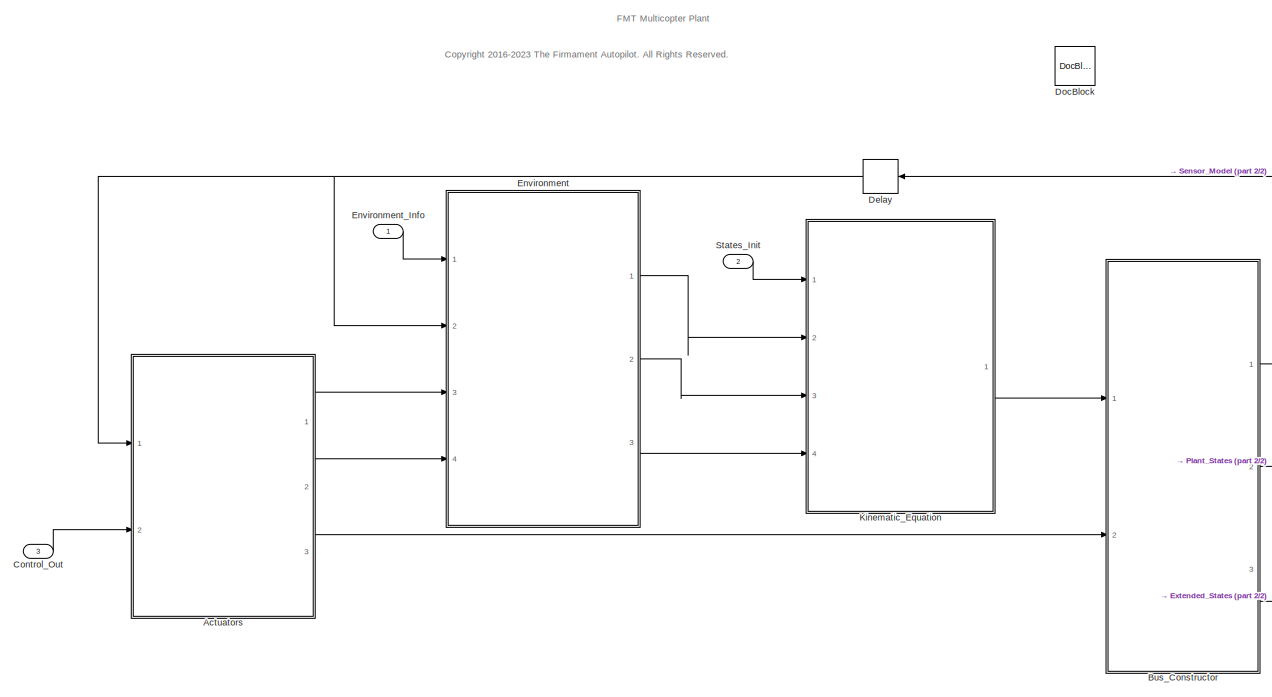
[diagram: root canvas - part 1/2, center side, full height]
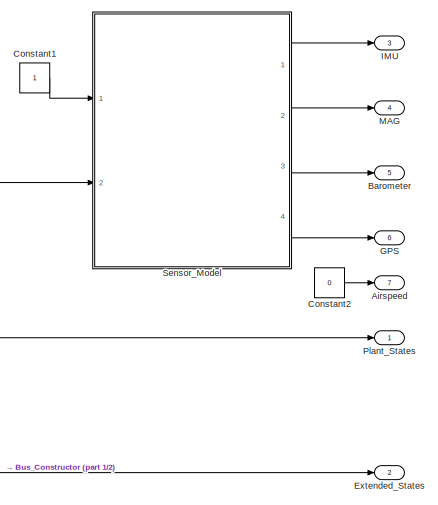
[diagram: root canvas - part 2/2, middle right region]
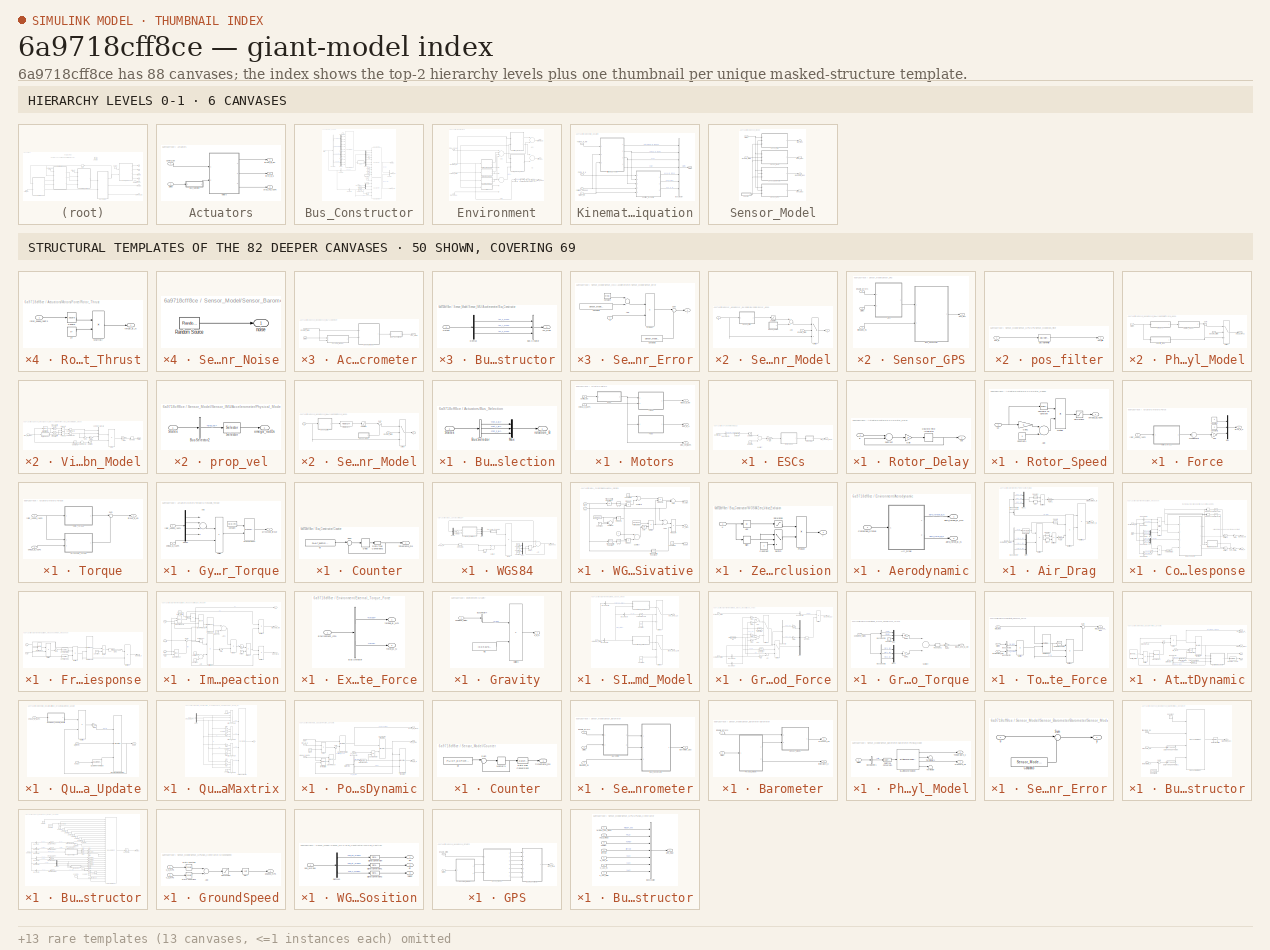
[diagram: thumbnail index - top-2 hierarchy levels (6 canvases) + 50 structural-template representatives of the remaining 82 canvases]
MODEL slx_6a9718cff8ce
KIND model
CONFIG AbsTol = auto
CONFIG EnableMultiTasking = off
CONFIG FixedStep = 0.002
CONFIG MaxStep = auto
CONFIG MinStep = auto
CONFIG RelTol = 1e-3
CONFIG SampleTimeConstraint = Unconstrained
CONFIG Solver = FixedStepDiscrete
CONFIG SolverName = FixedStepDiscrete
CONFIG StartTime = 0.0
CONFIG StopTime = 10.0
BLOCK [SubSystem] Actuators
  Ports = [2, 3]
  RequestExecContextInheritance = off
  TreatAsAtomicUnit = on
BLOCK [SubSystem] Actuators/Bus_Selection
  Ports = [1, 1]
  RequestExecContextInheritance = off
BLOCK [BusSelector] Actuators/Bus_Selection/Bus Selector
  OutputAsBus = off
  OutputSignals = Plant_States.rot_x_B,Plant_States.rot_y_B,Plant_States.rot_z_B
  Ports = [1, 3]
BLOCK [Mux] Actuators/Bus_Selection/Mux
  DisplayOption = bar
  Inputs = 3
  Ports = [3, 1]
BLOCK [Inport] Actuators/Bus_Selection/States
  IconDisplay = Port number
BLOCK [Outport] Actuators/Bus_Selection/rotation_B
  IconDisplay = Port number
BLOCK [Inport] Actuators/Control_Out
  IconDisplay = Port number
  Port = 2
BLOCK [SubSystem] Actuators/Motors
  Ports = [2, 3]
  RequestExecContextInheritance = off
BLOCK [Inport] Actuators/Motors/Control_Out
  IconDisplay = Port number
BLOCK [SubSystem] Actuators/Motors/ESCs
  Ports = [1, 1]
  RequestExecContextInheritance = off
BLOCK [BusSelector] Actuators/Motors/ESCs/Bus Selector
  OutputAsBus = off
  OutputSignals = actuator_cmd
  Ports = [1, 1]
BLOCK [Constant] Actuators/Motors/ESCs/Constant
  OutDataTypeStr = uint16
  Value = 1000
BLOCK [Inport] Actuators/Motors/ESCs/Control_Out
  IconDisplay = Port number
BLOCK [Gain] Actuators/Motors/ESCs/Gain
  Gain = 0.001
  OutDataTypeStr = single
  ParamDataTypeStr = Inherit: Inherit via internal rule
  SaturateOnIntegerOverflow = off
BLOCK [SubSystem] Actuators/Motors/ESCs/Rotor_Delay
  Ports = [1, 1]
  RequestExecContextInheritance = off
BLOCK [DiscreteIntegrator] Actuators/Motors/ESCs/Rotor_Delay/Discrete-Time Integrator
  ICPrevOutput = DiscIntNeverNeededParam
  ICPrevScaledInput = DiscIntNeverNeededParam
  InitialConditionSetting = Auto
  Ports = [1, 1]
  SampleTime = -1
  gainval = K
BLOCK [Gain] Actuators/Motors/ESCs/Rotor_Delay/Gain
  Gain = 1/T
  OutDataTypeStr = Inherit: Inherit via internal rule
  ParamDataTypeStr = Inherit: Inherit via internal rule
  SaturateOnIntegerOverflow = off
BLOCK [Sum] Actuators/Motors/ESCs/Rotor_Delay/Subtract
  InputSameDT = off
  Inputs = +-
  OutDataTypeStr = Inherit: Inherit via internal rule
  Ports = [2, 1]
  SaturateOnIntegerOverflow = off
BLOCK [Inport] Actuators/Motors/ESCs/Rotor_Delay/in
  IconDisplay = Port number
BLOCK [Outport] Actuators/Motors/ESCs/Rotor_Delay/out
  IconDisplay = Port number
BLOCK [SubSystem] Actuators/Motors/ESCs/Rotor_Speed
  Ports = [1, 1]
  RequestExecContextInheritance = off
BLOCK [Sum] Actuators/Motors/ESCs/Rotor_Speed/Add
  AccumDataTypeStr = Inherit: Same as first input
  InputSameDT = off
  OutDataTypeStr = Inherit: Inherit via internal rule
  Ports = [2, 1]
  SaturateOnIntegerOverflow = off
BLOCK [Reference] Actuators/Motors/ESCs/Rotor_Speed/Compare To Constant  REF=simulink/Logic and Bit
Operations/Compare
To Constant
  Ports = [1, 1]
  SourceBlock = simulink/Logic and Bit\nOperations/Compare\nTo Constant
  SourceProductBaseCode = SL
  SourceProductName = Simulink
  SourceType = Compare To Constant
BLOCK [Constant] Actuators/Motors/ESCs/Rotor_Speed/Constant1
  OutDataTypeStr = single
  Value = p
BLOCK [Gain] Actuators/Motors/ESCs/Rotor_Speed/Gain1
  Gain = k
  ParamDataTypeStr = Inherit: Inherit via internal rule
  SaturateOnIntegerOverflow = off
BLOCK [Product] Actuators/Motors/ESCs/Rotor_Speed/Multiply
  InputSameDT = off
  OutDataTypeStr = Inherit: Inherit via internal rule
  Ports = [2, 1]
  RndMeth = Floor
  SaturateOnIntegerOverflow = off
BLOCK [Saturate] Actuators/Motors/ESCs/Rotor_Speed/Saturation1
  InputPortMap = u0
  LowerLimit = 0
  Ports = [1, 1]
  UpperLimit = 9999999
BLOCK [Outport] Actuators/Motors/ESCs/Rotor_Speed/omega_B_radPs
  IconDisplay = Port number
BLOCK [Inport] Actuators/Motors/ESCs/Rotor_Speed/u0
  IconDisplay = Port number
BLOCK [Saturate] Actuators/Motors/ESCs/Saturation
  InputPortMap = u0
  LowerLimit = 1000
  Ports = [1, 1]
  UpperLimit = 2000
BLOCK [Selector] Actuators/Motors/ESCs/Selector
  IndexOptions = Index vector (dialog)
  Indices = [1:4]
  InputPortWidth = 16
  OutputSizes = 1
  Ports = [1, 1]
BLOCK [Sum] Actuators/Motors/ESCs/Subtract
  AccumDataTypeStr = Inherit: Same as first input
  InputSameDT = off
  Inputs = +-
  OutDataTypeStr = Inherit: Same as accumulator
  Ports = [2, 1]
  SaturateOnIntegerOverflow = off
BLOCK [Outport] Actuators/Motors/ESCs/rotor_speed_radPs
  IconDisplay = Port number
BLOCK [SubSystem] Actuators/Motors/Force
  Ports = [1, 1]
  RequestExecContextInheritance = off
BLOCK [Constant] Actuators/Motors/Force/Constant
  OutDataTypeStr = single
  Value = 0
BLOCK [Constant] Actuators/Motors/Force/Constant1
  OutDataTypeStr = single
  Value = 0
BLOCK [Gain] Actuators/Motors/Force/Gain
  Gain = -1
  ParamDataTypeStr = Inherit: Inherit via internal rule
  SaturateOnIntegerOverflow = off
BLOCK [Mux] Actuators/Motors/Force/Mux
  DisplayOption = bar
  Inputs = 3
  Ports = [3, 1]
BLOCK [SubSystem] Actuators/Motors/Force/Rotor_Thrust
  Ports = [1, 1]
  RequestExecContextInheritance = off
BLOCK [Product] Actuators/Motors/Force/Rotor_Thrust/Multiply
  InputSameDT = off
  Ports = [2, 1]
  RndMeth = Floor
  SaturateOnIntegerOverflow = off
BLOCK [Math] Actuators/Motors/Force/Rotor_Thrust/Square
  Operator = square
  Ports = [1, 1]
BLOCK [Constant] Actuators/Motors/Force/Rotor_Thrust/cT
  Value = cT
BLOCK [Inport] Actuators/Motors/Force/Rotor_Thrust/rotor_speed_radPs
  IconDisplay = Port number
BLOCK [Outport] Actuators/Motors/Force/Rotor_Thrust/thrust_B_N
  IconDisplay = Port number
BLOCK [Sum] Actuators/Motors/Force/Sum of Elements
  AccumDataTypeStr = Inherit: Same as first input
  InputSameDT = off
  Inputs = +
  OutDataTypeStr = Inherit: Inherit via internal rule
  Ports = [1, 1]
  SaturateOnIntegerOverflow = off
BLOCK [Outport] Actuators/Motors/Force/force_B_N
  IconDisplay = Port number
BLOCK [Inport] Actuators/Motors/Force/rotor_speed_radPs
  IconDisplay = Port number
BLOCK [SubSystem] Actuators/Motors/Torque
  Ports = [2, 1]
  RequestExecContextInheritance = off
BLOCK [SubSystem] Actuators/Motors/Torque/Gyroscopic_Torque
  Ports = [2, 1]
  RequestExecContextInheritance = off
BLOCK [Sum] Actuators/Motors/Torque/Gyroscopic_Torque/Add
  InputSameDT = off
  Inputs = --++
  OutDataTypeStr = Inherit: Inherit via internal rule
  Ports = [4, 1]
  SaturateOnIntegerOverflow = off
BLOCK [Constant] Actuators/Motors/Torque/Gyroscopic_Torque/Constant
  OutDataTypeStr = single
  Value = [0;0;Im]
BLOCK [Reference] Actuators/Motors/Torque/Gyroscopic_Torque/Cross Product  REF=FMT_Model_Lib/Math/Cross Product
  Ports = [2, 1]
  SourceBlock = FMT_Model_Lib/Math/Cross Product
  SourceProductName = FMT Toolbox
  SourceType = Cross Product
BLOCK [Demux] Actuators/Motors/Torque/Gyroscopic_Torque/Demux
  DisplayOption = bar
  Ports = [1, 4]
BLOCK [Product] Actuators/Motors/Torque/Gyroscopic_Torque/Multiply
  InputSameDT = off
  OutDataTypeStr = Inherit: Inherit via internal rule
  Ports = [2, 1]
  RndMeth = Floor
  SaturateOnIntegerOverflow = off
BLOCK [Outport] Actuators/Motors/Torque/Gyroscopic_Torque/gyroscopic_torque
  IconDisplay = Port number
BLOCK [Inport] Actuators/Motors/Torque/Gyroscopic_Torque/omega_B_radPs
  IconDisplay = Port number
  Port = 2
BLOCK [Inport] Actuators/Motors/Torque/Gyroscopic_Torque/rotor_speed_radPs
  IconDisplay = Port number
BLOCK [SubSystem] Actuators/Motors/Torque/Rotor_Torque
  Ports = [1, 1]
  RequestExecContextInheritance = off
BLOCK [Product] Actuators/Motors/Torque/Rotor_Torque/Multiply
  InputSameDT = off
  Multiplication = Matrix(*)
  OutDataTypeStr = Inherit: Inherit via internal rule
  Ports = [2, 1]
  RndMeth = Floor
  SaturateOnIntegerOverflow = off
BLOCK [Math] Actuators/Motors/Torque/Rotor_Torque/Square
  Operator = square
  Ports = [1, 1]
BLOCK [Constant] Actuators/Motors/Torque/Rotor_Torque/X_Frame_CM
  OutDataTypeStr = single
  Value = [-L*cT,L*cT,L*cT,-L*cT;L*cT,-L*cT,L*cT,-L*cT;cQ,cQ,-cQ,-cQ]
BLOCK [Inport] Actuators/Motors/Torque/Rotor_Torque/rotor_speed_radPs
  IconDisplay = Port number
BLOCK [Outport] Actuators/Motors/Torque/Rotor_Torque/rotor_torque
  IconDisplay = Port number
BLOCK [Sum] Actuators/Motors/Torque/Sum
  IconShape = round
  InputSameDT = off
  Inputs = |++
  OutDataTypeStr = Inherit: Inherit via internal rule
  Ports = [2, 1]
  SaturateOnIntegerOverflow = off
BLOCK [Inport] Actuators/Motors/Torque/omega_B_radPs
  IconDisplay = Port number
  Port = 2
BLOCK [Inport] Actuators/Motors/Torque/rotor_speed_radPs
  IconDisplay = Port number
BLOCK [Outport] Actuators/Motors/Torque/torque_B_Nm
  IconDisplay = Port number
BLOCK [Outport] Actuators/Motors/force_B_N
  IconDisplay = Port number
  Port = 2
BLOCK [Inport] Actuators/Motors/omega_B_radPs
  IconDisplay = Port number
  Port = 2
BLOCK [Outport] Actuators/Motors/prop_vel_radPs
  IconDisplay = Port number
  Port = 3
BLOCK [Outport] Actuators/Motors/torque_B_Nm
  IconDisplay = Port number
BLOCK [Inport] Actuators/States
  IconDisplay = Port number
BLOCK [Outport] Actuators/force_B_N
  IconDisplay = Port number
  Port = 2
BLOCK [Outport] Actuators/prop_vel_radPs
  IconDisplay = Port number
  Port = 3
BLOCK [Outport] Actuators/torque_B_Nm
  IconDisplay = Port number
BLOCK [Outport] Airspeed
  IconDisplay = Port number
  OutDataTypeStr = Bus: AirSpeed_Bus
  Port = 7
BLOCK [Outport] Barometer
  IconDisplay = Port number
  OutDataTypeStr = Bus: Barometer_Bus
  Port = 5
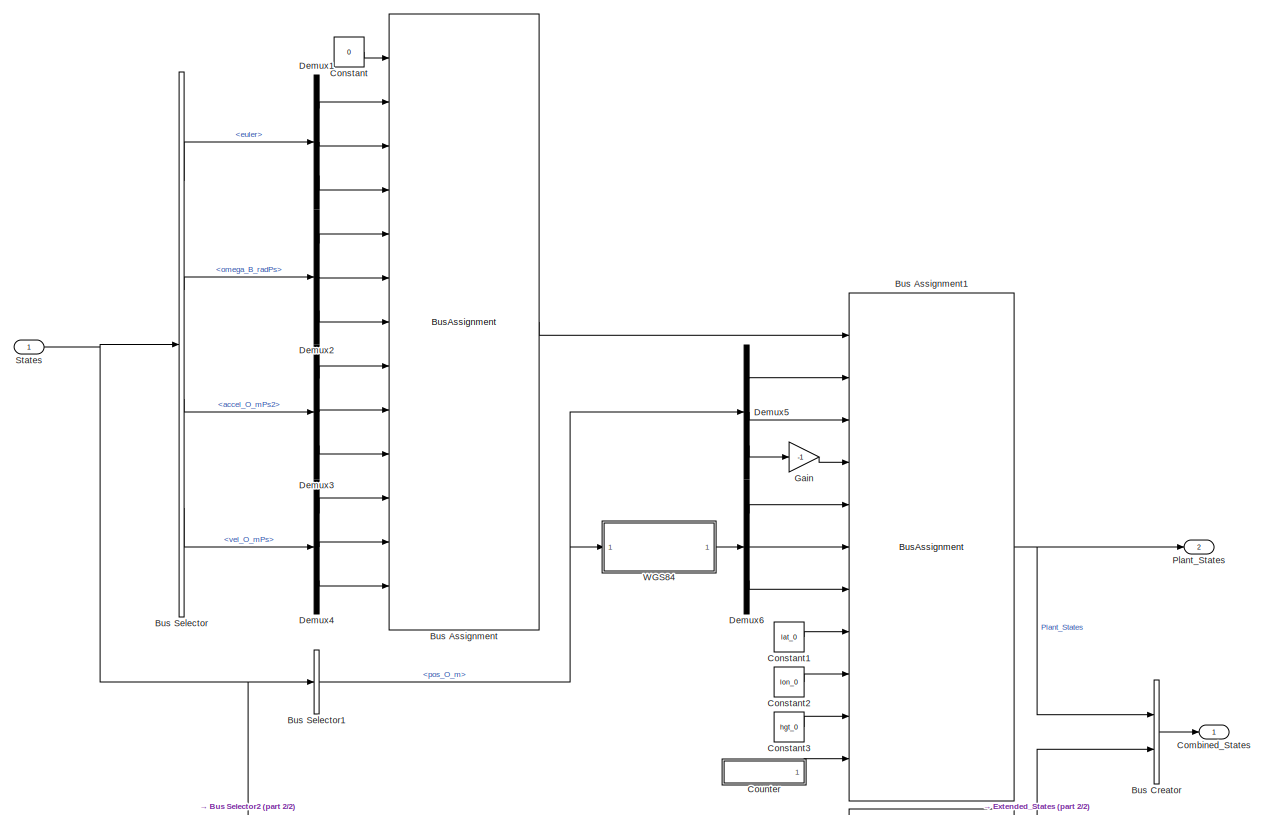
[diagram: Bus_Constructor - part 1/2, full width, middle band]
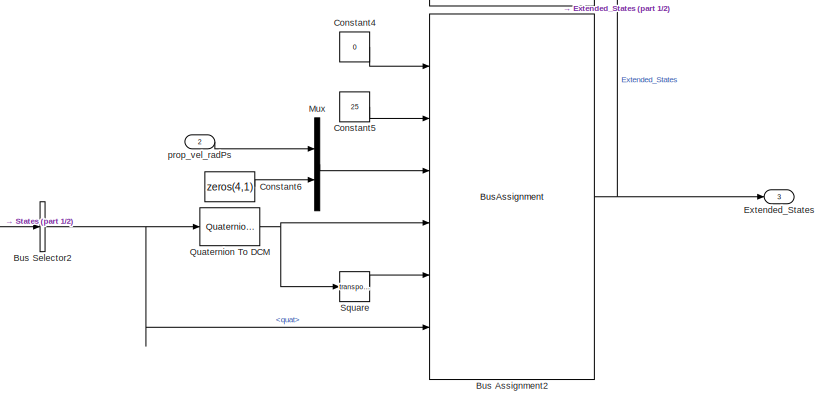
[diagram: Bus_Constructor - part 2/2, bottom center region]
BLOCK [SubSystem] Bus_Constructor
  Ports = [2, 3]
  RequestExecContextInheritance = off
  TreatAsAtomicUnit = on
BLOCK [BusAssignment] Bus_Constructor/Bus Assignment
  AssignedSignals = phi,theta,psi,rot_x_B,rot_y_B,rot_z_B,acc_x_O,acc_y_O,acc_z_O,vel_x_O,vel_y_O,vel_z_O
  Ports = [13, 1]
BLOCK [BusAssignment] Bus_Constructor/Bus Assignment1
  AssignedSignals = x_R,y_R,h_R,lat,lon,alt,lat_0,lon_0,alt_0,timestamp
  Ports = [11, 1]
BLOCK [BusAssignment] Bus_Constructor/Bus Assignment2
  AssignedSignals = temprature,prop_vel,M_BO,M_OB,quat
  Ports = [6, 1]
BLOCK [BusCreator] Bus_Constructor/Bus Creator
  DisplayOption = bar
  InheritFromInputs = on
  Inputs = 2
  Ports = [2, 1]
BLOCK [BusSelector] Bus_Constructor/Bus Selector
  OutputAsBus = off
  OutputSignals = euler,omega_B_radPs,accel_O_mPs2,vel_O_mPs
  Ports = [1, 4]
BLOCK [BusSelector] Bus_Constructor/Bus Selector1
  OutputAsBus = off
  OutputSignals = pos_O_m
  Ports = [1, 1]
BLOCK [BusSelector] Bus_Constructor/Bus Selector2
  OutputAsBus = off
  OutputSignals = quat
  Ports = [1, 1]
BLOCK [Outport] Bus_Constructor/Combined_States
  IconDisplay = Port number
BLOCK [Constant] Bus_Constructor/Constant
  OutDataTypeStr = Bus: Plant_States_Bus
  Value = 0
BLOCK [Constant] Bus_Constructor/Constant1
  Value = lat_0
BLOCK [Constant] Bus_Constructor/Constant2
  Value = lon_0
BLOCK [Constant] Bus_Constructor/Constant3
  Value = hgt_0
BLOCK [Constant] Bus_Constructor/Constant4
  OutDataTypeStr = Bus: Extended_States_Bus
  Value = 0
BLOCK [Constant] Bus_Constructor/Constant5
  OutDataTypeStr = Inherit: Inherit via back propagation
  Value = 25
BLOCK [Constant] Bus_Constructor/Constant6
  OutDataTypeStr = single
  Value = zeros(4,1)
BLOCK [SubSystem] Bus_Constructor/Counter
  Ports = [0, 1]
  RequestExecContextInheritance = off
BLOCK [DataTypeConversion] Bus_Constructor/Counter/Data Type Conversion2
  OutDataTypeStr = uint32
  RndMeth = Floor
  SaturateOnIntegerOverflow = off
BLOCK [Delay] Bus_Constructor/Counter/Delay
  DelayLength = 1
  InitialCondition = 0
  InputPortMap = u0
  Ports = [1, 1]
BLOCK [Sum] Bus_Constructor/Counter/Sum
  IconShape = round
  InputSameDT = off
  Inputs = |++
  OutDataTypeStr = Inherit: Inherit via internal rule
  Ports = [2, 1]
  SaturateOnIntegerOverflow = off
BLOCK [Constant] Bus_Constructor/Counter/dt
  OutDataTypeStr = uint32
  Value = PLANT_EXPORT.period
BLOCK [Outport] Bus_Constructor/Counter/timestamp_ms
  IconDisplay = Port number
BLOCK [Demux] Bus_Constructor/Demux1
  DisplayOption = bar
  Outputs = 3
  Ports = [1, 3]
BLOCK [Demux] Bus_Constructor/Demux2
  DisplayOption = bar
  Outputs = 3
  Ports = [1, 3]
BLOCK [Demux] Bus_Constructor/Demux3
  DisplayOption = bar
  Outputs = 3
  Ports = [1, 3]
BLOCK [Demux] Bus_Constructor/Demux4
  DisplayOption = bar
  Outputs = 3
  Ports = [1, 3]
BLOCK [Demux] Bus_Constructor/Demux5
  DisplayOption = bar
  Outputs = 3
  Ports = [1, 3]
BLOCK [Demux] Bus_Constructor/Demux6
  DisplayOption = bar
  Outputs = 3
  Ports = [1, 3]
BLOCK [Outport] Bus_Constructor/Extended_States
  IconDisplay = Port number
  Port = 3
BLOCK [Gain] Bus_Constructor/Gain
  Gain = -1
  ParamDataTypeStr = Inherit: Inherit via internal rule
  SaturateOnIntegerOverflow = off
BLOCK [Mux] Bus_Constructor/Mux
  DisplayOption = bar
  Inputs = 2
  Ports = [2, 1]
BLOCK [Outport] Bus_Constructor/Plant_States
  IconDisplay = Port number
  Port = 2
BLOCK [Reference] Bus_Constructor/Quaternion To DCM  REF=FMT_Model_Lib/Quaternion/Quaternion To DCM
  Ports = [1, 1]
  SourceBlock = FMT_Model_Lib/Quaternion/Quaternion To DCM
  SourceProductName = FMT Toolbox
  SourceType = Quaternion To Direction Cosine Matrix
BLOCK [Math] Bus_Constructor/Square
  Operator = transpose
  Ports = [1, 1]
BLOCK [Inport] Bus_Constructor/States
  IconDisplay = Port number
BLOCK [SubSystem] Bus_Constructor/WGS84
  Ports = [1, 1]
  RequestExecContextInheritance = off
BLOCK [Sum] Bus_Constructor/WGS84/Add
  InputSameDT = off
  OutDataTypeStr = Inherit: Inherit via internal rule
  Ports = [2, 1]
  SaturateOnIntegerOverflow = off
BLOCK [Constant] Bus_Constructor/WGS84/Constant1
  Value = lat_0
BLOCK [Constant] Bus_Constructor/WGS84/Constant2
  Value = lon_0
BLOCK [Constant] Bus_Constructor/WGS84/Constant3
  Value = hgt_0
BLOCK [DataTypeConversion] Bus_Constructor/WGS84/Data Type Conversion
  OutDataTypeStr = double
  RndMeth = Floor
  SaturateOnIntegerOverflow = off
BLOCK [Delay] Bus_Constructor/WGS84/Delay
  DelayLength = 1
  InputPortMap = u0
  Ports = [1, 1]
BLOCK [Delay] Bus_Constructor/WGS84/Delay1
  DelayLength = 1
  InitialCondition = [lat_0;lon_0;hgt_0]
  InitialConditionSource = Input port
  InputPortMap = u0,p4
  Ports = [2, 1]
BLOCK [Demux] Bus_Constructor/WGS84/Demux
  DisplayOption = bar
  Outputs = 3
  Ports = [1, 3]
BLOCK [Product] Bus_Constructor/WGS84/Divide
  InputSameDT = off
  Inputs = /*
  OutDataTypeStr = Inherit: Inherit via internal rule
  Ports = [2, 1]
  RndMeth = Floor
  SaturateOnIntegerOverflow = off
BLOCK [Mux] Bus_Constructor/WGS84/Mux
  DisplayOption = bar
  Inputs = 3
  Ports = [3, 1]
BLOCK [Mux] Bus_Constructor/WGS84/Mux1
  DisplayOption = bar
  Inputs = 3
  Ports = [3, 1]
BLOCK [Sum] Bus_Constructor/WGS84/Subtract
  InputSameDT = off
  Inputs = +-
  OutDataTypeStr = Inherit: Inherit via internal rule
  Ports = [2, 1]
  SaturateOnIntegerOverflow = off
BLOCK [Terminator] Bus_Constructor/WGS84/Terminator
BLOCK [SubSystem] Bus_Constructor/WGS84/WGS84_Derivative
  Ports = [2, 3]
  RequestExecContextInheritance = off
BLOCK [Sum] Bus_Constructor/WGS84/WGS84_Derivative/Add
  InputSameDT = off
  OutDataTypeStr = Inherit: Inherit via internal rule
  Ports = [2, 1]
  SaturateOnIntegerOverflow = off
BLOCK [Sum] Bus_Constructor/WGS84/WGS84_Derivative/Add1
  InputSameDT = off
  OutDataTypeStr = Inherit: Inherit via internal rule
  Ports = [2, 1]
  SaturateOnIntegerOverflow = off
BLOCK [Product] Bus_Constructor/WGS84/WGS84_Derivative/Divide
  InputSameDT = off
  Inputs = */
  OutDataTypeStr = Inherit: Inherit via internal rule
  Ports = [2, 1]
  RndMeth = Floor
  SaturateOnIntegerOverflow = off
BLOCK [Product] Bus_Constructor/WGS84/WGS84_Derivative/Product
  InputSameDT = off
  OutDataTypeStr = Inherit: Inherit via internal rule
  Ports = [2, 1]
  SaturateOnIntegerOverflow = off
BLOCK [Product] Bus_Constructor/WGS84/WGS84_Derivative/Product1
  InputSameDT = off
  OutDataTypeStr = Inherit: Inherit via internal rule
  Ports = [2, 1]
  SaturateOnIntegerOverflow = off
BLOCK [Product] Bus_Constructor/WGS84/WGS84_Derivative/Product2
  InputSameDT = off
  OutDataTypeStr = Inherit: Inherit via internal rule
  Ports = [2, 1]
  SaturateOnIntegerOverflow = off
BLOCK [Product] Bus_Constructor/WGS84/WGS84_Derivative/Product3
  InputSameDT = off
  OutDataTypeStr = Inherit: Inherit via internal rule
  Ports = [2, 1]
  SaturateOnIntegerOverflow = off
BLOCK [Product] Bus_Constructor/WGS84/WGS84_Derivative/Product4
  InputSameDT = off
  OutDataTypeStr = Inherit: Inherit via internal rule
  Ports = [2, 1]
  SaturateOnIntegerOverflow = off
BLOCK [Sum] Bus_Constructor/WGS84/WGS84_Derivative/Subtract
  InputSameDT = off
  Inputs = +-
  OutDataTypeStr = Inherit: Inherit via internal rule
  Ports = [2, 1]
  SaturateOnIntegerOverflow = off
BLOCK [Sum] Bus_Constructor/WGS84/WGS84_Derivative/Subtract1
  InputSameDT = off
  Inputs = -+
  OutDataTypeStr = Inherit: Inherit via internal rule
  Ports = [2, 1]
  SaturateOnIntegerOverflow = off
BLOCK [Sum] Bus_Constructor/WGS84/WGS84_Derivative/Subtract2
  InputSameDT = off
  Inputs = +-
  OutDataTypeStr = Inherit: Inherit via internal rule
  Ports = [2, 1]
  SaturateOnIntegerOverflow = off
BLOCK [Trigonometry] Bus_Constructor/WGS84/WGS84_Derivative/Trigonometric Function
  Ports = [1, 1]
BLOCK [Trigonometry] Bus_Constructor/WGS84/WGS84_Derivative/Trigonometric Function1
  Operator = cos
  Ports = [1, 1]
BLOCK [Trigonometry] Bus_Constructor/WGS84/WGS84_Derivative/Trigonometric Function2
  Operator = cos
  Ports = [1, 1]
BLOCK [Constant] Bus_Constructor/WGS84/WGS84_Derivative/b
  Value = 1/298.257
BLOCK [Constant] Bus_Constructor/WGS84/WGS84_Derivative/c
BLOCK [Constant] Bus_Constructor/WGS84/WGS84_Derivative/constant
  Value = 2
BLOCK [Constant] Bus_Constructor/WGS84/WGS84_Derivative/constant1
  Value = -1
BLOCK [Constant] Bus_Constructor/WGS84/WGS84_Derivative/constant2
BLOCK [Outport] Bus_Constructor/WGS84/WGS84_Derivative/dx_dlat
  IconDisplay = Port number
BLOCK [Outport] Bus_Constructor/WGS84/WGS84_Derivative/dy_dlon
  IconDisplay = Port number
  Port = 2
BLOCK [Outport] Bus_Constructor/WGS84/WGS84_Derivative/dz_dh
  IconDisplay = Port number
  InitialOutput = 1
  Port = 3
BLOCK [Constant] Bus_Constructor/WGS84/WGS84_Derivative/earth_radius
  Value = 6378137
BLOCK [Inport] Bus_Constructor/WGS84/WGS84_Derivative/h_0
  IconDisplay = Port number
  Port = 2
BLOCK [Inport] Bus_Constructor/WGS84/WGS84_Derivative/lat_0
  IconDisplay = Port number
BLOCK [Math] Bus_Constructor/WGS84/WGS84_Derivative/sqrt
  Operator = sqrt
  Ports = [1, 1]
BLOCK [Math] Bus_Constructor/WGS84/WGS84_Derivative/u^1
  Operator = square
  Ports = [1, 1]
BLOCK [Math] Bus_Constructor/WGS84/WGS84_Derivative/u^2
  Operator = square
  Ports = [1, 1]
BLOCK [Outport] Bus_Constructor/WGS84/WGS84_Pos
  IconDisplay = Port number
BLOCK [SubSystem] Bus_Constructor/WGS84/Zero_Value_Exclusion
  Ports = [1, 1]
  RequestExecContextInheritance = off
BLOCK [Abs] Bus_Constructor/WGS84/Zero_Value_Exclusion/Abs
  SaturateOnIntegerOverflow = off
BLOCK [Constant] Bus_Constructor/WGS84/Zero_Value_Exclusion/Constant
BLOCK [Product] Bus_Constructor/WGS84/Zero_Value_Exclusion/Product
  InputSameDT = off
  OutDataTypeStr = Inherit: Inherit via internal rule
  Ports = [2, 1]
  SaturateOnIntegerOverflow = off
BLOCK [Saturate] Bus_Constructor/WGS84/Zero_Value_Exclusion/Saturation
  InputPortMap = u0
  LinearizeAsGain = off
  LowerLimit = 1e-6
  Ports = [1, 1]
  UpperLimit = 10e7
BLOCK [Signum] Bus_Constructor/WGS84/Zero_Value_Exclusion/Sign
BLOCK [Switch] Bus_Constructor/WGS84/Zero_Value_Exclusion/Switch
  Criteria = u2 ~= 0
  InputSameDT = off
  SaturateOnIntegerOverflow = off
BLOCK [Inport] Bus_Constructor/WGS84/Zero_Value_Exclusion/u
  IconDisplay = Port number
BLOCK [Outport] Bus_Constructor/WGS84/Zero_Value_Exclusion/y
  IconDisplay = Port number
BLOCK [Inport] Bus_Constructor/WGS84/pos_O_m
  IconDisplay = Port number
BLOCK [Inport] Bus_Constructor/prop_vel_radPs
  IconDisplay = Port number
  Port = 2
BLOCK [Constant] Constant1
  OutDataTypeStr = Inherit: Inherit via back propagation
BLOCK [Constant] Constant2
  OutDataTypeStr = Bus: AirSpeed_Bus
  Value = 0
BLOCK [Inport] Control_Out
  IconDisplay = Port number
  Interpolate = off
  OutDataTypeStr = Bus: Control_Out_Bus
  Port = 3
BLOCK [Delay] Delay
  DelayLength = 1
  InputPortMap = u0
  Ports = [1, 1]
BLOCK [Reference] DocBlock  REF=simulink/Model-Wide
Utilities/DocBlock
  Ports = []
  SourceBlock = simulink/Model-Wide\nUtilities/DocBlock
  SourceProductBaseCode = SL
  SourceProductName = Simulink
  SourceType = DocBlock
  UserDataPersistent = on
BLOCK [SubSystem] Environment
  Ports = [4, 3]
  RequestExecContextInheritance = off
  TreatAsAtomicUnit = on
BLOCK [Sum] Environment/Add
  InputSameDT = off
  OutDataTypeStr = Inherit: Inherit via internal rule
  Ports = [2, 1]
  SaturateOnIntegerOverflow = off
BLOCK [Sum] Environment/Add1
  InputSameDT = off
  OutDataTypeStr = Inherit: Inherit via internal rule
  Ports = [2, 1]
  SaturateOnIntegerOverflow = off
BLOCK [Sum] Environment/Add2
  InputSameDT = off
  Inputs = +++++
  OutDataTypeStr = Inherit: Inherit via internal rule
  Ports = [5, 1]
  SaturateOnIntegerOverflow = off
BLOCK [Sum] Environment/Add3
  InputSameDT = off
  Inputs = ++++
  OutDataTypeStr = Inherit: Inherit via internal rule
  Ports = [4, 1]
  SaturateOnIntegerOverflow = off
BLOCK [SubSystem] Environment/Aerodynamic
  Ports = [1, 2]
  RequestExecContextInheritance = off
BLOCK [SubSystem] Environment/Aerodynamic/Air_Drag
  Ports = [1, 2]
  RequestExecContextInheritance = off
BLOCK [BusSelector] Environment/Aerodynamic/Air_Drag/Bus Selector
  OutputAsBus = off
  OutputSignals = Plant_States.psi,Plant_States.vel_x_O,Plant_States.vel_y_O,Plant_States.vel_z_O
  Ports = [1, 4]
BLOCK [BusSelector] Environment/Aerodynamic/Air_Drag/Bus Selector1
  OutputAsBus = off
  OutputSignals = Extended_States.M_BO
  Ports = [1, 1]
BLOCK [BusSelector] Environment/Aerodynamic/Air_Drag/Bus Selector2
  OutputAsBus = off
  OutputSignals = Plant_States.rot_x_B,Plant_States.rot_y_B,Plant_States.rot_z_B
  Ports = [1, 3]
BLOCK [Inport] Environment/Aerodynamic/Air_Drag/Combined_States
  IconDisplay = Port number
BLOCK [Gain] Environment/Aerodynamic/Air_Drag/Gain
  Gain = -0.02
  OutDataTypeStr = Inherit: Inherit via internal rule
  ParamDataTypeStr = Inherit: Inherit via internal rule
  SaturateOnIntegerOverflow = off
BLOCK [Gain] Environment/Aerodynamic/Air_Drag/Gain1
  Gain = -0.005
  OutDataTypeStr = Inherit: Inherit via internal rule
  ParamDataTypeStr = Inherit: Inherit via internal rule
  SaturateOnIntegerOverflow = off
BLOCK [Product] Environment/Aerodynamic/Air_Drag/Multiply
  InputSameDT = off
  Multiplication = Matrix(*)
  OutDataTypeStr = Inherit: Inherit via internal rule
  Ports = [2, 1]
  RndMeth = Floor
  SaturateOnIntegerOverflow = off
BLOCK [Product] Environment/Aerodynamic/Air_Drag/Multiply1
  InputSameDT = off
  Multiplication = Matrix(*)
  OutDataTypeStr = Inherit: Inherit via internal rule
  Ports = [2, 1]
  RndMeth = Floor
  SaturateOnIntegerOverflow = off
BLOCK [Product] Environment/Aerodynamic/Air_Drag/Multiply2
  InputSameDT = off
  Multiplication = Matrix(*)
  OutDataTypeStr = Inherit: Inherit via internal rule
  Ports = [2, 1]
  RndMeth = Floor
  SaturateOnIntegerOverflow = off
BLOCK [Product] Environment/Aerodynamic/Air_Drag/Multiply3
  InputSameDT = off
  OutDataTypeStr = Inherit: Inherit via internal rule
  Ports = [2, 1]
  RndMeth = Floor
  SaturateOnIntegerOverflow = off
BLOCK [Product] Environment/Aerodynamic/Air_Drag/Multiply5
  InputSameDT = off
  OutDataTypeStr = Inherit: Inherit via internal rule
  Ports = [2, 1]
  RndMeth = Floor
  SaturateOnIntegerOverflow = off
BLOCK [Mux] Environment/Aerodynamic/Air_Drag/Mux
  DisplayOption = bar
  Inputs = 3
  Ports = [3, 1]
BLOCK [Mux] Environment/Aerodynamic/Air_Drag/Mux1
  DisplayOption = bar
  Inputs = 3
  Ports = [3, 1]
BLOCK [Reference] Environment/Aerodynamic/Air_Drag/Psi To DCM  REF=FMT_Model_Lib/Transformation/Psi To DCM
  Ports = [1, 1]
  SourceBlock = FMT_Model_Lib/Transformation/Psi To DCM
  SourceProductName = FMT Toolbox
  SourceType = Rotation Matrix X-Axis
BLOCK [Signum] Environment/Aerodynamic/Air_Drag/Sign
BLOCK [Signum] Environment/Aerodynamic/Air_Drag/Sign1
BLOCK [Math] Environment/Aerodynamic/Air_Drag/Square
  Operator = transpose
  Ports = [1, 1]
BLOCK [Math] Environment/Aerodynamic/Air_Drag/Square1
  Operator = square
  Ports = [1, 1]
BLOCK [Math] Environment/Aerodynamic/Air_Drag/Square2
  Operator = square
  Ports = [1, 1]
BLOCK [Outport] Environment/Aerodynamic/Air_Drag/airdrag_force_B
  IconDisplay = Port number
  Port = 2
BLOCK [Outport] Environment/Aerodynamic/Air_Drag/airdrag_torque_B
  IconDisplay = Port number
BLOCK [Inport] Environment/Aerodynamic/Combined_States
  IconDisplay = Port number
BLOCK [Outport] Environment/Aerodynamic/aero_force_B_N
  IconDisplay = Port number
  Port = 2
BLOCK [Outport] Environment/Aerodynamic/aero_torque_B_Nm
  IconDisplay = Port number
BLOCK [BusSelector] Environment/Bus Selector
  OutputAsBus = off
  OutputSignals = hit_normal
  Ports = [1, 1]
BLOCK [SubSystem] Environment/Collision_Response
  Ports = [2, 2]
  RequestExecContextInheritance = off
BLOCK [BusSelector] Environment/Collision_Response/Bus Selector
  OutputAsBus = off
  OutputSignals = hit_normal
  Ports = [1, 1]
BLOCK [BusSelector] Environment/Collision_Response/Bus Selector1
  OutputAsBus = off
  OutputSignals = Extended_States.M_BO
  Ports = [1, 1]
BLOCK [BusSelector] Environment/Collision_Response/Bus Selector2
  OutputAsBus = off
  OutputSignals = Plant_States.vel_x_O,Plant_States.vel_y_O,Plant_States.vel_z_O
  Ports = [1, 3]
BLOCK [BusSelector] Environment/Collision_Response/Bus Selector3
  OutputAsBus = off
  OutputSignals = hit_point,hit_location
  Ports = [1, 2]
BLOCK [BusSelector] Environment/Collision_Response/Bus Selector5
  OutputAsBus = off
  OutputSignals = Plant_States.rot_x_B,Plant_States.rot_y_B,Plant_States.rot_z_B
  Ports = [1, 3]
BLOCK [Reference] Environment/Collision_Response/Compare To Zero  REF=simulink/Logic and Bit
Operations/Compare
To Zero
  Ports = [1, 1]
  SourceBlock = simulink/Logic and Bit\nOperations/Compare\nTo Zero
  SourceProductBaseCode = SL
  SourceProductName = Simulink
  SourceType = Compare To Zero
BLOCK [Reference] Environment/Collision_Response/Compare To Zero1  REF=simulink/Logic and Bit
Operations/Compare
To Zero
  Ports = [1, 1]
  SourceBlock = simulink/Logic and Bit\nOperations/Compare\nTo Zero
  SourceProductBaseCode = SL
  SourceProductName = Simulink
  SourceType = Compare To Zero
BLOCK [DotProduct] Environment/Collision_Response/Dot Product2
  OutDataTypeStr = Inherit: Inherit via internal rule
BLOCK [DotProduct] Environment/Collision_Response/Dot Product3
  OutDataTypeStr = Inherit: Inherit via internal rule
BLOCK [Inport] Environment/Collision_Response/Environment_Info
  IconDisplay = Port number
BLOCK [SubSystem] Environment/Collision_Response/Friction_Response
  Ports = [2, 1]
  RequestExecContextInheritance = off
BLOCK [Constant] Environment/Collision_Response/Friction_Response/Constant
  OutDataTypeStr = single
  Value = 0.01
BLOCK [Product] Environment/Collision_Response/Friction_Response/Divide
  InputSameDT = off
  Inputs = */
  OutDataTypeStr = Inherit: Inherit via internal rule
  Ports = [2, 1]
  RndMeth = Floor
  SaturateOnIntegerOverflow = off
BLOCK [DotProduct] Environment/Collision_Response/Friction_Response/Dot Product
  OutDataTypeStr = Inherit: Inherit via internal rule
BLOCK [DotProduct] Environment/Collision_Response/Friction_Response/Dot Product2
  OutDataTypeStr = Inherit: Inherit via internal rule
BLOCK [Gain] Environment/Collision_Response/Friction_Response/Gain3
  Gain = -plant_model.mass
  OutDataTypeStr = Inherit: Inherit via internal rule
  ParamDataTypeStr = Inherit: Inherit via internal rule
  SaturateOnIntegerOverflow = off
BLOCK [Product] Environment/Collision_Response/Friction_Response/Multiply
  InputSameDT = off
  OutDataTypeStr = Inherit: Inherit via internal rule
  Ports = [2, 1]
  RndMeth = Floor
  SaturateOnIntegerOverflow = off
BLOCK [Product] Environment/Collision_Response/Friction_Response/Multiply3
  InputSameDT = off
  OutDataTypeStr = Inherit: Inherit via internal rule
  Ports = [2, 1]
  RndMeth = Floor
  SaturateOnIntegerOverflow = off
BLOCK [Product] Environment/Collision_Response/Friction_Response/Multiply4
  InputSameDT = off
  OutDataTypeStr = Inherit: Inherit via internal rule
  Ports = [2, 1]
  RndMeth = Floor
  SaturateOnIntegerOverflow = off
BLOCK [Sum] Environment/Collision_Response/Friction_Response/Sum
  IconShape = round
  InputSameDT = off
  Inputs = +-|
  OutDataTypeStr = Inherit: Inherit via internal rule
  Ports = [2, 1]
  SaturateOnIntegerOverflow = off
BLOCK [Reference] Environment/Collision_Response/Friction_Response/Vector Modulus  REF=FMT_Model_Lib/Math/Vector Modulus
  Ports = [1, 1]
  SourceBlock = FMT_Model_Lib/Math/Vector Modulus
  SourceProductName = FMT Toolbox
  SourceType = Euclidean Norm
BLOCK [Reference] Environment/Collision_Response/Friction_Response/Vector Normalize  REF=FMT_Model_Lib/Math/Vector Normalize
  Ports = [1, 1]
  SourceBlock = FMT_Model_Lib/Math/Vector Normalize
  SourceProductName = FMT Toolbox
  SourceType = Vector Normalize
BLOCK [Outport] Environment/Collision_Response/Friction_Response/force_B_N
  IconDisplay = Port number
BLOCK [Inport] Environment/Collision_Response/Friction_Response/n_B
  IconDisplay = Port number
  Port = 2
BLOCK [Inport] Environment/Collision_Response/Friction_Response/vr_B
  IconDisplay = Port number
BLOCK [Gain] Environment/Collision_Response/Gain
  Gain = 0
  OutDataTypeStr = Inherit: Inherit via internal rule
  ParamDataTypeStr = Inherit: Inherit via internal rule
  SaturateOnIntegerOverflow = off
BLOCK [Gain] Environment/Collision_Response/Gain1
  OutDataTypeStr = Inherit: Inherit via internal rule
  ParamDataTypeStr = Inherit: Inherit via internal rule
  SaturateOnIntegerOverflow = off
BLOCK [SubSystem] Environment/Collision_Response/Impulse_Reaction
  Ports = [4, 3]
  RequestExecContextInheritance = off
BLOCK [Abs] Environment/Collision_Response/Impulse_Reaction/Abs
  SaturateOnIntegerOverflow = off
BLOCK [Sum] Environment/Collision_Response/Impulse_Reaction/Add
  InputSameDT = off
  OutDataTypeStr = Inherit: Inherit via internal rule
  Ports = [2, 1]
  SaturateOnIntegerOverflow = off
BLOCK [Sum] Environment/Collision_Response/Impulse_Reaction/Add1
  InputSameDT = off
  OutDataTypeStr = Inherit: Inherit via internal rule
  Ports = [2, 1]
  SaturateOnIntegerOverflow = off
BLOCK [Constant] Environment/Collision_Response/Impulse_Reaction/Constant
  OutDataTypeStr = single
BLOCK [Reference] Environment/Collision_Response/Impulse_Reaction/Cross Product  REF=FMT_Model_Lib/Math/Cross Product
  Ports = [2, 1]
  SourceBlock = FMT_Model_Lib/Math/Cross Product
  SourceProductName = FMT Toolbox
  SourceType = Cross Product
BLOCK [Reference] Environment/Collision_Response/Impulse_Reaction/Cross Product1  REF=FMT_Model_Lib/Math/Cross Product
  Ports = [2, 1]
  SourceBlock = FMT_Model_Lib/Math/Cross Product
  SourceProductName = FMT Toolbox
  SourceType = Cross Product
BLOCK [Reference] Environment/Collision_Response/Impulse_Reaction/Cross Product2  REF=FMT_Model_Lib/Math/Cross Product
  Ports = [2, 1]
  SourceBlock = FMT_Model_Lib/Math/Cross Product
  SourceProductName = FMT Toolbox
  SourceType = Cross Product
BLOCK [Product] Environment/Collision_Response/Impulse_Reaction/Divide
  InputSameDT = off
  Inputs = /*
  OutDataTypeStr = Inherit: Inherit via internal rule
  Ports = [2, 1]
  RndMeth = Floor
  SaturateOnIntegerOverflow = off
BLOCK [Product] Environment/Collision_Response/Impulse_Reaction/Divide1
  InputSameDT = off
  Inputs = */
  OutDataTypeStr = Inherit: Inherit via internal rule
  Ports = [2, 1]
  RndMeth = Floor
  SaturateOnIntegerOverflow = off
BLOCK [Product] Environment/Collision_Response/Impulse_Reaction/Divide2
  InputSameDT = off
  Inputs = /*
  Multiplication = Matrix(*)
  OutDataTypeStr = Inherit: Inherit via internal rule
  Ports = [2, 1]
  RndMeth = Floor
  SaturateOnIntegerOverflow = off
BLOCK [DotProduct] Environment/Collision_Response/Impulse_Reaction/Dot Product
  OutDataTypeStr = Inherit: Inherit via internal rule
BLOCK [DotProduct] Environment/Collision_Response/Impulse_Reaction/Dot Product1
  OutDataTypeStr = Inherit: Inherit via internal rule
BLOCK [Gain] Environment/Collision_Response/Impulse_Reaction/Gain
  Gain = -1
  OutDataTypeStr = Inherit: Inherit via internal rule
  ParamDataTypeStr = Inherit: Inherit via internal rule
  SaturateOnIntegerOverflow = off
BLOCK [Constant] Environment/Collision_Response/Impulse_Reaction/Inertia_Matrix
  OutDataTypeStr = single
  Value = [Ixx 0 0;0 Iyy 0;0 0 Izz]
BLOCK [Product] Environment/Collision_Response/Impulse_Reaction/Multiply3
  InputSameDT = off
  OutDataTypeStr = Inherit: Inherit via internal rule
  Ports = [2, 1]
  RndMeth = Floor
  SaturateOnIntegerOverflow = off
BLOCK [Product] Environment/Collision_Response/Impulse_Reaction/Multiply4
  InputSameDT = off
  OutDataTypeStr = Inherit: Inherit via internal rule
  Ports = [2, 1]
  RndMeth = Floor
  SaturateOnIntegerOverflow = off
BLOCK [Product] Environment/Collision_Response/Impulse_Reaction/Multiply5
  InputSameDT = off
  OutDataTypeStr = Inherit: Inherit via internal rule
  Ports = [2, 1]
  RndMeth = Floor
  SaturateOnIntegerOverflow = off
BLOCK [Sum] Environment/Collision_Response/Impulse_Reaction/Sum1
  IconShape = round
  InputSameDT = off
  Inputs = |++
  OutDataTypeStr = Inherit: Inherit via internal rule
  Ports = [2, 1]
  SaturateOnIntegerOverflow = off
BLOCK [Constant] Environment/Collision_Response/Impulse_Reaction/coefficient
  OutDataTypeStr = single
  Value = e
BLOCK [Outport] Environment/Collision_Response/Impulse_Reaction/force_B_N
  IconDisplay = Port number
  Port = 3
BLOCK [Constant] Environment/Collision_Response/Impulse_Reaction/mass_inv
  OutDataTypeStr = single
  Value = 1/m
BLOCK [Inport] Environment/Collision_Response/Impulse_Reaction/n_B
  IconDisplay = Port number
BLOCK [Constant] Environment/Collision_Response/Impulse_Reaction/period
  OutDataTypeStr = single
  Value = dt
BLOCK [Inport] Environment/Collision_Response/Impulse_Reaction/r_B
  IconDisplay = Port number
  Port = 4
BLOCK [Inport] Environment/Collision_Response/Impulse_Reaction/rot_B
  IconDisplay = Port number
  Port = 3
BLOCK [Outport] Environment/Collision_Response/Impulse_Reaction/torque_B_Nm
  IconDisplay = Port number
  Port = 2
BLOCK [Inport] Environment/Collision_Response/Impulse_Reaction/vel_B
  IconDisplay = Port number
  Port = 2
BLOCK [Outport] Environment/Collision_Response/Impulse_Reaction/vr
  IconDisplay = Port number
BLOCK [Product] Environment/Collision_Response/Multiply
  InputSameDT = off
  Multiplication = Matrix(*)
  OutDataTypeStr = Inherit: Inherit via internal rule
  Ports = [2, 1]
  RndMeth = Floor
  SaturateOnIntegerOverflow = off
BLOCK [Product] Environment/Collision_Response/Multiply1
  InputSameDT = off
  Multiplication = Matrix(*)
  OutDataTypeStr = Inherit: Inherit via internal rule
  Ports = [2, 1]
  RndMeth = Floor
  SaturateOnIntegerOverflow = off
BLOCK [Product] Environment/Collision_Response/Multiply2
  InputSameDT = off
  Multiplication = Matrix(*)
  OutDataTypeStr = Inherit: Inherit via internal rule
  Ports = [2, 1]
  RndMeth = Floor
  SaturateOnIntegerOverflow = off
BLOCK [Product] Environment/Collision_Response/Multiply6
  InputSameDT = off
  OutDataTypeStr = Inherit: Inherit via internal rule
  Ports = [2, 1]
  RndMeth = Floor
  SaturateOnIntegerOverflow = off
BLOCK [Product] Environment/Collision_Response/Multiply7
  InputSameDT = off
  OutDataTypeStr = Inherit: Inherit via internal rule
  Ports = [2, 1]
  RndMeth = Floor
  SaturateOnIntegerOverflow = off
BLOCK [Mux] Environment/Collision_Response/Mux
  DisplayOption = bar
  Inputs = 3
  Ports = [3, 1]
BLOCK [Mux] Environment/Collision_Response/Mux2
  DisplayOption = bar
  Inputs = 3
  Ports = [3, 1]
BLOCK [Inport] Environment/Collision_Response/States
  IconDisplay = Port number
  Port = 2
BLOCK [Sum] Environment/Collision_Response/Sum
  IconShape = round
  InputSameDT = off
  Inputs = |+-
  OutDataTypeStr = Inherit: Inherit via internal rule
  Ports = [2, 1]
  SaturateOnIntegerOverflow = off
BLOCK [Sum] Environment/Collision_Response/Sum1
  IconShape = round
  InputSameDT = off
  Inputs = ++|
  OutDataTypeStr = Inherit: Inherit via internal rule
  Ports = [2, 1]
  SaturateOnIntegerOverflow = off
BLOCK [Reference] Environment/Collision_Response/Vector Normalize  REF=FMT_Model_Lib/Math/Vector Normalize
  Ports = [1, 1]
  SourceBlock = FMT_Model_Lib/Math/Vector Normalize
  SourceProductName = FMT Toolbox
  SourceType = Vector Normalize
BLOCK [Outport] Environment/Collision_Response/force_B_N
  IconDisplay = Port number
  Port = 2
BLOCK [Outport] Environment/Collision_Response/torque_B_Nm
  IconDisplay = Port number
BLOCK [Inport] Environment/Combined_States
  IconDisplay = Port number
  Port = 2
BLOCK [Reference] Environment/Compare To Zero  REF=simulink/Logic and Bit
Operations/Compare
To Zero
  Ports = [1, 1]
  SourceBlock = simulink/Logic and Bit\nOperations/Compare\nTo Zero
  SourceProductBaseCode = SL
  SourceProductName = Simulink
  SourceType = Compare To Zero
BLOCK [Reference] Environment/Detect Increase  REF=simulink/Logic and Bit
Operations/Detect
Increase
  Ports = [1, 1]
  SourceBlock = simulink/Logic and Bit\nOperations/Detect\nIncrease
  SourceProductBaseCode = SL
  SourceProductName = Simulink
  SourceType = Detect Increase
BLOCK [Inport] Environment/Environment_Info
  IconDisplay = Port number
BLOCK [SubSystem] Environment/External_Torque_Force
  Ports = [1, 2]
  RequestExecContextInheritance = off
BLOCK [BusSelector] Environment/External_Torque_Force/Bus Selector
  OutputAsBus = off
  OutputSignals = torque,force
  Ports = [1, 2]
BLOCK [Inport] Environment/External_Torque_Force/Environment_Info
  IconDisplay = Port number
BLOCK [Outport] Environment/External_Torque_Force/force_B_N
  IconDisplay = Port number
  Port = 2
BLOCK [Outport] Environment/External_Torque_Force/torque_B_Nm
  IconDisplay = Port number
BLOCK [SubSystem] Environment/Gravity
  Ports = [1, 1]
  RequestExecContextInheritance = off
BLOCK [BusSelector] Environment/Gravity/Bus Selector4
  OutputAsBus = off
  OutputSignals = Extended_States.M_BO
  Ports = [1, 1]
BLOCK [Inport] Environment/Gravity/Combined_States
  IconDisplay = Port number
BLOCK [Product] Environment/Gravity/Multiply3
  InputSameDT = off
  Multiplication = Matrix(*)
  OutDataTypeStr = Inherit: Inherit via internal rule
  Ports = [2, 1]
  RndMeth = Floor
  SaturateOnIntegerOverflow = off
BLOCK [Outport] Environment/Gravity/g_B_N
  IconDisplay = Port number
BLOCK [Constant] Environment/Gravity/mg
  OutDataTypeStr = single
  Value = [0;0;9.81*plant_model.mass]
BLOCK [SubSystem] Environment/SImple_Ground_Model
  Ports = [1, 2]
  RequestExecContextInheritance = off
BLOCK [BusSelector] Environment/SImple_Ground_Model/Bus Selector
  OutputAsBus = off
  OutputSignals = h_R
  Ports = [1, 1]
BLOCK [BusSelector] Environment/SImple_Ground_Model/Bus Selector1
  OutputAsBus = off
  OutputSignals = Plant_States
  Ports = [1, 1]
BLOCK [BusSelector] Environment/SImple_Ground_Model/Bus Selector2
  OutputAsBus = off
  OutputSignals = Extended_States
  Ports = [1, 1]
BLOCK [Inport] Environment/SImple_Ground_Model/Combined_States
  IconDisplay = Port number
BLOCK [Reference] Environment/SImple_Ground_Model/Compare To Zero  REF=simulink/Logic and Bit
Operations/Compare
To Zero
  Ports = [1, 1]
  SourceBlock = simulink/Logic and Bit\nOperations/Compare\nTo Zero
  SourceProductBaseCode = SL
  SourceProductName = Simulink
  SourceType = Compare To Zero
BLOCK [Constant] Environment/SImple_Ground_Model/Constant
  OutDataTypeStr = single
  Value = [0;0;0]
  VectorParams1D = off
BLOCK [Constant] Environment/SImple_Ground_Model/Constant1
  OutDataTypeStr = single
  Value = [0;0;0]
  VectorParams1D = off
BLOCK [SubSystem] Environment/SImple_Ground_Model/Ground_Force
  Ports = [2, 1]
  RequestExecContextInheritance = off
BLOCK [Sum] Environment/SImple_Ground_Model/Ground_Force/Add
  InputSameDT = off
  Inputs = --
  OutDataTypeStr = Inherit: Inherit via internal rule
  Ports = [2, 1]
  SaturateOnIntegerOverflow = off
BLOCK [Sum] Environment/SImple_Ground_Model/Ground_Force/Add1
  InputSameDT = off
  Inputs = +--
  OutDataTypeStr = Inherit: Inherit via internal rule
  Ports = [3, 1]
  SaturateOnIntegerOverflow = off
BLOCK [Sum] Environment/SImple_Ground_Model/Ground_Force/Add2
  InputSameDT = off
  Inputs = +--
  OutDataTypeStr = Inherit: Inherit via internal rule
  Ports = [3, 1]
  SaturateOnIntegerOverflow = off
BLOCK [BusSelector] Environment/SImple_Ground_Model/Ground_Force/Bus Selector
  OutputAsBus = off
  OutputSignals = h_R
  Ports = [1, 1]
BLOCK [BusSelector] Environment/SImple_Ground_Model/Ground_Force/Bus Selector1
  OutputAsBus = off
  OutputSignals = vel_z_O
  Ports = [1, 1]
BLOCK [BusSelector] Environment/SImple_Ground_Model/Ground_Force/Bus Selector2
  OutputAsBus = off
  OutputSignals = vel_x_O,vel_y_O
  Ports = [1, 2]
BLOCK [BusSelector] Environment/SImple_Ground_Model/Ground_Force/Bus Selector3
  OutputAsBus = off
  OutputSignals = M_BO
  Ports = [1, 1]
BLOCK [Inport] Environment/SImple_Ground_Model/Ground_Force/Combined_States
  IconDisplay = Port number
  Port = 2
BLOCK [Reference] Environment/SImple_Ground_Model/Ground_Force/Compare To Constant  REF=simulink/Logic and Bit
Operations/Compare
To Constant
  Ports = [1, 1]
  SourceBlock = simulink/Logic and Bit\nOperations/Compare\nTo Constant
  SourceProductBaseCode = SL
  SourceProductName = Simulink
  SourceType = Compare To Constant
BLOCK [Reference] Environment/SImple_Ground_Model/Ground_Force/Compare To Constant1  REF=simulink/Logic and Bit
Operations/Compare
To Constant
  Ports = [1, 1]
  SourceBlock = simulink/Logic and Bit\nOperations/Compare\nTo Constant
  SourceProductBaseCode = SL
  SourceProductName = Simulink
  SourceType = Compare To Constant
BLOCK [Inport] Environment/SImple_Ground_Model/Ground_Force/Extended_States
  IconDisplay = Port number
BLOCK [Gain] Environment/SImple_Ground_Model/Ground_Force/Gain
  Gain = 25
  OutDataTypeStr = Inherit: Inherit via internal rule
  ParamDataTypeStr = Inherit: Inherit via internal rule
  SaturateOnIntegerOverflow = off
BLOCK [Gain] Environment/SImple_Ground_Model/Ground_Force/Gain1
  Gain = 30
  OutDataTypeStr = Inherit: Inherit via internal rule
  ParamDataTypeStr = Inherit: Inherit via internal rule
  SaturateOnIntegerOverflow = off
BLOCK [Gain] Environment/SImple_Ground_Model/Ground_Force/Gain2
  Gain = 50
  OutDataTypeStr = Inherit: Inherit via internal rule
  ParamDataTypeStr = Inherit: Inherit via internal rule
  SaturateOnIntegerOverflow = off
BLOCK [Gain] Environment/SImple_Ground_Model/Ground_Force/Gain3
  Gain = 50
  OutDataTypeStr = Inherit: Inherit via internal rule
  ParamDataTypeStr = Inherit: Inherit via internal rule
  SaturateOnIntegerOverflow = off
BLOCK [Gain] Environment/SImple_Ground_Model/Ground_Force/Gain4
  Gain = 100
  OutDataTypeStr = Inherit: Inherit via internal rule
  ParamDataTypeStr = Inherit: Inherit via internal rule
  SaturateOnIntegerOverflow = off
BLOCK [Gain] Environment/SImple_Ground_Model/Ground_Force/Gain5
  Gain = -50
  OutDataTypeStr = Inherit: Inherit via internal rule
  ParamDataTypeStr = Inherit: Inherit via internal rule
  SaturateOnIntegerOverflow = off
BLOCK [Gain] Environment/SImple_Ground_Model/Ground_Force/Gain6
  Gain = -50
  OutDataTypeStr = Inherit: Inherit via internal rule
  ParamDataTypeStr = Inherit: Inherit via internal rule
  SaturateOnIntegerOverflow = off
BLOCK [Product] Environment/SImple_Ground_Model/Ground_Force/Multiply
  InputSameDT = off
  Multiplication = Matrix(*)
  OutDataTypeStr = Inherit: Inherit via internal rule
  Ports = [2, 1]
  RndMeth = Floor
  SaturateOnIntegerOverflow = off
BLOCK [Mux] Environment/SImple_Ground_Model/Ground_Force/Mux
  DisplayOption = bar
  Inputs = 3
  Ports = [3, 1]
BLOCK [Reshape] Environment/SImple_Ground_Model/Ground_Force/Reshape
  OutputDimensionality = Customize
  OutputDimensions = [3,1]
  Ports = [1, 1]
BLOCK [Switch] Environment/SImple_Ground_Model/Ground_Force/Switch1
  Criteria = u2 > Threshold
  InputSameDT = off
  SaturateOnIntegerOverflow = off
BLOCK [Switch] Environment/SImple_Ground_Model/Ground_Force/Switch3
  Criteria = u2 > Threshold
  InputSameDT = off
  SaturateOnIntegerOverflow = off
BLOCK [Outport] Environment/SImple_Ground_Model/Ground_Force/force_gnd_B_N
  IconDisplay = Port number
BLOCK [Constant] Environment/SImple_Ground_Model/Ground_Force/mg
  OutDataTypeStr = single
  Value = plant_model.mass*9.806
BLOCK [SubSystem] Environment/SImple_Ground_Model/Ground_Torque
  Ports = [1, 1]
  RequestExecContextInheritance = off
BLOCK [BusSelector] Environment/SImple_Ground_Model/Ground_Torque/Bus Selector2
  OutputAsBus = off
  OutputSignals = rot_x_B,rot_y_B,rot_z_B
  Ports = [1, 3]
BLOCK [BusSelector] Environment/SImple_Ground_Model/Ground_Torque/Bus Selector3
  OutputAsBus = off
  OutputSignals = phi,theta
  Ports = [1, 2]
BLOCK [Inport] Environment/SImple_Ground_Model/Ground_Torque/Combined_States
  IconDisplay = Port number
BLOCK [Constant] Environment/SImple_Ground_Model/Ground_Torque/Constant
  OutDataTypeStr = single
  Value = 0
BLOCK [Gain] Environment/SImple_Ground_Model/Ground_Torque/Gain1
  Gain = 5
  OutDataTypeStr = Inherit: Inherit via internal rule
  ParamDataTypeStr = Inherit: Inherit via internal rule
  SaturateOnIntegerOverflow = off
BLOCK [Gain] Environment/SImple_Ground_Model/Ground_Torque/Gain2
  Gain = plant_model.mass*9.806/30
  OutDataTypeStr = Inherit: Inherit via internal rule
  ParamDataTypeStr = Inherit: Inherit via internal rule
  SaturateOnIntegerOverflow = off
BLOCK [Gain] Environment/SImple_Ground_Model/Ground_Torque/Gain3
  Gain = 30
  OutDataTypeStr = Inherit: Inherit via internal rule
  ParamDataTypeStr = Inherit: Inherit via internal rule
  SaturateOnIntegerOverflow = off
BLOCK [Mux] Environment/SImple_Ground_Model/Ground_Torque/Mux
  DisplayOption = bar
  Inputs = 3
  Ports = [3, 1]
BLOCK [Mux] Environment/SImple_Ground_Model/Ground_Torque/Mux1
  DisplayOption = bar
  Inputs = 3
  Ports = [3, 1]
BLOCK [Reshape] Environment/SImple_Ground_Model/Ground_Torque/Reshape1
  OutputDimensionality = Customize
  OutputDimensions = [3,1]
  Ports = [1, 1]
BLOCK [Sum] Environment/SImple_Ground_Model/Ground_Torque/Subtract
  InputSameDT = off
  Inputs = --
  OutDataTypeStr = Inherit: Inherit via internal rule
  Ports = [2, 1]
  SaturateOnIntegerOverflow = off
BLOCK [Outport] Environment/SImple_Ground_Model/Ground_Torque/torque_gnd_B_Nm
  IconDisplay = Port number
BLOCK [Switch] Environment/SImple_Ground_Model/Switch1
  Criteria = u2 > Threshold
  InputSameDT = off
  SaturateOnIntegerOverflow = off
BLOCK [Switch] Environment/SImple_Ground_Model/Switch2
  Criteria = u2 > Threshold
  InputSameDT = off
  SaturateOnIntegerOverflow = off
BLOCK [Outport] Environment/SImple_Ground_Model/force_gnd_B_N
  IconDisplay = Port number
  Port = 2
BLOCK [Outport] Environment/SImple_Ground_Model/torque_gnd_B_Nm
  IconDisplay = Port number
BLOCK [SubSystem] Environment/Total_Reponse_Force
  Ports = [3, 1]
  RequestExecContextInheritance = off
BLOCK [BusSelector] Environment/Total_Reponse_Force/Bus Selector
  OutputAsBus = off
  OutputSignals = hit_normal
  Ports = [1, 1]
BLOCK [BusSelector] Environment/Total_Reponse_Force/Bus Selector1
  OutputAsBus = off
  OutputSignals = Extended_States.M_BO
  Ports = [1, 1]
BLOCK [Reference] Environment/Total_Reponse_Force/Compare To Zero  REF=simulink/Logic and Bit
Operations/Compare
To Zero
  Ports = [1, 1]
  SourceBlock = simulink/Logic and Bit\nOperations/Compare\nTo Zero
  SourceProductBaseCode = SL
  SourceProductName = Simulink
  SourceType = Compare To Zero
BLOCK [DotProduct] Environment/Total_Reponse_Force/Dot Product
  OutDataTypeStr = Inherit: Inherit via internal rule
BLOCK [Inport] Environment/Total_Reponse_Force/Environment_Info
  IconDisplay = Port number
  Port = 2
BLOCK [Product] Environment/Total_Reponse_Force/Multiply
  InputSameDT = off
  Multiplication = Matrix(*)
  OutDataTypeStr = Inherit: Inherit via internal rule
  Ports = [2, 1]
  RndMeth = Floor
  SaturateOnIntegerOverflow = off
BLOCK [Product] Environment/Total_Reponse_Force/Multiply1
  InputSameDT = off
  Inputs = 3
  OutDataTypeStr = Inherit: Inherit via internal rule
  Ports = [3, 1]
  RndMeth = Floor
  SaturateOnIntegerOverflow = off
BLOCK [Inport] Environment/Total_Reponse_Force/States
  IconDisplay = Port number
BLOCK [Sum] Environment/Total_Reponse_Force/Sum
  IconShape = round
  InputSameDT = off
  Inputs = |+-
  OutDataTypeStr = Inherit: Inherit via internal rule
  Ports = [2, 1]
  SaturateOnIntegerOverflow = off
BLOCK [Inport] Environment/Total_Reponse_Force/total_force
  IconDisplay = Port number
  Port = 3
BLOCK [Outport] Environment/Total_Reponse_Force/total_response_force
  IconDisplay = Port number
BLOCK [Reference] Environment/Vector Modulus  REF=FMT_Model_Lib/Math/Vector Modulus
  Ports = [1, 1]
  SourceBlock = FMT_Model_Lib/Math/Vector Modulus
  SourceProductName = FMT Toolbox
  SourceType = Euclidean Norm
BLOCK [Outport] Environment/collision_happen
  IconDisplay = Port number
  Port = 3
BLOCK [Outport] Environment/force_B_N
  IconDisplay = Port number
  Port = 2
BLOCK [Inport] Environment/force_act_B_N
  IconDisplay = Port number
  Port = 4
BLOCK [Outport] Environment/torque_B_Nm
  IconDisplay = Port number
BLOCK [Inport] Environment/torque_act_B_Nm
  IconDisplay = Port number
  Port = 3
BLOCK [Inport] Environment_Info
  IconDisplay = Port number
  Interpolate = off
  OutDataTypeStr = Bus: Environment_Info_Bus
BLOCK [Outport] Extended_States
  IconDisplay = Port number
  OutDataTypeStr = Bus: Extended_States_Bus
  Port = 2
BLOCK [Outport] GPS
  IconDisplay = Port number
  OutDataTypeStr = Bus: GPS_uBlox_Bus
  Port = 6
BLOCK [Outport] IMU
  IconDisplay = Port number
  OutDataTypeStr = Bus: IMU_Bus
  Port = 3
BLOCK [SubSystem] Kinematic_Equation
  Ports = [4, 1]
  RequestExecContextInheritance = off
  TreatAsAtomicUnit = on
BLOCK [SubSystem] Kinematic_Equation/Attitude_Dynamic
  Ports = [3, 4]
  RequestExecContextInheritance = off
BLOCK [BusSelector] Kinematic_Equation/Attitude_Dynamic/Bus Selector
  OutputAsBus = off
  OutputSignals = timestamp,euler
  Ports = [1, 2]
BLOCK [Reference] Kinematic_Equation/Attitude_Dynamic/Cross Product  REF=FMT_Model_Lib/Math/Cross Product
  Ports = [2, 1]
  SourceBlock = FMT_Model_Lib/Math/Cross Product
  SourceProductName = FMT Toolbox
  SourceType = Cross Product
BLOCK [Reference] Kinematic_Equation/Attitude_Dynamic/Detect Change  REF=simulink/Logic and Bit
Operations/Detect
Change
  Ports = [1, 1]
  SourceBlock = simulink/Logic and Bit\nOperations/Detect\nChange
  SourceProductBaseCode = SL
  SourceProductName = Simulink
  SourceType = Detect Change
BLOCK [DiscreteIntegrator] Kinematic_Equation/Attitude_Dynamic/Discrete-Time Integrator
  ExternalReset = level
  ICPrevOutput = DiscIntNeverNeededParam
  ICPrevScaledInput = DiscIntNeverNeededParam
  InitialCondition = [0;0;0]
  InitialConditionSetting = Auto
  Ports = [2, 1]
  SampleTime = -1
BLOCK [Product] Kinematic_Equation/Attitude_Dynamic/Divide
  InputSameDT = off
  Inputs = /*
  Multiplication = Matrix(*)
  Ports = [2, 1]
  RndMeth = Floor
  SaturateOnIntegerOverflow = off
BLOCK [Reference] Kinematic_Equation/Attitude_Dynamic/Euler To Quaternion  REF=FMT_Model_Lib/Quaternion/Euler To Quaternion
  Ports = [1, 1]
  SourceBlock = FMT_Model_Lib/Quaternion/Euler To Quaternion
  SourceProductName = FMT Toolbox
  SourceType = Quaternion To Euler
BLOCK [Constant] Kinematic_Equation/Attitude_Dynamic/Inertia_Matrix
  OutDataTypeStr = single
  Value = [Ixx 0 0;0 Iyy 0;0 0 Izz]
BLOCK [Logic] Kinematic_Equation/Attitude_Dynamic/Logical Operator
  AllPortsSameDT = off
  Operator = OR
  OutDataTypeStr = boolean
  Ports = [2, 1]
BLOCK [Product] Kinematic_Equation/Attitude_Dynamic/Multiply
  InputSameDT = off
  Multiplication = Matrix(*)
  Ports = [2, 1]
  RndMeth = Floor
  SaturateOnIntegerOverflow = off
BLOCK [Reference] Kinematic_Equation/Attitude_Dynamic/Quaternion To Euler  REF=FMT_Model_Lib/Quaternion/Quaternion To Euler
  Ports = [1, 1]
  SourceBlock = FMT_Model_Lib/Quaternion/Quaternion To Euler
  SourceProductName = FMT Toolbox
  SourceType = Quaternion To Euler
BLOCK [SubSystem] Kinematic_Equation/Attitude_Dynamic/Quaternuin_Update
  Ports = [3, 1]
  RequestExecContextInheritance = off
BLOCK [DiscreteIntegrator] Kinematic_Equation/Attitude_Dynamic/Quaternuin_Update/Discrete-Time Integrator
  ExternalReset = level
  ICPrevOutput = DiscIntNeverNeededParam
  ICPrevScaledInput = DiscIntNeverNeededParam
  InitialConditionSetting = Auto
  InitialConditionSource = external
  Ports = [3, 1]
  SampleTime = -1
BLOCK [Gain] Kinematic_Equation/Attitude_Dynamic/Quaternuin_Update/Gain
  Gain = 0.5
  ParamDataTypeStr = Inherit: Inherit via internal rule
  SaturateOnIntegerOverflow = off
BLOCK [Product] Kinematic_Equation/Attitude_Dynamic/Quaternuin_Update/Multiply
  InputSameDT = off
  Multiplication = Matrix(*)
  Ports = [2, 1]
  RndMeth = Floor
  SaturateOnIntegerOverflow = off
BLOCK [Reference] Kinematic_Equation/Attitude_Dynamic/Quaternuin_Update/Quaternion Normalize  REF=FMT_Model_Lib/Quaternion/Quaternion Normalize
  Ports = [1, 1]
  SourceBlock = FMT_Model_Lib/Quaternion/Quaternion Normalize
  SourceProductName = FMT Toolbox
  SourceType = Quaternion Modulus
BLOCK [SubSystem] Kinematic_Equation/Attitude_Dynamic/Quaternuin_Update/Quaternion_Update_Maxtrix
  Ports = [1, 1]
  RequestExecContextInheritance = off
BLOCK [Constant] Kinematic_Equation/Attitude_Dynamic/Quaternuin_Update/Quaternion_Update_Maxtrix/Constant
  OutDataTypeStr = single
  Value = 0
BLOCK [Constant] Kinematic_Equation/Attitude_Dynamic/Quaternuin_Update/Quaternion_Update_Maxtrix/Constant1
  OutDataTypeStr = single
  Value = 0
BLOCK [Constant] Kinematic_Equation/Attitude_Dynamic/Quaternuin_Update/Quaternion_Update_Maxtrix/Constant2
  OutDataTypeStr = single
  Value = 0
BLOCK [Constant] Kinematic_Equation/Attitude_Dynamic/Quaternuin_Update/Quaternion_Update_Maxtrix/Constant3
  OutDataTypeStr = single
  Value = 0
BLOCK [Demux] Kinematic_Equation/Attitude_Dynamic/Quaternuin_Update/Quaternion_Update_Maxtrix/Demux
  DisplayOption = bar
  Outputs = 3
  Ports = [1, 3]
BLOCK [Gain] Kinematic_Equation/Attitude_Dynamic/Quaternuin_Update/Quaternion_Update_Maxtrix/Gain1
  Gain = -1
  ParamDataTypeStr = Inherit: Inherit via internal rule
  SaturateOnIntegerOverflow = off
BLOCK [Gain] Kinematic_Equation/Attitude_Dynamic/Quaternuin_Update/Quaternion_Update_Maxtrix/Gain2
  Gain = -1
  ParamDataTypeStr = Inherit: Inherit via internal rule
  SaturateOnIntegerOverflow = off
BLOCK [Gain] Kinematic_Equation/Attitude_Dynamic/Quaternuin_Update/Quaternion_Update_Maxtrix/Gain3
  Gain = -1
  ParamDataTypeStr = Inherit: Inherit via internal rule
  SaturateOnIntegerOverflow = off
BLOCK [Gain] Kinematic_Equation/Attitude_Dynamic/Quaternuin_Update/Quaternion_Update_Maxtrix/Gain4
  Gain = -1
  ParamDataTypeStr = Inherit: Inherit via internal rule
  SaturateOnIntegerOverflow = off
BLOCK [Gain] Kinematic_Equation/Attitude_Dynamic/Quaternuin_Update/Quaternion_Update_Maxtrix/Gain6
  Gain = -1
  ParamDataTypeStr = Inherit: Inherit via internal rule
  SaturateOnIntegerOverflow = off
BLOCK [Gain] Kinematic_Equation/Attitude_Dynamic/Quaternuin_Update/Quaternion_Update_Maxtrix/Gain7
  Gain = -1
  ParamDataTypeStr = Inherit: Inherit via internal rule
  SaturateOnIntegerOverflow = off
BLOCK [Concatenate] Kinematic_Equation/Attitude_Dynamic/Quaternuin_Update/Quaternion_Update_Maxtrix/Matrix Concatenate
  NumInputs = 4
  Ports = [4, 1]
BLOCK [Concatenate] Kinematic_Equation/Attitude_Dynamic/Quaternuin_Update/Quaternion_Update_Maxtrix/Matrix Concatenate1
  NumInputs = 4
  Ports = [4, 1]
BLOCK [Concatenate] Kinematic_Equation/Attitude_Dynamic/Quaternuin_Update/Quaternion_Update_Maxtrix/Matrix Concatenate2
  NumInputs = 4
  Ports = [4, 1]
BLOCK [Concatenate] Kinematic_Equation/Attitude_Dynamic/Quaternuin_Update/Quaternion_Update_Maxtrix/Matrix Concatenate3
  NumInputs = 4
  Ports = [4, 1]
BLOCK [Concatenate] Kinematic_Equation/Attitude_Dynamic/Quaternuin_Update/Quaternion_Update_Maxtrix/Matrix Concatenate4
  ConcatenateDimension = 2
  Mode = Multidimensional array
  NumInputs = 4
  Ports = [4, 1]
BLOCK [Outport] Kinematic_Equation/Attitude_Dynamic/Quaternuin_Update/Quaternion_Update_Maxtrix/W
  IconDisplay = Port number
BLOCK [Inport] Kinematic_Equation/Attitude_Dynamic/Quaternuin_Update/Quaternion_Update_Maxtrix/omega_B_radPs
  IconDisplay = Port number
BLOCK [Inport] Kinematic_Equation/Attitude_Dynamic/Quaternuin_Update/att_reset
  IconDisplay = Port number
  Port = 2
BLOCK [Inport] Kinematic_Equation/Attitude_Dynamic/Quaternuin_Update/omega_B_radPs
  IconDisplay = Port number
BLOCK [Outport] Kinematic_Equation/Attitude_Dynamic/Quaternuin_Update/quat
  IconDisplay = Port number
BLOCK [Inport] Kinematic_Equation/Attitude_Dynamic/Quaternuin_Update/quat_0
  IconDisplay = Port number
  Port = 3
BLOCK [Inport] Kinematic_Equation/Attitude_Dynamic/States_Init
  IconDisplay = Port number
  Port = 3
BLOCK [Sum] Kinematic_Equation/Attitude_Dynamic/Sum
  AccumDataTypeStr = Inherit: Same as first input
  IconShape = round
  InputSameDT = off
  Inputs = |+-
  Ports = [2, 1]
  SaturateOnIntegerOverflow = off
BLOCK [Outport] Kinematic_Equation/Attitude_Dynamic/dot_omega_B_radPs2
  IconDisplay = Port number
BLOCK [Outport] Kinematic_Equation/Attitude_Dynamic/euler
  IconDisplay = Port number
  Port = 4
BLOCK [Outport] Kinematic_Equation/Attitude_Dynamic/omega_B_radPs
  IconDisplay = Port number
  Port = 2
BLOCK [Outport] Kinematic_Equation/Attitude_Dynamic/quat
  IconDisplay = Port number
  Port = 3
BLOCK [Inport] Kinematic_Equation/Attitude_Dynamic/rate_reset
  IconDisplay = Port number
  Port = 2
BLOCK [Inport] Kinematic_Equation/Attitude_Dynamic/torque_B_Nm
  IconDisplay = Port number
BLOCK [BusCreator] Kinematic_Equation/Bus Creator
  DisplayOption = bar
  InheritFromInputs = on
  Inputs = 7
  Ports = [7, 1]
BLOCK [Inport] Kinematic_Equation/Force_B_N
  IconDisplay = Port number
  Port = 3
BLOCK [SubSystem] Kinematic_Equation/Position_Dynamic
  Ports = [5, 3]
  RequestExecContextInheritance = off
BLOCK [BusSelector] Kinematic_Equation/Position_Dynamic/Bus Selector
  OutputAsBus = off
  OutputSignals = timestamp,pos
  Ports = [1, 2]
BLOCK [Reference] Kinematic_Equation/Position_Dynamic/Cross Product  REF=FMT_Model_Lib/Math/Cross Product
  Ports = [2, 1]
  SourceBlock = FMT_Model_Lib/Math/Cross Product
  SourceProductName = FMT Toolbox
  SourceType = Cross Product
BLOCK [Reference] Kinematic_Equation/Position_Dynamic/Detect Change  REF=simulink/Logic and Bit
Operations/Detect
Change
  Ports = [1, 1]
  SourceBlock = simulink/Logic and Bit\nOperations/Detect\nChange
  SourceProductBaseCode = SL
  SourceProductName = Simulink
  SourceType = Detect Change
BLOCK [DiscreteIntegrator] Kinematic_Equation/Position_Dynamic/Discrete-Time Integrator
  ExternalReset = level
  ICPrevOutput = DiscIntNeverNeededParam
  ICPrevScaledInput = DiscIntNeverNeededParam
  InitialCondition = [0;0;0]
  InitialConditionSetting = Auto
  Ports = [2, 1]
  SampleTime = -1
BLOCK [DiscreteIntegrator] Kinematic_Equation/Position_Dynamic/Discrete-Time Integrator1
  ExternalReset = level
  ICPrevOutput = DiscIntNeverNeededParam
  ICPrevScaledInput = DiscIntNeverNeededParam
  InitialCondition = [0;0;0]
  InitialConditionSetting = Auto
  InitialConditionSource = external
  Ports = [3, 1]
  SampleTime = -1
BLOCK [Product] Kinematic_Equation/Position_Dynamic/Divide
  InputSameDT = off
  Inputs = */
  OutDataTypeStr = Inherit: Inherit via internal rule
  Ports = [2, 1]
  RndMeth = Floor
  SaturateOnIntegerOverflow = off
BLOCK [Logic] Kinematic_Equation/Position_Dynamic/Logical Operator
  AllPortsSameDT = off
  Operator = OR
  OutDataTypeStr = boolean
  Ports = [2, 1]
BLOCK [Reference] Kinematic_Equation/Position_Dynamic/Quaternion Inv-Rotation  REF=FMT_Model_Lib/Quaternion/Quaternion Inv-Rotation
  Ports = [2, 1]
  SourceBlock = FMT_Model_Lib/Quaternion/Quaternion Inv-Rotation
  SourceProductName = FMT Toolbox
  SourceType = Quaternion Inverse Rotation
BLOCK [Reference] Kinematic_Equation/Position_Dynamic/Quaternion Rotation  REF=FMT_Model_Lib/Quaternion/Quaternion Rotation
  Ports = [2, 1]
  SourceBlock = FMT_Model_Lib/Quaternion/Quaternion Rotation
  SourceProductName = FMT Toolbox
  SourceType = Quaternion Rotation
BLOCK [Inport] Kinematic_Equation/Position_Dynamic/States_Init
  IconDisplay = Port number
  Port = 5
BLOCK [Sum] Kinematic_Equation/Position_Dynamic/Sum
  IconShape = round
  InputSameDT = off
  Inputs = |+-
  OutDataTypeStr = Inherit: Inherit via internal rule
  Ports = [2, 1]
  SaturateOnIntegerOverflow = off
BLOCK [Outport] Kinematic_Equation/Position_Dynamic/accel_O_mPs2
  IconDisplay = Port number
BLOCK [Inport] Kinematic_Equation/Position_Dynamic/force_B_N
  IconDisplay = Port number
BLOCK [Constant] Kinematic_Equation/Position_Dynamic/mass
  OutDataTypeStr = single
  Value = mass
BLOCK [Inport] Kinematic_Equation/Position_Dynamic/omega_B_radPs
  IconDisplay = Port number
  Port = 2
BLOCK [Outport] Kinematic_Equation/Position_Dynamic/pos_O_m
  IconDisplay = Port number
  Port = 3
BLOCK [Inport] Kinematic_Equation/Position_Dynamic/quat
  IconDisplay = Port number
  Port = 3
BLOCK [Outport] Kinematic_Equation/Position_Dynamic/vel_O_mPs
  IconDisplay = Port number
  Port = 2
BLOCK [Inport] Kinematic_Equation/Position_Dynamic/vel_reset
  IconDisplay = Port number
  Port = 4
BLOCK [Outport] Kinematic_Equation/States
  IconDisplay = Port number
BLOCK [Inport] Kinematic_Equation/States_Init
  IconDisplay = Port number
BLOCK [Inport] Kinematic_Equation/Torque_B_Nm
  IconDisplay = Port number
  Port = 2
BLOCK [Inport] Kinematic_Equation/collision_happen
  IconDisplay = Port number
  Port = 4
BLOCK [Outport] MAG
  IconDisplay = Port number
  OutDataTypeStr = Bus: MAG_Bus
  Port = 4
BLOCK [Outport] Plant_States
  IconDisplay = Port number
  OutDataTypeStr = Bus: Plant_States_Bus
BLOCK [SubSystem] Sensor_Model
  Ports = [2, 4]
  RequestExecContextInheritance = off
  TreatAsAtomicUnit = on
BLOCK [Outport] Sensor_Model/Barometer_Bus
  IconDisplay = Port number
  Port = 3
BLOCK [SubSystem] Sensor_Model/Counter
  Ports = [0, 1]
  RequestExecContextInheritance = off
BLOCK [DataTypeConversion] Sensor_Model/Counter/Data Type Conversion2
  OutDataTypeStr = uint32
  RndMeth = Floor
  SaturateOnIntegerOverflow = off
BLOCK [Memory] Sensor_Model/Counter/Memory1
BLOCK [Sum] Sensor_Model/Counter/Sum
  IconShape = round
  InputSameDT = off
  Inputs = |++
  OutDataTypeStr = Inherit: Inherit via internal rule
  Ports = [2, 1]
  SaturateOnIntegerOverflow = off
BLOCK [Constant] Sensor_Model/Counter/dt
  OutDataTypeStr = uint32
  Value = PLANT_EXPORT.period
BLOCK [Outport] Sensor_Model/Counter/timestamp_ms
  IconDisplay = Port number
BLOCK [Inport] Sensor_Model/Enable_Errors
  IconDisplay = Port number
  OutDataTypeStr = uint8
BLOCK [Outport] Sensor_Model/GPS_Bus
  IconDisplay = Port number
  Port = 4
BLOCK [Outport] Sensor_Model/IMU_Bus
  IconDisplay = Port number
BLOCK [Outport] Sensor_Model/MAG_Bus
  IconDisplay = Port number
  Port = 2
BLOCK [SubSystem] Sensor_Model/Sensor_Barometer
  Ports = [3, 1]
  RequestExecContextInheritance = off
  TreatAsAtomicUnit = on
BLOCK [SubSystem] Sensor_Model/Sensor_Barometer/Barometer
  Ports = [2, 2]
  RequestExecContextInheritance = off
BLOCK [Inport] Sensor_Model/Sensor_Barometer/Barometer/Enable_Errors
  IconDisplay = Port number
BLOCK [SubSystem] Sensor_Model/Sensor_Barometer/Barometer/Physical_Model
  Ports = [1, 2]
  RequestExecContextInheritance = off
BLOCK [BusSelector] Sensor_Model/Sensor_Barometer/Barometer/Physical_Model/Bus Selector1
  OutputAsBus = off
  OutputSignals = Plant_States.alt
  Ports = [1, 1]
BLOCK [DataTypeConversion] Sensor_Model/Sensor_Barometer/Barometer/Physical_Model/Data Type Conversion
  OutDataTypeStr = single
  RndMeth = Floor
  SaturateOnIntegerOverflow = off
BLOCK [Reference] Sensor_Model/Sensor_Barometer/Barometer/Physical_Model/ISA Atmosphere Model  REF=aerolibatmos2/ISA Atmosphere Model
  Ports = [1, 4]
  SourceBlock = aerolibatmos2/ISA Atmosphere Model
  SourceProductBaseCode = AE
  SourceProductName = Aerospace Blockset
  SourceType = International Standard Atmosphere Model
BLOCK [Outport] Sensor_Model/Sensor_Barometer/Barometer/Physical_Model/Pressure_Pa
  IconDisplay = Port number
BLOCK [Inport] Sensor_Model/Sensor_Barometer/Barometer/Physical_Model/States
  IconDisplay = Port number
BLOCK [Outport] Sensor_Model/Sensor_Barometer/Barometer/Physical_Model/Temperature_K
  IconDisplay = Port number
  Port = 2
BLOCK [Terminator] Sensor_Model/Sensor_Barometer/Barometer/Physical_Model/Terminator
BLOCK [Terminator] Sensor_Model/Sensor_Barometer/Barometer/Physical_Model/Terminator1
BLOCK [SubSystem] Sensor_Model/Sensor_Barometer/Barometer/Sensor_Model
  Ports = [2, 1]
  RequestExecContextInheritance = off
BLOCK [Sum] Sensor_Model/Sensor_Barometer/Barometer/Sensor_Model/Add
  AccumDataTypeStr = Inherit: Same as first input
  Ports = [2, 1]
  SaturateOnIntegerOverflow = off
BLOCK [Inport] Sensor_Model/Sensor_Barometer/Barometer/Sensor_Model/Enable_Errors
  IconDisplay = Port number
BLOCK [Saturate] Sensor_Model/Sensor_Barometer/Barometer/Sensor_Model/Saturation
  InputPortMap = u0
  LowerLimit = Sensor_Model.Baro.Lower_limit
  OutDataTypeStr = single
  Ports = [1, 1]
  UpperLimit = Sensor_Model.Baro.Upper_limit
BLOCK [SubSystem] Sensor_Model/Sensor_Barometer/Barometer/Sensor_Model/Sensor_Error
  Ports = [1, 1]
  RequestExecContextInheritance = off
BLOCK [Constant] Sensor_Model/Sensor_Barometer/Barometer/Sensor_Model/Sensor_Error/Constant3
  OutDataTypeStr = single
  Value = Sensor_Model.Baro.Bias
  VectorParams1D = off
BLOCK [Sum] Sensor_Model/Sensor_Barometer/Barometer/Sensor_Model/Sensor_Error/Sum
  AccumDataTypeStr = Inherit: Same as first input
  IconShape = round
  Inputs = |++
  Ports = [2, 1]
  SaturateOnIntegerOverflow = off
BLOCK [Inport] Sensor_Model/Sensor_Barometer/Barometer/Sensor_Model/Sensor_Error/u
  IconDisplay = Port number
BLOCK [Outport] Sensor_Model/Sensor_Barometer/Barometer/Sensor_Model/Sensor_Error/y
  IconDisplay = Port number
BLOCK [SubSystem] Sensor_Model/Sensor_Barometer/Barometer/Sensor_Model/Sensor_Noise
  Ports = [0, 1]
  RequestExecContextInheritance = off
BLOCK [Reference] Sensor_Model/Sensor_Barometer/Barometer/Sensor_Model/Sensor_Noise/Random Source  REF=dspsrcs4/Random
Source
  Ports = [0, 1]
  SourceBlock = dspsrcs4/Random\nSource
  SourceProductBaseCode = DS
  SourceProductName = DSP System Toolbox
  SourceType = Random Source
  UserDataPersistent = on
BLOCK [Outport] Sensor_Model/Sensor_Barometer/Barometer/Sensor_Model/Sensor_Noise/noise
  IconDisplay = Port number
BLOCK [Switch] Sensor_Model/Sensor_Barometer/Barometer/Sensor_Model/Switch
  Criteria = u2 > Threshold
  InputSameDT = off
  SaturateOnIntegerOverflow = off
BLOCK [Inport] Sensor_Model/Sensor_Barometer/Barometer/Sensor_Model/u
  IconDisplay = Port number
  Port = 2
BLOCK [Outport] Sensor_Model/Sensor_Barometer/Barometer/Sensor_Model/y
  IconDisplay = Port number
BLOCK [Inport] Sensor_Model/Sensor_Barometer/Barometer/States
  IconDisplay = Port number
  Port = 2
BLOCK [Outport] Sensor_Model/Sensor_Barometer/Barometer/pressure_Pa
  IconDisplay = Port number
BLOCK [Outport] Sensor_Model/Sensor_Barometer/Barometer/temprature_K
  IconDisplay = Port number
  Port = 2
BLOCK [Outport] Sensor_Model/Sensor_Barometer/Barometer_Bus
  IconDisplay = Port number
BLOCK [SubSystem] Sensor_Model/Sensor_Barometer/Bus_Constructor
  Ports = [3, 1]
  RequestExecContextInheritance = off
BLOCK [Outport] Sensor_Model/Sensor_Barometer/Bus_Constructor/Barometer_Bus
  IconDisplay = Port number
BLOCK [BusAssignment] Sensor_Model/Sensor_Barometer/Bus_Constructor/Bus Assignment
  AssignedSignals = timestamp,pressure,temperature
  Ports = [4, 1]
BLOCK [Constant] Sensor_Model/Sensor_Barometer/Bus_Constructor/Constant
  OutDataTypeStr = Bus: Barometer_Bus
  Value = 0
BLOCK [Constant] Sensor_Model/Sensor_Barometer/Bus_Constructor/Constant2
  Value = 273.15
BLOCK [DataTypeConversion] Sensor_Model/Sensor_Barometer/Bus_Constructor/Data Type Conversion
  OutDataTypeStr = single
  RndMeth = Floor
  SaturateOnIntegerOverflow = off
BLOCK [DataTypeConversion] Sensor_Model/Sensor_Barometer/Bus_Constructor/Data Type Conversion1
  OutDataTypeStr = single
  RndMeth = Floor
  SaturateOnIntegerOverflow = off
BLOCK [RateTransition] Sensor_Model/Sensor_Barometer/Bus_Constructor/Rate Transition
  OutPortSampleTime = 0.01
BLOCK [Sum] Sensor_Model/Sensor_Barometer/Bus_Constructor/Sum1
  IconShape = round
  InputSameDT = off
  Inputs = |+-
  OutDataTypeStr = Inherit: Inherit via internal rule
  Ports = [2, 1]
  SaturateOnIntegerOverflow = off
BLOCK [Inport] Sensor_Model/Sensor_Barometer/Bus_Constructor/pressure_Pa
  IconDisplay = Port number
  Unit = N/m^2
BLOCK [Inport] Sensor_Model/Sensor_Barometer/Bus_Constructor/temperature_K
  IconDisplay = Port number
  Port = 2
  Unit = K
BLOCK [Inport] Sensor_Model/Sensor_Barometer/Bus_Constructor/timestamp_ms
  IconDisplay = Port number
  Port = 3
BLOCK [Inport] Sensor_Model/Sensor_Barometer/Enable_Errors
  IconDisplay = Port number
  Port = 2
BLOCK [Inport] Sensor_Model/Sensor_Barometer/States
  IconDisplay = Port number
BLOCK [Inport] Sensor_Model/Sensor_Barometer/timestamp_ms
  IconDisplay = Port number
  Port = 3
BLOCK [SubSystem] Sensor_Model/Sensor_GPS
  Ports = [3, 1]
  RequestExecContextInheritance = off
  TreatAsAtomicUnit = on
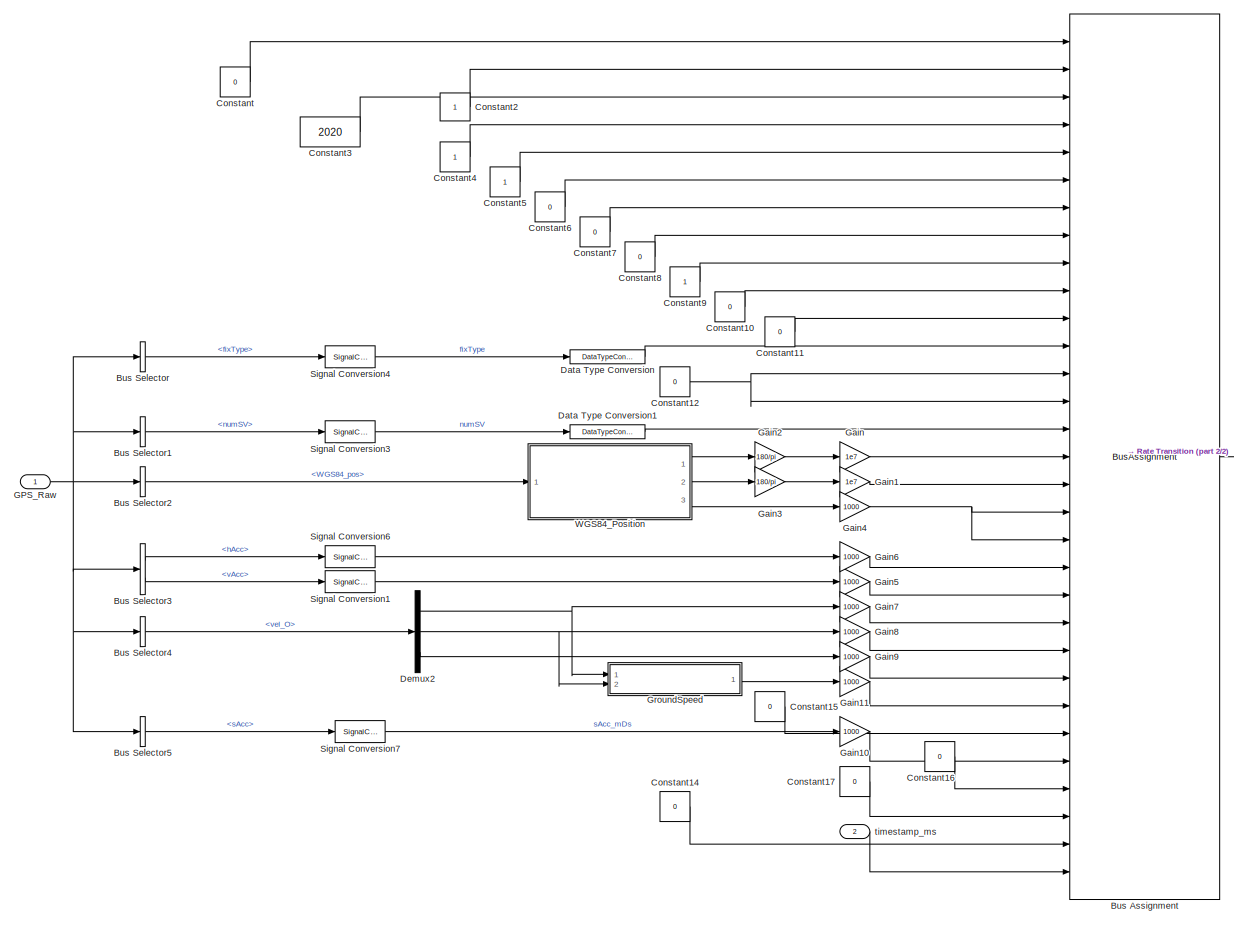
[diagram: Sensor_Model/Sensor_GPS/Bus_Constructor - part 1/2, most of the canvas]
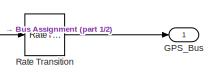
[diagram: Sensor_Model/Sensor_GPS/Bus_Constructor - part 2/2, middle right region]
BLOCK [SubSystem] Sensor_Model/Sensor_GPS/Bus_Constructor
  Ports = [2, 1]
  RequestExecContextInheritance = off
BLOCK [BusAssignment] Sensor_Model/Sensor_GPS/Bus_Constructor/Bus Assignment
  AssignedSignals = iTOW,year,month,day,hour,min,sec,valid,tAcc,nano,fixType,flags,reserved1,numSV,lon,lat,height,hMSL,hAcc,vAcc,velN,velE,velD,gSpeed,heading,sAcc,headingAcc,pDOP,reserved2,timestamp
  Ports = [31, 1]
BLOCK [BusSelector] Sensor_Model/Sensor_GPS/Bus_Constructor/Bus Selector
  OutputAsBus = off
  OutputSignals = fixType
  Ports = [1, 1]
BLOCK [BusSelector] Sensor_Model/Sensor_GPS/Bus_Constructor/Bus Selector1
  OutputAsBus = off
  OutputSignals = numSV
  Ports = [1, 1]
BLOCK [BusSelector] Sensor_Model/Sensor_GPS/Bus_Constructor/Bus Selector2
  OutputAsBus = off
  OutputSignals = WGS84_pos
  Ports = [1, 1]
BLOCK [BusSelector] Sensor_Model/Sensor_GPS/Bus_Constructor/Bus Selector3
  OutputAsBus = off
  OutputSignals = hAcc,vAcc
  Ports = [1, 2]
BLOCK [BusSelector] Sensor_Model/Sensor_GPS/Bus_Constructor/Bus Selector4
  OutputAsBus = off
  OutputSignals = vel_O
  Ports = [1, 1]
BLOCK [BusSelector] Sensor_Model/Sensor_GPS/Bus_Constructor/Bus Selector5
  OutputAsBus = off
  OutputSignals = sAcc
  Ports = [1, 1]
BLOCK [Constant] Sensor_Model/Sensor_GPS/Bus_Constructor/Constant
  OutDataTypeStr = Bus: GPS_uBlox_Bus
  Value = 0
BLOCK [Constant] Sensor_Model/Sensor_GPS/Bus_Constructor/Constant10
  OutDataTypeStr = uint32
  Value = 0
BLOCK [Constant] Sensor_Model/Sensor_GPS/Bus_Constructor/Constant11
  OutDataTypeStr = int32
  Value = 0
BLOCK [Constant] Sensor_Model/Sensor_GPS/Bus_Constructor/Constant12
  OutDataTypeStr = uint8
  Value = 0
BLOCK [Constant] Sensor_Model/Sensor_GPS/Bus_Constructor/Constant14
  OutDataTypeStr = uint16
  Value = 0
BLOCK [Constant] Sensor_Model/Sensor_GPS/Bus_Constructor/Constant15
  OutDataTypeStr = int32
  Value = 0
BLOCK [Constant] Sensor_Model/Sensor_GPS/Bus_Constructor/Constant16
  OutDataTypeStr = uint32
  Value = 0
BLOCK [Constant] Sensor_Model/Sensor_GPS/Bus_Constructor/Constant17
  OutDataTypeStr = uint16
  Value = 0
BLOCK [Constant] Sensor_Model/Sensor_GPS/Bus_Constructor/Constant2
  OutDataTypeStr = uint32
BLOCK [Constant] Sensor_Model/Sensor_GPS/Bus_Constructor/Constant3
  OutDataTypeStr = uint16
  Value = 2020
BLOCK [Constant] Sensor_Model/Sensor_GPS/Bus_Constructor/Constant4
  OutDataTypeStr = uint8
BLOCK [Constant] Sensor_Model/Sensor_GPS/Bus_Constructor/Constant5
  OutDataTypeStr = uint8
BLOCK [Constant] Sensor_Model/Sensor_GPS/Bus_Constructor/Constant6
  OutDataTypeStr = uint8
  Value = 0
BLOCK [Constant] Sensor_Model/Sensor_GPS/Bus_Constructor/Constant7
  OutDataTypeStr = uint8
  Value = 0
BLOCK [Constant] Sensor_Model/Sensor_GPS/Bus_Constructor/Constant8
  OutDataTypeStr = uint8
  Value = 0
BLOCK [Constant] Sensor_Model/Sensor_GPS/Bus_Constructor/Constant9
  OutDataTypeStr = uint8
BLOCK [DataTypeConversion] Sensor_Model/Sensor_GPS/Bus_Constructor/Data Type Conversion
  OutDataTypeStr = uint8
  RndMeth = Floor
  SaturateOnIntegerOverflow = off
BLOCK [DataTypeConversion] Sensor_Model/Sensor_GPS/Bus_Constructor/Data Type Conversion1
  OutDataTypeStr = uint8
  RndMeth = Floor
  SaturateOnIntegerOverflow = off
BLOCK [Demux] Sensor_Model/Sensor_GPS/Bus_Constructor/Demux2
  DisplayOption = bar
  Outputs = 3
  Ports = [1, 3]
BLOCK [Outport] Sensor_Model/Sensor_GPS/Bus_Constructor/GPS_Bus
  IconDisplay = Port number
BLOCK [Inport] Sensor_Model/Sensor_GPS/Bus_Constructor/GPS_Raw
  IconDisplay = Port number
BLOCK [Gain] Sensor_Model/Sensor_GPS/Bus_Constructor/Gain
  AttributesFormatString = Gain: %<Gain>
  Gain = 1e7
  OutDataTypeStr = int32
  ParamDataTypeStr = Inherit: Inherit via internal rule
  SaturateOnIntegerOverflow = off
BLOCK [Gain] Sensor_Model/Sensor_GPS/Bus_Constructor/Gain1
  AttributesFormatString = Gain: %<Gain>
  Gain = 1e7
  OutDataTypeStr = int32
  ParamDataTypeStr = Inherit: Inherit via internal rule
  SaturateOnIntegerOverflow = off
BLOCK [Gain] Sensor_Model/Sensor_GPS/Bus_Constructor/Gain10
  AttributesFormatString = Gain: %<Gain>
  Gain = 1000
  OutDataTypeStr = uint32
  ParamDataTypeStr = Inherit: Inherit via internal rule
  SaturateOnIntegerOverflow = off
BLOCK [Gain] Sensor_Model/Sensor_GPS/Bus_Constructor/Gain11
  AttributesFormatString = Gain: %<Gain>
  Gain = 1000
  OutDataTypeStr = int32
  ParamDataTypeStr = Inherit: Inherit via internal rule
  SaturateOnIntegerOverflow = off
BLOCK [Gain] Sensor_Model/Sensor_GPS/Bus_Constructor/Gain2
  AttributesFormatString = Gain: %<Gain>
  Gain = 180/pi
  OutDataTypeStr = Inherit: Inherit via internal rule
  ParamDataTypeStr = Inherit: Inherit via internal rule
  SaturateOnIntegerOverflow = off
BLOCK [Gain] Sensor_Model/Sensor_GPS/Bus_Constructor/Gain3
  AttributesFormatString = Gain: %<Gain>
  Gain = 180/pi
  OutDataTypeStr = Inherit: Inherit via internal rule
  ParamDataTypeStr = Inherit: Inherit via internal rule
  SaturateOnIntegerOverflow = off
BLOCK [Gain] Sensor_Model/Sensor_GPS/Bus_Constructor/Gain4
  AttributesFormatString = Gain: %<Gain>
  Gain = 1000
  OutDataTypeStr = int32
  ParamDataTypeStr = Inherit: Inherit via internal rule
  SaturateOnIntegerOverflow = off
BLOCK [Gain] Sensor_Model/Sensor_GPS/Bus_Constructor/Gain5
  AttributesFormatString = Gain: %<Gain>
  Gain = 1000
  OutDataTypeStr = uint32
  ParamDataTypeStr = Inherit: Inherit via internal rule
  SaturateOnIntegerOverflow = off
BLOCK [Gain] Sensor_Model/Sensor_GPS/Bus_Constructor/Gain6
  AttributesFormatString = Gain: %<Gain>
  Gain = 1000
  OutDataTypeStr = uint32
  ParamDataTypeStr = Inherit: Inherit via internal rule
  SaturateOnIntegerOverflow = off
BLOCK [Gain] Sensor_Model/Sensor_GPS/Bus_Constructor/Gain7
  AttributesFormatString = Gain: %<Gain>
  Gain = 1000
  OutDataTypeStr = int32
  ParamDataTypeStr = Inherit: Inherit via internal rule
  SaturateOnIntegerOverflow = off
BLOCK [Gain] Sensor_Model/Sensor_GPS/Bus_Constructor/Gain8
  AttributesFormatString = Gain: %<Gain>
  Gain = 1000
  OutDataTypeStr = int32
  ParamDataTypeStr = Inherit: Inherit via internal rule
  SaturateOnIntegerOverflow = off
BLOCK [Gain] Sensor_Model/Sensor_GPS/Bus_Constructor/Gain9
  AttributesFormatString = Gain: %<Gain>
  Gain = 1000
  OutDataTypeStr = int32
  ParamDataTypeStr = Inherit: Inherit via internal rule
  SaturateOnIntegerOverflow = off
BLOCK [SubSystem] Sensor_Model/Sensor_GPS/Bus_Constructor/GroundSpeed
  Ports = [2, 1]
  RequestExecContextInheritance = off
BLOCK [Sum] Sensor_Model/Sensor_GPS/Bus_Constructor/GroundSpeed/Add
  InputSameDT = off
  OutDataTypeStr = Inherit: Inherit via internal rule
  Ports = [2, 1]
  SaturateOnIntegerOverflow = off
BLOCK [Math] Sensor_Model/Sensor_GPS/Bus_Constructor/GroundSpeed/Math Function
  Operator = square
  Ports = [1, 1]
BLOCK [Math] Sensor_Model/Sensor_GPS/Bus_Constructor/GroundSpeed/Math Function1
  Operator = square
  Ports = [1, 1]
BLOCK [Saturate] Sensor_Model/Sensor_GPS/Bus_Constructor/GroundSpeed/Saturation
  InputPortMap = u0
  LowerLimit = 0
  Ports = [1, 1]
  UpperLimit = inf
BLOCK [Sqrt] Sensor_Model/Sensor_GPS/Bus_Constructor/GroundSpeed/Sqrt
BLOCK [Outport] Sensor_Model/Sensor_GPS/Bus_Constructor/GroundSpeed/gSpeed_mPs
  IconDisplay = Port number
BLOCK [Inport] Sensor_Model/Sensor_GPS/Bus_Constructor/GroundSpeed/u_O_mPs
  IconDisplay = Port number
BLOCK [Inport] Sensor_Model/Sensor_GPS/Bus_Constructor/GroundSpeed/v_O_mPs
  IconDisplay = Port number
  Port = 2
BLOCK [RateTransition] Sensor_Model/Sensor_GPS/Bus_Constructor/Rate Transition
  OutPortSampleTime = 0.1
BLOCK [SignalConversion] Sensor_Model/Sensor_GPS/Bus_Constructor/Signal Conversion1
  OverrideOpt = off
BLOCK [SignalConversion] Sensor_Model/Sensor_GPS/Bus_Constructor/Signal Conversion3
  OverrideOpt = off
BLOCK [SignalConversion] Sensor_Model/Sensor_GPS/Bus_Constructor/Signal Conversion4
  OverrideOpt = off
BLOCK [SignalConversion] Sensor_Model/Sensor_GPS/Bus_Constructor/Signal Conversion6
  OverrideOpt = off
BLOCK [SignalConversion] Sensor_Model/Sensor_GPS/Bus_Constructor/Signal Conversion7
  OverrideOpt = off
BLOCK [SubSystem] Sensor_Model/Sensor_GPS/Bus_Constructor/WGS84_Position
  Ports = [1, 3]
  RequestExecContextInheritance = off
BLOCK [Demux] Sensor_Model/Sensor_GPS/Bus_Constructor/WGS84_Position/Demux1
  DisplayOption = bar
  Outputs = 3
  Ports = [1, 3]
BLOCK [SignalConversion] Sensor_Model/Sensor_GPS/Bus_Constructor/WGS84_Position/Signal Conversion
  OverrideOpt = off
BLOCK [SignalConversion] Sensor_Model/Sensor_GPS/Bus_Constructor/WGS84_Position/Signal Conversion1
  OverrideOpt = off
BLOCK [SignalConversion] Sensor_Model/Sensor_GPS/Bus_Constructor/WGS84_Position/Signal Conversion2
  OverrideOpt = off
BLOCK [Outport] Sensor_Model/Sensor_GPS/Bus_Constructor/WGS84_Position/height
  IconDisplay = Port number
  Port = 3
BLOCK [Outport] Sensor_Model/Sensor_GPS/Bus_Constructor/WGS84_Position/lat
  IconDisplay = Port number
  Port = 2
BLOCK [Outport] Sensor_Model/Sensor_GPS/Bus_Constructor/WGS84_Position/lon
  IconDisplay = Port number
BLOCK [Inport] Sensor_Model/Sensor_GPS/Bus_Constructor/WGS84_Position/pos_WGS84
  IconDisplay = Port number
BLOCK [Inport] Sensor_Model/Sensor_GPS/Bus_Constructor/timestamp_ms
  IconDisplay = Port number
  Port = 2
BLOCK [Inport] Sensor_Model/Sensor_GPS/Enable_Errors
  IconDisplay = Port number
  Port = 2
BLOCK [SubSystem] Sensor_Model/Sensor_GPS/GPS
  Ports = [2, 1]
  RequestExecContextInheritance = off
BLOCK [SubSystem] Sensor_Model/Sensor_GPS/GPS/Bus_Constructor
  Ports = [7, 1]
  RequestExecContextInheritance = off
BLOCK [BusCreator] Sensor_Model/Sensor_GPS/GPS/Bus_Constructor/Bus Creator
  DisplayOption = bar
  InheritFromInputs = on
  Inputs = 7
  Ports = [7, 1]
BLOCK [Outport] Sensor_Model/Sensor_GPS/GPS/Bus_Constructor/GPS_Raw
  IconDisplay = Port number
BLOCK [Inport] Sensor_Model/Sensor_GPS/GPS/Bus_Constructor/WGS84_pos_meas
  IconDisplay = Port number
BLOCK [Inport] Sensor_Model/Sensor_GPS/GPS/Bus_Constructor/fixType
  IconDisplay = Port number
  Port = 4
BLOCK [Inport] Sensor_Model/Sensor_GPS/GPS/Bus_Constructor/h_Acc_m
  IconDisplay = Port number
  Port = 5
BLOCK [Inport] Sensor_Model/Sensor_GPS/GPS/Bus_Constructor/numSV
  IconDisplay = Port number
  Port = 3
BLOCK [Inport] Sensor_Model/Sensor_GPS/GPS/Bus_Constructor/s_Acc_mDs
  IconDisplay = Port number
  Port = 7
BLOCK [Inport] Sensor_Model/Sensor_GPS/GPS/Bus_Constructor/v_Acc_m
  IconDisplay = Port number
  Port = 6
BLOCK [Inport] Sensor_Model/Sensor_GPS/GPS/Bus_Constructor/vel_O_meas
  IconDisplay = Port number
  Port = 2
BLOCK [Inport] Sensor_Model/Sensor_GPS/GPS/Enable_Errors
  IconDisplay = Port number
BLOCK [Outport] Sensor_Model/Sensor_GPS/GPS/GPS_Raw
  IconDisplay = Port number
BLOCK [SubSystem] Sensor_Model/Sensor_GPS/GPS/Physical_Model
  Ports = [1, 2]
  RequestExecContextInheritance = off
BLOCK [BusSelector] Sensor_Model/Sensor_GPS/GPS/Physical_Model/Bus Selector
  OutputAsBus = off
  OutputSignals = Plant_States.lon,Plant_States.lat,Plant_States.alt
  Ports = [1, 3]
BLOCK [BusSelector] Sensor_Model/Sensor_GPS/GPS/Physical_Model/Bus Selector1
  OutputAsBus = off
  OutputSignals = Plant_States.vel_x_O,Plant_States.vel_y_O,Plant_States.vel_z_O
  Ports = [1, 3]
BLOCK [Delay] Sensor_Model/Sensor_GPS/GPS/Physical_Model/Delay
  DelayLength = 150/(PLANT_CONST.dt*1e3)
  InputPortMap = u0
  Ports = [1, 1]
BLOCK [Delay] Sensor_Model/Sensor_GPS/GPS/Physical_Model/Delay1
  DelayLength = 100/(PLANT_CONST.dt*1e3)
  InputPortMap = u0
  Ports = [1, 1]
BLOCK [Inport] Sensor_Model/Sensor_GPS/GPS/Physical_Model/States
  IconDisplay = Port number
BLOCK [Concatenate] Sensor_Model/Sensor_GPS/GPS/Physical_Model/Vector Concatenate
  Mode = Multidimensional array
  NumInputs = 3
  Ports = [3, 1]
BLOCK [Concatenate] Sensor_Model/Sensor_GPS/GPS/Physical_Model/Vector Concatenate1
  Mode = Multidimensional array
  NumInputs = 3
  Ports = [3, 1]
BLOCK [Outport] Sensor_Model/Sensor_GPS/GPS/Physical_Model/WGS84_pos_rad
  IconDisplay = Port number
  Unit = rad/s
BLOCK [Outport] Sensor_Model/Sensor_GPS/GPS/Physical_Model/vel_O_mPs
  IconDisplay = Port number
  Port = 2
  PortDimensions = [3 1]
  Unit = m/s
BLOCK [SubSystem] Sensor_Model/Sensor_GPS/GPS/Sensor_Model
  Ports = [3, 7]
  RequestExecContextInheritance = off
BLOCK [SubSystem] Sensor_Model/Sensor_GPS/GPS/Sensor_Model/Accurancy_Estimate
  Ports = [3, 3]
  RequestExecContextInheritance = off
BLOCK [Constant] Sensor_Model/Sensor_GPS/GPS/Sensor_Model/Accurancy_Estimate/Constant3
  Value = 0
BLOCK [Inport] Sensor_Model/Sensor_GPS/GPS/Sensor_Model/Accurancy_Estimate/Enable_Errors
  IconDisplay = Port number
BLOCK [Math] Sensor_Model/Sensor_GPS/GPS/Sensor_Model/Accurancy_Estimate/Math Function
  Operator = transpose
  Ports = [1, 1]
BLOCK [Math] Sensor_Model/Sensor_GPS/GPS/Sensor_Model/Accurancy_Estimate/Math Function1
  Operator = transpose
  Ports = [1, 1]
BLOCK [Math] Sensor_Model/Sensor_GPS/GPS/Sensor_Model/Accurancy_Estimate/Math Function2
  Operator = transpose
  Ports = [1, 1]
BLOCK [Product] Sensor_Model/Sensor_GPS/GPS/Sensor_Model/Accurancy_Estimate/Matrix Multiply
  InputSameDT = off
  Multiplication = Matrix(*)
  OutDataTypeStr = Inherit: Inherit via internal rule
  Ports = [2, 1]
  RndMeth = Floor
  SaturateOnIntegerOverflow = off
BLOCK [Product] Sensor_Model/Sensor_GPS/GPS/Sensor_Model/Accurancy_Estimate/Matrix Multiply1
  InputSameDT = off
  Multiplication = Matrix(*)
  OutDataTypeStr = Inherit: Inherit via internal rule
  Ports = [2, 1]
  RndMeth = Floor
  SaturateOnIntegerOverflow = off
BLOCK [Product] Sensor_Model/Sensor_GPS/GPS/Sensor_Model/Accurancy_Estimate/Matrix Multiply2
  InputSameDT = off
  Multiplication = Matrix(*)
  OutDataTypeStr = Inherit: Inherit via internal rule
  Ports = [2, 1]
  RndMeth = Floor
  SaturateOnIntegerOverflow = off
BLOCK [Selector] Sensor_Model/Sensor_GPS/GPS/Sensor_Model/Accurancy_Estimate/Selector1
  IndexOptions = Index vector (dialog)
  Indices = 3
  InputPortWidth = 3
  OutputSizes = 1
  Ports = [1, 1]
BLOCK [Selector] Sensor_Model/Sensor_GPS/GPS/Sensor_Model/Accurancy_Estimate/Selector2
  IndexOptions = Index vector (dialog)
  Indices = [1 2]
  InputPortWidth = 3
  OutputSizes = 1
  Ports = [1, 1]
BLOCK [Sqrt] Sensor_Model/Sensor_GPS/GPS/Sensor_Model/Accurancy_Estimate/Sqrt
  OutputSignalType = real
BLOCK [Sqrt] Sensor_Model/Sensor_GPS/GPS/Sensor_Model/Accurancy_Estimate/Sqrt1
  OutputSignalType = real
BLOCK [Sqrt] Sensor_Model/Sensor_GPS/GPS/Sensor_Model/Accurancy_Estimate/Sqrt2
  OutputSignalType = real
BLOCK [Switch] Sensor_Model/Sensor_GPS/GPS/Sensor_Model/Accurancy_Estimate/Switch
  Criteria = u2 > Threshold
  InputSameDT = off
  SaturateOnIntegerOverflow = off
BLOCK [Switch] Sensor_Model/Sensor_GPS/GPS/Sensor_Model/Accurancy_Estimate/Switch1
  Criteria = u2 > Threshold
  InputSameDT = off
  SaturateOnIntegerOverflow = off
BLOCK [Switch] Sensor_Model/Sensor_GPS/GPS/Sensor_Model/Accurancy_Estimate/Switch2
  Criteria = u2 > Threshold
  InputSameDT = off
  SaturateOnIntegerOverflow = off
BLOCK [Outport] Sensor_Model/Sensor_GPS/GPS/Sensor_Model/Accurancy_Estimate/h_Acc_m
  IconDisplay = Port number
BLOCK [Inport] Sensor_Model/Sensor_GPS/GPS/Sensor_Model/Accurancy_Estimate/pos_O_error
  IconDisplay = Port number
  Port = 2
BLOCK [Outport] Sensor_Model/Sensor_GPS/GPS/Sensor_Model/Accurancy_Estimate/s_Acc_mDs
  IconDisplay = Port number
  Port = 3
BLOCK [Outport] Sensor_Model/Sensor_GPS/GPS/Sensor_Model/Accurancy_Estimate/v_Acc_m
  IconDisplay = Port number
  Port = 2
BLOCK [Inport] Sensor_Model/Sensor_GPS/GPS/Sensor_Model/Accurancy_Estimate/vel_O_error
  IconDisplay = Port number
  Port = 3
BLOCK [Constant] Sensor_Model/Sensor_GPS/GPS/Sensor_Model/Constant1
  OutDataTypeStr = Inherit: Inherit via back propagation
  Value = 16
BLOCK [Constant] Sensor_Model/Sensor_GPS/GPS/Sensor_Model/Constant2
  OutDataTypeStr = Inherit: Inherit via back propagation
  Value = 3
BLOCK [Delay] Sensor_Model/Sensor_GPS/GPS/Sensor_Model/Delay
  DelayLength = 500/(PLANT_CONST.dt*1e3)
  InputPortMap = u0
  Ports = [1, 1]
BLOCK [Delay] Sensor_Model/Sensor_GPS/GPS/Sensor_Model/Delay1
  DelayLength = 500/(PLANT_CONST.dt*1e3)
  InputPortMap = u0
  Ports = [1, 1]
BLOCK [Inport] Sensor_Model/Sensor_GPS/GPS/Sensor_Model/Enable_Errors
  IconDisplay = Port number
BLOCK [SubSystem] Sensor_Model/Sensor_GPS/GPS/Sensor_Model/Sensor_Error
  Ports = [0, 2]
  RequestExecContextInheritance = off
BLOCK [Reference] Sensor_Model/Sensor_GPS/GPS/Sensor_Model/Sensor_Error/Random Source  REF=dspsrcs4/Random
Source
  Ports = [0, 1]
  SourceBlock = dspsrcs4/Random\nSource
  SourceProductBaseCode = DS
  SourceProductName = DSP System Toolbox
  SourceType = Random Source
  UserDataPersistent = on
BLOCK [Reference] Sensor_Model/Sensor_GPS/GPS/Sensor_Model/Sensor_Error/Random Source1  REF=dspsrcs4/Random
Source
  Ports = [0, 1]
  SourceBlock = dspsrcs4/Random\nSource
  SourceProductBaseCode = DS
  SourceProductName = DSP System Toolbox
  SourceType = Random Source
  UserDataPersistent = on
BLOCK [Outport] Sensor_Model/Sensor_GPS/GPS/Sensor_Model/Sensor_Error/pos_O_error
  IconDisplay = Port number
BLOCK [Outport] Sensor_Model/Sensor_GPS/GPS/Sensor_Model/Sensor_Error/vel_O_error
  IconDisplay = Port number
  Port = 2
BLOCK [Sum] Sensor_Model/Sensor_GPS/GPS/Sensor_Model/Sum1
  IconShape = round
  InputSameDT = off
  Inputs = |++
  OutDataTypeStr = Inherit: Inherit via internal rule
  Ports = [2, 1]
  SaturateOnIntegerOverflow = off
BLOCK [Sum] Sensor_Model/Sensor_GPS/GPS/Sensor_Model/Sum2
  IconShape = round
  InputSameDT = off
  Inputs = |++
  OutDataTypeStr = Inherit: Inherit via internal rule
  Ports = [2, 1]
  SaturateOnIntegerOverflow = off
BLOCK [Switch] Sensor_Model/Sensor_GPS/GPS/Sensor_Model/Switch
  Criteria = u2 > Threshold
  InputSameDT = off
  SaturateOnIntegerOverflow = off
BLOCK [Switch] Sensor_Model/Sensor_GPS/GPS/Sensor_Model/Switch1
  Criteria = u2 > Threshold
  InputSameDT = off
  SaturateOnIntegerOverflow = off
BLOCK [SubSystem] Sensor_Model/Sensor_GPS/GPS/Sensor_Model/WGS84_Linearization
  Ports = [2, 1]
  RequestExecContextInheritance = off
BLOCK [Demux] Sensor_Model/Sensor_GPS/GPS/Sensor_Model/WGS84_Linearization/Demux2
  DisplayOption = bar
  Outputs = 3
  Ports = [1, 3]
BLOCK [Product] Sensor_Model/Sensor_GPS/GPS/Sensor_Model/WGS84_Linearization/Divide2
  InputSameDT = off
  Inputs = /*
  OutDataTypeStr = Inherit: Inherit via internal rule
  Ports = [2, 1]
  RndMeth = Floor
  SaturateOnIntegerOverflow = off
BLOCK [Reference] Sensor_Model/Sensor_GPS/GPS/Sensor_Model/WGS84_Linearization/LAT2FLAT Curve  REF=FMT_Model_Lib/Transformation/LAT2FLAT Curve
  Ports = [1, 2]
  SourceBlock = FMT_Model_Lib/Transformation/LAT2FLAT Curve
  SourceProductName = FMT Toolbox
  SourceType = Flat Earth Curvature
BLOCK [Terminator] Sensor_Model/Sensor_GPS/GPS/Sensor_Model/WGS84_Linearization/Terminator1
BLOCK [Terminator] Sensor_Model/Sensor_GPS/GPS/Sensor_Model/WGS84_Linearization/Terminator2
BLOCK [Concatenate] Sensor_Model/Sensor_GPS/GPS/Sensor_Model/WGS84_Linearization/Vector Concatenate2
  Mode = Multidimensional array
  NumInputs = 3
  Ports = [3, 1]
BLOCK [Inport] Sensor_Model/Sensor_GPS/GPS/Sensor_Model/WGS84_Linearization/WGS84_pos
  IconDisplay = Port number
BLOCK [Outport] Sensor_Model/Sensor_GPS/GPS/Sensor_Model/WGS84_Linearization/WGS84_pos_error
  IconDisplay = Port number
BLOCK [Constant] Sensor_Model/Sensor_GPS/GPS/Sensor_Model/WGS84_Linearization/constant1
  Value = -1
BLOCK [Inport] Sensor_Model/Sensor_GPS/GPS/Sensor_Model/WGS84_Linearization/pos_O_error
  IconDisplay = Port number
  Port = 2
BLOCK [Outport] Sensor_Model/Sensor_GPS/GPS/Sensor_Model/WGS84_pos_meas
  IconDisplay = Port number
BLOCK [Inport] Sensor_Model/Sensor_GPS/GPS/Sensor_Model/WGS84_pos_rad
  IconDisplay = Port number
  Port = 2
BLOCK [Outport] Sensor_Model/Sensor_GPS/GPS/Sensor_Model/fixType
  IconDisplay = Port number
  Port = 4
BLOCK [Outport] Sensor_Model/Sensor_GPS/GPS/Sensor_Model/h_Acc_m
  IconDisplay = Port number
  Port = 5
BLOCK [Outport] Sensor_Model/Sensor_GPS/GPS/Sensor_Model/numSV
  IconDisplay = Port number
  Port = 3
BLOCK [SubSystem] Sensor_Model/Sensor_GPS/GPS/Sensor_Model/pos_filter
  Ports = [1, 1]
  RequestExecContextInheritance = off
BLOCK [DiscreteFir] Sensor_Model/Sensor_GPS/GPS/Sensor_Model/pos_filter/Discrete FIR Filter
  InputPortMap = u0
  OutputPortMap = o0
  Ports = [1, 1]
BLOCK [Outport] Sensor_Model/Sensor_GPS/GPS/Sensor_Model/pos_filter/pos_filter
  IconDisplay = Port number
BLOCK [Inport] Sensor_Model/Sensor_GPS/GPS/Sensor_Model/pos_filter/pos_in
  IconDisplay = Port number
BLOCK [Outport] Sensor_Model/Sensor_GPS/GPS/Sensor_Model/s_Acc_mDs
  IconDisplay = Port number
  Port = 7
BLOCK [Outport] Sensor_Model/Sensor_GPS/GPS/Sensor_Model/v_Acc_m
  IconDisplay = Port number
  Port = 6
BLOCK [Inport] Sensor_Model/Sensor_GPS/GPS/Sensor_Model/vel_O_mPs
  IconDisplay = Port number
  Port = 3
BLOCK [Outport] Sensor_Model/Sensor_GPS/GPS/Sensor_Model/vel_O_meas
  IconDisplay = Port number
  Port = 2
BLOCK [SubSystem] Sensor_Model/Sensor_GPS/GPS/Sensor_Model/vel_filter
  Ports = [1, 1]
  RequestExecContextInheritance = off
BLOCK [DiscreteFir] Sensor_Model/Sensor_GPS/GPS/Sensor_Model/vel_filter/Discrete FIR Filter
  InputPortMap = u0
  OutputPortMap = o0
  Ports = [1, 1]
BLOCK [Outport] Sensor_Model/Sensor_GPS/GPS/Sensor_Model/vel_filter/vel_filter
  IconDisplay = Port number
BLOCK [Inport] Sensor_Model/Sensor_GPS/GPS/Sensor_Model/vel_filter/vel_in
  IconDisplay = Port number
BLOCK [Inport] Sensor_Model/Sensor_GPS/GPS/States
  IconDisplay = Port number
  Port = 2
BLOCK [Outport] Sensor_Model/Sensor_GPS/GPS_Bus
  IconDisplay = Port number
BLOCK [Inport] Sensor_Model/Sensor_GPS/States
  IconDisplay = Port number
BLOCK [Inport] Sensor_Model/Sensor_GPS/timestamp_ms
  IconDisplay = Port number
  Port = 3
BLOCK [SubSystem] Sensor_Model/Sensor_IMU
  Ports = [3, 1]
  RequestExecContextInheritance = off
  TreatAsAtomicUnit = on
BLOCK [SubSystem] Sensor_Model/Sensor_IMU/Accelerometer
  Ports = [2, 1]
  RequestExecContextInheritance = off
BLOCK [Outport] Sensor_Model/Sensor_IMU/Accelerometer/Acc_Raw
  IconDisplay = Port number
BLOCK [SubSystem] Sensor_Model/Sensor_IMU/Accelerometer/Bus_Constructor
  Ports = [1, 1]
  RequestExecContextInheritance = off
BLOCK [Outport] Sensor_Model/Sensor_IMU/Accelerometer/Bus_Constructor/Acc_Raw
  IconDisplay = Port number
BLOCK [BusCreator] Sensor_Model/Sensor_IMU/Accelerometer/Bus_Constructor/Bus Creator
  DisplayOption = bar
  InheritFromInputs = on
  Inputs = 3
  Ports = [3, 1]
BLOCK [Demux] Sensor_Model/Sensor_IMU/Accelerometer/Bus_Constructor/Demux
  DisplayOption = bar
  Outputs = 3
  Ports = [1, 3]
BLOCK [Inport] Sensor_Model/Sensor_IMU/Accelerometer/Bus_Constructor/Output
  IconDisplay = Port number
BLOCK [Inport] Sensor_Model/Sensor_IMU/Accelerometer/Enable_Errors
  IconDisplay = Port number
  Port = 2
BLOCK [SubSystem] Sensor_Model/Sensor_IMU/Accelerometer/Physical_Model
  Ports = [2, 1]
  RequestExecContextInheritance = off
BLOCK [Inport] Sensor_Model/Sensor_IMU/Accelerometer/Physical_Model/Enable_Errors
  IconDisplay = Port number
  Port = 2
BLOCK [Inport] Sensor_Model/Sensor_IMU/Accelerometer/Physical_Model/States
  IconDisplay = Port number
BLOCK [Sum] Sensor_Model/Sensor_IMU/Accelerometer/Physical_Model/Sum
  IconShape = round
  InputSameDT = off
  Inputs = |++
  OutDataTypeStr = Inherit: Inherit via internal rule
  Ports = [2, 1]
  SaturateOnIntegerOverflow = off
BLOCK [Switch] Sensor_Model/Sensor_IMU/Accelerometer/Physical_Model/Switch
  Criteria = u2 > Threshold
  InputSameDT = off
  OutDataTypeStr = single
  SaturateOnIntegerOverflow = off
BLOCK [SubSystem] Sensor_Model/Sensor_IMU/Accelerometer/Physical_Model/Vibration_Model
  Ports = [1, 1]
  RTWSystemCode = Inline
  RequestExecContextInheritance = off
  TreatAsAtomicUnit = on
BLOCK [Reference] Sensor_Model/Sensor_IMU/Accelerometer/Physical_Model/Vibration_Model/Compare To Constant1  REF=simulink/Logic and Bit
Operations/Compare
To Constant
  Ports = [1, 1]
  SourceBlock = simulink/Logic and Bit\nOperations/Compare\nTo Constant
  SourceProductBaseCode = SL
  SourceProductName = Simulink
  SourceType = Compare To Constant
BLOCK [DiscreteIntegrator] Sensor_Model/Sensor_IMU/Accelerometer/Physical_Model/Vibration_Model/Discrete-Time Integrator
  ICPrevOutput = DiscIntNeverNeededParam
  ICPrevScaledInput = DiscIntNeverNeededParam
  InitialCondition = zeros(4,1)
  Ports = [1, 1]
  SampleTime = -1
BLOCK [Product] Sensor_Model/Sensor_IMU/Accelerometer/Physical_Model/Vibration_Model/Divide
  InputSameDT = off
  Inputs = */
  OutDataTypeStr = Inherit: Inherit via internal rule
  Ports = [2, 1]
  RndMeth = Floor
  SaturateOnIntegerOverflow = off
BLOCK [Gain] Sensor_Model/Sensor_IMU/Accelerometer/Physical_Model/Vibration_Model/Gain2
  Gain = 0.5
  OutDataTypeStr = Inherit: Inherit via internal rule
  ParamDataTypeStr = Inherit: Inherit via internal rule
  SaturateOnIntegerOverflow = off
BLOCK [Gain] Sensor_Model/Sensor_IMU/Accelerometer/Physical_Model/Vibration_Model/Gain4
  Gain = gain
  OutDataTypeStr = Inherit: Inherit via internal rule
  ParamDataTypeStr = Inherit: Inherit via internal rule
  SaturateOnIntegerOverflow = off
BLOCK [Product] Sensor_Model/Sensor_IMU/Accelerometer/Physical_Model/Vibration_Model/Product1
  InputSameDT = off
  OutDataTypeStr = Inherit: Inherit via internal rule
  Ports = [2, 1]
  SaturateOnIntegerOverflow = off
BLOCK [Product] Sensor_Model/Sensor_IMU/Accelerometer/Physical_Model/Vibration_Model/Product2
  InputSameDT = off
  OutDataTypeStr = Inherit: Inherit via internal rule
  Ports = [2, 1]
  SaturateOnIntegerOverflow = off
BLOCK [Reshape] Sensor_Model/Sensor_IMU/Accelerometer/Physical_Model/Vibration_Model/Reshape
  OutputDimensionality = Column vector (2-D)
  Ports = [1, 1]
BLOCK [Saturate] Sensor_Model/Sensor_IMU/Accelerometer/Physical_Model/Vibration_Model/Saturation
  InputPortMap = u0
  LowerLimit = 4
  Ports = [1, 1]
  UpperLimit = 8
BLOCK [Sum] Sensor_Model/Sensor_IMU/Accelerometer/Physical_Model/Vibration_Model/Sum
  IconShape = round
  InputSameDT = off
  Inputs = ++|
  OutDataTypeStr = Inherit: Inherit via internal rule
  Ports = [2, 1]
  SaturateOnIntegerOverflow = off
BLOCK [Sum] Sensor_Model/Sensor_IMU/Accelerometer/Physical_Model/Vibration_Model/Sum of Elements
  InputSameDT = off
  Inputs = +
  OutDataTypeStr = Inherit: Inherit via internal rule
  Ports = [1, 1]
  SaturateOnIntegerOverflow = off
BLOCK [Sum] Sensor_Model/Sensor_IMU/Accelerometer/Physical_Model/Vibration_Model/Sum of Elements1
  InputSameDT = off
  Inputs = +
  OutDataTypeStr = Inherit: Inherit via internal rule
  Ports = [1, 1]
  SaturateOnIntegerOverflow = off
BLOCK [Sum] Sensor_Model/Sensor_IMU/Accelerometer/Physical_Model/Vibration_Model/Sum of Elements2
  CollapseMode = Specified dimension
  InputSameDT = off
  Inputs = +
  OutDataTypeStr = Inherit: Inherit via internal rule
  Ports = [1, 1]
  SaturateOnIntegerOverflow = off
BLOCK [Trigonometry] Sensor_Model/Sensor_IMU/Accelerometer/Physical_Model/Vibration_Model/Trigonometric Function1
  Operator = cos
  Ports = [1, 1]
BLOCK [Trigonometry] Sensor_Model/Sensor_IMU/Accelerometer/Physical_Model/Vibration_Model/Trigonometric Function2
  Ports = [1, 1]
BLOCK [Concatenate] Sensor_Model/Sensor_IMU/Accelerometer/Physical_Model/Vibration_Model/Vector Concatenate
  Mode = Multidimensional array
  NumInputs = 3
  Ports = [3, 1]
BLOCK [Inport] Sensor_Model/Sensor_IMU/Accelerometer/Physical_Model/Vibration_Model/prop_rot_radPs
  IconDisplay = Port number
  PortDimensions = [4,1]
BLOCK [SubSystem] Sensor_Model/Sensor_IMU/Accelerometer/Physical_Model/Vibration_Model/vib_frequency
  Ports = [1, 1]
  RequestExecContextInheritance = off
BLOCK [Constant] Sensor_Model/Sensor_IMU/Accelerometer/Physical_Model/Vibration_Model/vib_frequency/Constant2
  Value = pi/30*1e4
BLOCK [Product] Sensor_Model/Sensor_IMU/Accelerometer/Physical_Model/Vibration_Model/vib_frequency/Divide2
  InputSameDT = off
  Inputs = */
  OutDataTypeStr = Inherit: Inherit via internal rule
  Ports = [2, 1]
  RndMeth = Floor
  SaturateOnIntegerOverflow = off
BLOCK [Inport] Sensor_Model/Sensor_IMU/Accelerometer/Physical_Model/Vibration_Model/vib_frequency/prop_rot_radPs
  IconDisplay = Port number
BLOCK [Math] Sensor_Model/Sensor_IMU/Accelerometer/Physical_Model/Vibration_Model/vib_frequency/u^2
  Operator = square
  Ports = [1, 1]
BLOCK [Outport] Sensor_Model/Sensor_IMU/Accelerometer/Physical_Model/Vibration_Model/vib_frequency/y
  IconDisplay = Port number
BLOCK [Outport] Sensor_Model/Sensor_IMU/Accelerometer/Physical_Model/Vibration_Model/vibration
  IconDisplay = Port number
BLOCK [SubSystem] Sensor_Model/Sensor_IMU/Accelerometer/Physical_Model/prop_vel
  Ports = [1, 1]
  RequestExecContextInheritance = off
BLOCK [BusSelector] Sensor_Model/Sensor_IMU/Accelerometer/Physical_Model/prop_vel/Bus Selector2
  OutputAsBus = off
  OutputSignals = Extended_States.prop_vel
  Ports = [1, 1]
BLOCK [Selector] Sensor_Model/Sensor_IMU/Accelerometer/Physical_Model/prop_vel/Selector
  IndexOptions = Index vector (dialog)
  Indices = [1:4]
  InputPortWidth = 8
  OutputSizes = 1
  Ports = [1, 1]
BLOCK [Inport] Sensor_Model/Sensor_IMU/Accelerometer/Physical_Model/prop_vel/States
  IconDisplay = Port number
BLOCK [Outport] Sensor_Model/Sensor_IMU/Accelerometer/Physical_Model/prop_vel/omega_radDs
  IconDisplay = Port number
BLOCK [Outport] Sensor_Model/Sensor_IMU/Accelerometer/Physical_Model/sfor_B_mPs2
  IconDisplay = Port number
  Unit = m/s^2
BLOCK [SubSystem] Sensor_Model/Sensor_IMU/Accelerometer/Physical_Model/specific_force
  Ports = [1, 1]
  RequestExecContextInheritance = off
BLOCK [BusSelector] Sensor_Model/Sensor_IMU/Accelerometer/Physical_Model/specific_force/Bus Selector
  OutputAsBus = off
  OutputSignals = Plant_States.acc_x_O,Plant_States.acc_y_O,Plant_States.acc_z_O
  Ports = [1, 3]
BLOCK [BusSelector] Sensor_Model/Sensor_IMU/Accelerometer/Physical_Model/specific_force/Bus Selector1
  OutputAsBus = off
  OutputSignals = Extended_States.M_BO
  Ports = [1, 1]
BLOCK [Constant] Sensor_Model/Sensor_IMU/Accelerometer/Physical_Model/specific_force/Gravity
  OutDataTypeStr = single
  Value = [0;0;Sensor_Model.g]
BLOCK [Product] Sensor_Model/Sensor_IMU/Accelerometer/Physical_Model/specific_force/Product1
  Multiplication = Matrix(*)
  Ports = [2, 1]
  SaturateOnIntegerOverflow = off
BLOCK [Inport] Sensor_Model/Sensor_IMU/Accelerometer/Physical_Model/specific_force/States
  IconDisplay = Port number
BLOCK [Sum] Sensor_Model/Sensor_IMU/Accelerometer/Physical_Model/specific_force/Sum
  AccumDataTypeStr = Inherit: Same as first input
  IconShape = round
  Inputs = |+-
  Ports = [2, 1]
  SaturateOnIntegerOverflow = off
BLOCK [Concatenate] Sensor_Model/Sensor_IMU/Accelerometer/Physical_Model/specific_force/Vector Concatenate1
  Mode = Multidimensional array
  NumInputs = 3
  Ports = [3, 1]
BLOCK [Outport] Sensor_Model/Sensor_IMU/Accelerometer/Physical_Model/specific_force/sfor_B_mPs2
  IconDisplay = Port number
  Unit = m/s^2
BLOCK [SubSystem] Sensor_Model/Sensor_IMU/Accelerometer/Sensor_Model
  Ports = [2, 1]
  RequestExecContextInheritance = off
BLOCK [Inport] Sensor_Model/Sensor_IMU/Accelerometer/Sensor_Model/Enable_Errors
  IconDisplay = Port number
BLOCK [Reference] Sensor_Model/Sensor_IMU/Accelerometer/Sensor_Model/First Order LPF  REF=FMT_Model_Lib/Filter/First Order LPF
  Ports = [1, 1]
  SourceBlock = FMT_Model_Lib/Filter/First Order LPF
  SourceProductName = FMT Toolbox
  SourceType = First-order Low-pass filter
BLOCK [Saturate] Sensor_Model/Sensor_IMU/Accelerometer/Sensor_Model/Saturation
  InputPortMap = u0
  LowerLimit = Sensor_Model.Acc.Lower_limit
  Ports = [1, 1]
  UpperLimit = Sensor_Model.Acc.Upper_limit
BLOCK [SubSystem] Sensor_Model/Sensor_IMU/Accelerometer/Sensor_Model/Sensor_Error
  Ports = [1, 1]
  RequestExecContextInheritance = off
BLOCK [Sum] Sensor_Model/Sensor_IMU/Accelerometer/Sensor_Model/Sensor_Error/Add
  AccumDataTypeStr = Inherit: Same as first input
  Ports = [2, 1]
  SaturateOnIntegerOverflow = off
BLOCK [Constant] Sensor_Model/Sensor_IMU/Accelerometer/Sensor_Model/Sensor_Error/Constant
  OutDataTypeStr = single
  Value = eye(3)
BLOCK [Constant] Sensor_Model/Sensor_IMU/Accelerometer/Sensor_Model/Sensor_Error/Constant1
  OutDataTypeStr = single
  Value = Sensor_Model.Acc.Scalefactor_Error
  VectorParams1D = off
BLOCK [Constant] Sensor_Model/Sensor_IMU/Accelerometer/Sensor_Model/Sensor_Error/Constant3
  OutDataTypeStr = single
  Value = Sensor_Model.Acc.Bias
  VectorParams1D = off
BLOCK [Product] Sensor_Model/Sensor_IMU/Accelerometer/Sensor_Model/Sensor_Error/Product
  Multiplication = Matrix(*)
  Ports = [2, 1]
  SaturateOnIntegerOverflow = off
BLOCK [Sum] Sensor_Model/Sensor_IMU/Accelerometer/Sensor_Model/Sensor_Error/Sum
  AccumDataTypeStr = Inherit: Same as first input
  IconShape = round
  Inputs = |++
  Ports = [2, 1]
  SaturateOnIntegerOverflow = off
BLOCK [Inport] Sensor_Model/Sensor_IMU/Accelerometer/Sensor_Model/Sensor_Error/u
  IconDisplay = Port number
BLOCK [Outport] Sensor_Model/Sensor_IMU/Accelerometer/Sensor_Model/Sensor_Error/y
  IconDisplay = Port number
BLOCK [SubSystem] Sensor_Model/Sensor_IMU/Accelerometer/Sensor_Model/Sensor_Noise
  Ports = [0, 1]
  RequestExecContextInheritance = off
BLOCK [Reference] Sensor_Model/Sensor_IMU/Accelerometer/Sensor_Model/Sensor_Noise/Random Source  REF=dspsrcs4/Random
Source
  Ports = [0, 1]
  SourceBlock = dspsrcs4/Random\nSource
  SourceProductBaseCode = DS
  SourceProductName = DSP System Toolbox
  SourceType = Random Source
  UserDataPersistent = on
BLOCK [Outport] Sensor_Model/Sensor_IMU/Accelerometer/Sensor_Model/Sensor_Noise/noise
  IconDisplay = Port number
BLOCK [Sum] Sensor_Model/Sensor_IMU/Accelerometer/Sensor_Model/Sum
  IconShape = round
  InputSameDT = off
  Inputs = |++
  OutDataTypeStr = Inherit: Inherit via internal rule
  Ports = [2, 1]
  SaturateOnIntegerOverflow = off
BLOCK [Switch] Sensor_Model/Sensor_IMU/Accelerometer/Sensor_Model/Switch
  Criteria = u2 > Threshold
  InputSameDT = off
  SaturateOnIntegerOverflow = off
BLOCK [Inport] Sensor_Model/Sensor_IMU/Accelerometer/Sensor_Model/u
  IconDisplay = Port number
  Port = 2
BLOCK [Outport] Sensor_Model/Sensor_IMU/Accelerometer/Sensor_Model/y
  IconDisplay = Port number
BLOCK [Inport] Sensor_Model/Sensor_IMU/Accelerometer/States
  IconDisplay = Port number
BLOCK [SubSystem] Sensor_Model/Sensor_IMU/Bus_Constructor
  Ports = [3, 1]
  RequestExecContextInheritance = off
BLOCK [Inport] Sensor_Model/Sensor_IMU/Bus_Constructor/Acc_Raw
  IconDisplay = Port number
  Port = 2
BLOCK [BusAssignment] Sensor_Model/Sensor_IMU/Bus_Constructor/Bus Assignment
  AssignedSignals = timestamp,gyr_x,gyr_y,gyr_z,acc_x,acc_y,acc_z
  Ports = [8, 1]
BLOCK [BusSelector] Sensor_Model/Sensor_IMU/Bus_Constructor/Bus Selector
  OutputAsBus = off
  OutputSignals = Gyro_x_radPs,Gyro_y_radPs,Gyro_z_radPs
  Ports = [1, 3]
BLOCK [BusSelector] Sensor_Model/Sensor_IMU/Bus_Constructor/Bus Selector1
  OutputAsBus = off
  OutputSignals = Acc_x_mPs2,Acc_y_mPs2,Acc_z_mPs2
  Ports = [1, 3]
BLOCK [Constant] Sensor_Model/Sensor_IMU/Bus_Constructor/Constant
  OutDataTypeStr = Bus: IMU_Bus
  Value = 0
BLOCK [Inport] Sensor_Model/Sensor_IMU/Bus_Constructor/Gyro_Raw
  IconDisplay = Port number
BLOCK [Outport] Sensor_Model/Sensor_IMU/Bus_Constructor/IMU_Bus
  IconDisplay = Port number
BLOCK [Inport] Sensor_Model/Sensor_IMU/Bus_Constructor/timestamp_ms
  IconDisplay = Port number
  Port = 3
BLOCK [Inport] Sensor_Model/Sensor_IMU/Enable_Errors
  IconDisplay = Port number
  Port = 2
BLOCK [SubSystem] Sensor_Model/Sensor_IMU/Gyroscope
  Ports = [2, 1]
  RequestExecContextInheritance = off
BLOCK [SubSystem] Sensor_Model/Sensor_IMU/Gyroscope/Bus_Constructor
  Ports = [1, 1]
  RequestExecContextInheritance = off
BLOCK [BusCreator] Sensor_Model/Sensor_IMU/Gyroscope/Bus_Constructor/Bus Creator
  DisplayOption = bar
  InheritFromInputs = on
  Inputs = 3
  Ports = [3, 1]
BLOCK [Demux] Sensor_Model/Sensor_IMU/Gyroscope/Bus_Constructor/Demux
  DisplayOption = bar
  Outputs = 3
  Ports = [1, 3]
BLOCK [Outport] Sensor_Model/Sensor_IMU/Gyroscope/Bus_Constructor/Gyro_Raw
  IconDisplay = Port number
BLOCK [Inport] Sensor_Model/Sensor_IMU/Gyroscope/Bus_Constructor/Output
  IconDisplay = Port number
BLOCK [Inport] Sensor_Model/Sensor_IMU/Gyroscope/Enable_Errors
  IconDisplay = Port number
  Port = 2
BLOCK [Outport] Sensor_Model/Sensor_IMU/Gyroscope/Gyro_Raw
  IconDisplay = Port number
BLOCK [SubSystem] Sensor_Model/Sensor_IMU/Gyroscope/Physical_Model
  Ports = [2, 1]
  RequestExecContextInheritance = off
BLOCK [Inport] Sensor_Model/Sensor_IMU/Gyroscope/Physical_Model/Enable_Errors
  IconDisplay = Port number
  Port = 2
BLOCK [Inport] Sensor_Model/Sensor_IMU/Gyroscope/Physical_Model/States
  IconDisplay = Port number
BLOCK [Sum] Sensor_Model/Sensor_IMU/Gyroscope/Physical_Model/Sum
  IconShape = round
  InputSameDT = off
  Inputs = |++
  OutDataTypeStr = Inherit: Inherit via internal rule
  Ports = [2, 1]
  SaturateOnIntegerOverflow = off
BLOCK [Switch] Sensor_Model/Sensor_IMU/Gyroscope/Physical_Model/Switch
  Criteria = u2 > Threshold
  InputSameDT = off
  SaturateOnIntegerOverflow = off
BLOCK [SubSystem] Sensor_Model/Sensor_IMU/Gyroscope/Physical_Model/Vibration_Model
  Ports = [1, 1]
  RTWSystemCode = Inline
  RequestExecContextInheritance = off
  TreatAsAtomicUnit = on
BLOCK [Reference] Sensor_Model/Sensor_IMU/Gyroscope/Physical_Model/Vibration_Model/Compare To Constant1  REF=simulink/Logic and Bit
Operations/Compare
To Constant
  Ports = [1, 1]
  SourceBlock = simulink/Logic and Bit\nOperations/Compare\nTo Constant
  SourceProductBaseCode = SL
  SourceProductName = Simulink
  SourceType = Compare To Constant
BLOCK [DiscreteIntegrator] Sensor_Model/Sensor_IMU/Gyroscope/Physical_Model/Vibration_Model/Discrete-Time Integrator
  ICPrevOutput = DiscIntNeverNeededParam
  ICPrevScaledInput = DiscIntNeverNeededParam
  InitialCondition = zeros(4,1)
  Ports = [1, 1]
  SampleTime = -1
BLOCK [Product] Sensor_Model/Sensor_IMU/Gyroscope/Physical_Model/Vibration_Model/Divide
  InputSameDT = off
  Inputs = */
  OutDataTypeStr = Inherit: Inherit via internal rule
  Ports = [2, 1]
  RndMeth = Floor
  SaturateOnIntegerOverflow = off
BLOCK [Gain] Sensor_Model/Sensor_IMU/Gyroscope/Physical_Model/Vibration_Model/Gain2
  Gain = 0.5
  OutDataTypeStr = Inherit: Inherit via internal rule
  ParamDataTypeStr = Inherit: Inherit via internal rule
  SaturateOnIntegerOverflow = off
BLOCK [Gain] Sensor_Model/Sensor_IMU/Gyroscope/Physical_Model/Vibration_Model/Gain4
  Gain = gain
  OutDataTypeStr = Inherit: Inherit via internal rule
  ParamDataTypeStr = Inherit: Inherit via internal rule
  SaturateOnIntegerOverflow = off
BLOCK [Product] Sensor_Model/Sensor_IMU/Gyroscope/Physical_Model/Vibration_Model/Product1
  InputSameDT = off
  OutDataTypeStr = Inherit: Inherit via internal rule
  Ports = [2, 1]
  SaturateOnIntegerOverflow = off
BLOCK [Product] Sensor_Model/Sensor_IMU/Gyroscope/Physical_Model/Vibration_Model/Product2
  InputSameDT = off
  OutDataTypeStr = Inherit: Inherit via internal rule
  Ports = [2, 1]
  SaturateOnIntegerOverflow = off
BLOCK [Reshape] Sensor_Model/Sensor_IMU/Gyroscope/Physical_Model/Vibration_Model/Reshape
  OutputDimensionality = Column vector (2-D)
  Ports = [1, 1]
BLOCK [Saturate] Sensor_Model/Sensor_IMU/Gyroscope/Physical_Model/Vibration_Model/Saturation
  InputPortMap = u0
  LowerLimit = 4
  Ports = [1, 1]
  UpperLimit = 8
BLOCK [Sum] Sensor_Model/Sensor_IMU/Gyroscope/Physical_Model/Vibration_Model/Sum
  IconShape = round
  InputSameDT = off
  Inputs = ++|
  OutDataTypeStr = Inherit: Inherit via internal rule
  Ports = [2, 1]
  SaturateOnIntegerOverflow = off
BLOCK [Sum] Sensor_Model/Sensor_IMU/Gyroscope/Physical_Model/Vibration_Model/Sum of Elements
  InputSameDT = off
  Inputs = +
  OutDataTypeStr = Inherit: Inherit via internal rule
  Ports = [1, 1]
  SaturateOnIntegerOverflow = off
BLOCK [Sum] Sensor_Model/Sensor_IMU/Gyroscope/Physical_Model/Vibration_Model/Sum of Elements1
  InputSameDT = off
  Inputs = +
  OutDataTypeStr = Inherit: Inherit via internal rule
  Ports = [1, 1]
  SaturateOnIntegerOverflow = off
BLOCK [Sum] Sensor_Model/Sensor_IMU/Gyroscope/Physical_Model/Vibration_Model/Sum of Elements2
  CollapseMode = Specified dimension
  InputSameDT = off
  Inputs = +
  OutDataTypeStr = Inherit: Inherit via internal rule
  Ports = [1, 1]
  SaturateOnIntegerOverflow = off
BLOCK [Trigonometry] Sensor_Model/Sensor_IMU/Gyroscope/Physical_Model/Vibration_Model/Trigonometric Function1
  Operator = cos
  Ports = [1, 1]
BLOCK [Trigonometry] Sensor_Model/Sensor_IMU/Gyroscope/Physical_Model/Vibration_Model/Trigonometric Function2
  Ports = [1, 1]
BLOCK [Concatenate] Sensor_Model/Sensor_IMU/Gyroscope/Physical_Model/Vibration_Model/Vector Concatenate
  Mode = Multidimensional array
  NumInputs = 3
  Ports = [3, 1]
BLOCK [Inport] Sensor_Model/Sensor_IMU/Gyroscope/Physical_Model/Vibration_Model/prop_rot_radPs
  IconDisplay = Port number
  PortDimensions = [4,1]
BLOCK [SubSystem] Sensor_Model/Sensor_IMU/Gyroscope/Physical_Model/Vibration_Model/vib_frequency
  Ports = [1, 1]
  RequestExecContextInheritance = off
BLOCK [Constant] Sensor_Model/Sensor_IMU/Gyroscope/Physical_Model/Vibration_Model/vib_frequency/Constant2
  Value = pi/30*1e4
BLOCK [Product] Sensor_Model/Sensor_IMU/Gyroscope/Physical_Model/Vibration_Model/vib_frequency/Divide2
  InputSameDT = off
  Inputs = */
  OutDataTypeStr = Inherit: Inherit via internal rule
  Ports = [2, 1]
  RndMeth = Floor
  SaturateOnIntegerOverflow = off
BLOCK [Inport] Sensor_Model/Sensor_IMU/Gyroscope/Physical_Model/Vibration_Model/vib_frequency/prop_rot_radPs
  IconDisplay = Port number
BLOCK [Math] Sensor_Model/Sensor_IMU/Gyroscope/Physical_Model/Vibration_Model/vib_frequency/u^2
  Operator = square
  Ports = [1, 1]
BLOCK [Outport] Sensor_Model/Sensor_IMU/Gyroscope/Physical_Model/Vibration_Model/vib_frequency/y
  IconDisplay = Port number
BLOCK [Outport] Sensor_Model/Sensor_IMU/Gyroscope/Physical_Model/Vibration_Model/vibration
  IconDisplay = Port number
BLOCK [Outport] Sensor_Model/Sensor_IMU/Gyroscope/Physical_Model/gyr_B_radDs
  IconDisplay = Port number
  Unit = rad/s
BLOCK [SubSystem] Sensor_Model/Sensor_IMU/Gyroscope/Physical_Model/prop_vel
  Ports = [1, 1]
  RequestExecContextInheritance = off
BLOCK [BusSelector] Sensor_Model/Sensor_IMU/Gyroscope/Physical_Model/prop_vel/Bus Selector2
  OutputAsBus = off
  OutputSignals = Extended_States.prop_vel
  Ports = [1, 1]
BLOCK [Selector] Sensor_Model/Sensor_IMU/Gyroscope/Physical_Model/prop_vel/Selector
  IndexOptions = Index vector (dialog)
  Indices = [1:4]
  InputPortWidth = 8
  OutputSizes = 1
  Ports = [1, 1]
BLOCK [Inport] Sensor_Model/Sensor_IMU/Gyroscope/Physical_Model/prop_vel/States
  IconDisplay = Port number
BLOCK [Outport] Sensor_Model/Sensor_IMU/Gyroscope/Physical_Model/prop_vel/omega_radPs
  IconDisplay = Port number
BLOCK [SubSystem] Sensor_Model/Sensor_IMU/Gyroscope/Physical_Model/rotation_speed
  Ports = [1, 1]
  RequestExecContextInheritance = off
BLOCK [BusSelector] Sensor_Model/Sensor_IMU/Gyroscope/Physical_Model/rotation_speed/Bus Selector2
  OutputAsBus = off
  OutputSignals = Plant_States.rot_x_B,Plant_States.rot_y_B,Plant_States.rot_z_B
  Ports = [1, 3]
BLOCK [Inport] Sensor_Model/Sensor_IMU/Gyroscope/Physical_Model/rotation_speed/States
  IconDisplay = Port number
BLOCK [Concatenate] Sensor_Model/Sensor_IMU/Gyroscope/Physical_Model/rotation_speed/Vector Concatenate
  Mode = Multidimensional array
  NumInputs = 3
  Ports = [3, 1]
BLOCK [Outport] Sensor_Model/Sensor_IMU/Gyroscope/Physical_Model/rotation_speed/rot_radPs
  IconDisplay = Port number
BLOCK [SubSystem] Sensor_Model/Sensor_IMU/Gyroscope/Sensor_Model
  Ports = [2, 1]
  RequestExecContextInheritance = off
BLOCK [Inport] Sensor_Model/Sensor_IMU/Gyroscope/Sensor_Model/Enable_Errors
  IconDisplay = Port number
BLOCK [Reference] Sensor_Model/Sensor_IMU/Gyroscope/Sensor_Model/First Order LPF  REF=FMT_Model_Lib/Filter/First Order LPF
  Ports = [1, 1]
  SourceBlock = FMT_Model_Lib/Filter/First Order LPF
  SourceProductName = FMT Toolbox
  SourceType = First-order Low-pass filter
BLOCK [Saturate] Sensor_Model/Sensor_IMU/Gyroscope/Sensor_Model/Saturation
  InputPortMap = u0
  LowerLimit = -Sensor_Model.Gyro.Range
  Ports = [1, 1]
  UpperLimit = Sensor_Model.Gyro.Range
BLOCK [SubSystem] Sensor_Model/Sensor_IMU/Gyroscope/Sensor_Model/Sensor_Error
  Ports = [1, 1]
  RequestExecContextInheritance = off
BLOCK [Sum] Sensor_Model/Sensor_IMU/Gyroscope/Sensor_Model/Sensor_Error/Add
  AccumDataTypeStr = Inherit: Same as first input
  Ports = [2, 1]
  SaturateOnIntegerOverflow = off
BLOCK [Constant] Sensor_Model/Sensor_IMU/Gyroscope/Sensor_Model/Sensor_Error/Constant1
  OutDataTypeStr = single
  Value = Sensor_Model.Gyro.Scalefactor_Error
  VectorParams1D = off
BLOCK [Constant] Sensor_Model/Sensor_IMU/Gyroscope/Sensor_Model/Sensor_Error/Constant2
  OutDataTypeStr = single
  Value = eye(3)
BLOCK [Constant] Sensor_Model/Sensor_IMU/Gyroscope/Sensor_Model/Sensor_Error/Constant3
  OutDataTypeStr = single
  Value = Sensor_Model.Gyro.Bias
  VectorParams1D = off
BLOCK [Product] Sensor_Model/Sensor_IMU/Gyroscope/Sensor_Model/Sensor_Error/Product
  Multiplication = Matrix(*)
  Ports = [2, 1]
  SaturateOnIntegerOverflow = off
BLOCK [Sum] Sensor_Model/Sensor_IMU/Gyroscope/Sensor_Model/Sensor_Error/Sum
  AccumDataTypeStr = Inherit: Same as first input
  IconShape = round
  Inputs = |++
  Ports = [2, 1]
  SaturateOnIntegerOverflow = off
BLOCK [Inport] Sensor_Model/Sensor_IMU/Gyroscope/Sensor_Model/Sensor_Error/u
  IconDisplay = Port number
BLOCK [Outport] Sensor_Model/Sensor_IMU/Gyroscope/Sensor_Model/Sensor_Error/y
  IconDisplay = Port number
BLOCK [SubSystem] Sensor_Model/Sensor_IMU/Gyroscope/Sensor_Model/Sensor_Noise
  Ports = [0, 1]
  RequestExecContextInheritance = off
BLOCK [Reference] Sensor_Model/Sensor_IMU/Gyroscope/Sensor_Model/Sensor_Noise/Random Source  REF=dspsrcs4/Random
Source
  Ports = [0, 1]
  SourceBlock = dspsrcs4/Random\nSource
  SourceProductBaseCode = DS
  SourceProductName = DSP System Toolbox
  SourceType = Random Source
  UserDataPersistent = on
BLOCK [Outport] Sensor_Model/Sensor_IMU/Gyroscope/Sensor_Model/Sensor_Noise/noise
  IconDisplay = Port number
BLOCK [Sum] Sensor_Model/Sensor_IMU/Gyroscope/Sensor_Model/Sum
  IconShape = round
  InputSameDT = off
  Inputs = |++
  OutDataTypeStr = Inherit: Inherit via internal rule
  Ports = [2, 1]
  SaturateOnIntegerOverflow = off
BLOCK [Switch] Sensor_Model/Sensor_IMU/Gyroscope/Sensor_Model/Switch
  Criteria = u2 > Threshold
  InputSameDT = off
  SaturateOnIntegerOverflow = off
BLOCK [Inport] Sensor_Model/Sensor_IMU/Gyroscope/Sensor_Model/u
  IconDisplay = Port number
  Port = 2
BLOCK [Outport] Sensor_Model/Sensor_IMU/Gyroscope/Sensor_Model/y
  IconDisplay = Port number
BLOCK [Inport] Sensor_Model/Sensor_IMU/Gyroscope/States
  IconDisplay = Port number
BLOCK [Outport] Sensor_Model/Sensor_IMU/IMU_Bus
  IconDisplay = Port number
BLOCK [Inport] Sensor_Model/Sensor_IMU/States
  IconDisplay = Port number
BLOCK [Inport] Sensor_Model/Sensor_IMU/timestamp_ms
  IconDisplay = Port number
  Port = 3
BLOCK [SubSystem] Sensor_Model/Sensor_MAG
  Ports = [3, 1]
  RequestExecContextInheritance = off
  TreatAsAtomicUnit = on
BLOCK [SubSystem] Sensor_Model/Sensor_MAG/Bus_Constructor
  Ports = [2, 1]
  RequestExecContextInheritance = off
BLOCK [BusAssignment] Sensor_Model/Sensor_MAG/Bus_Constructor/Bus Assignment
  AssignedSignals = timestamp,mag_x,mag_y,mag_z
  Ports = [5, 1]
BLOCK [BusSelector] Sensor_Model/Sensor_MAG/Bus_Constructor/Bus Selector
  OutputAsBus = off
  OutputSignals = Mag_x_gauss,Mag_y_gauss,Mag_z_gauss
  Ports = [1, 3]
BLOCK [Constant] Sensor_Model/Sensor_MAG/Bus_Constructor/Constant
  OutDataTypeStr = Bus: MAG_Bus
  Value = 0
BLOCK [Outport] Sensor_Model/Sensor_MAG/Bus_Constructor/MAG_Bus
  IconDisplay = Port number
BLOCK [Inport] Sensor_Model/Sensor_MAG/Bus_Constructor/Mag_Raw
  IconDisplay = Port number
BLOCK [RateTransition] Sensor_Model/Sensor_MAG/Bus_Constructor/Rate Transition
  OutPortSampleTime = 0.01
BLOCK [Inport] Sensor_Model/Sensor_MAG/Bus_Constructor/timestamp_ms
  IconDisplay = Port number
  Port = 2
BLOCK [Inport] Sensor_Model/Sensor_MAG/Enable_Errors
  IconDisplay = Port number
  Port = 2
BLOCK [Outport] Sensor_Model/Sensor_MAG/MAG_Bus
  IconDisplay = Port number
BLOCK [SubSystem] Sensor_Model/Sensor_MAG/Magnetometer
  Ports = [2, 1]
  RequestExecContextInheritance = off
BLOCK [SubSystem] Sensor_Model/Sensor_MAG/Magnetometer/Bus_Constructor
  Ports = [1, 1]
  RequestExecContextInheritance = off
BLOCK [BusCreator] Sensor_Model/Sensor_MAG/Magnetometer/Bus_Constructor/Bus Creator
  DisplayOption = bar
  InheritFromInputs = on
  Inputs = 3
  Ports = [3, 1]
BLOCK [Demux] Sensor_Model/Sensor_MAG/Magnetometer/Bus_Constructor/Demux
  DisplayOption = bar
  Outputs = 3
  Ports = [1, 3]
BLOCK [Outport] Sensor_Model/Sensor_MAG/Magnetometer/Bus_Constructor/Mag_Raw
  IconDisplay = Port number
BLOCK [Inport] Sensor_Model/Sensor_MAG/Magnetometer/Bus_Constructor/Output
  IconDisplay = Port number
BLOCK [Inport] Sensor_Model/Sensor_MAG/Magnetometer/Enable_Errors
  IconDisplay = Port number
  Port = 2
BLOCK [Outport] Sensor_Model/Sensor_MAG/Magnetometer/Mag_Raw
  IconDisplay = Port number
BLOCK [SubSystem] Sensor_Model/Sensor_MAG/Magnetometer/Physical_Model
  Ports = [1, 1]
  RequestExecContextInheritance = off
BLOCK [BusSelector] Sensor_Model/Sensor_MAG/Magnetometer/Physical_Model/Bus Selector
  OutputAsBus = off
  OutputSignals = Plant_States.lat,Plant_States.lon
  Ports = [1, 2]
BLOCK [BusSelector] Sensor_Model/Sensor_MAG/Magnetometer/Physical_Model/Bus Selector1
  OutputAsBus = off
  OutputSignals = Extended_States.M_BO
  Ports = [1, 1]
BLOCK [Product] Sensor_Model/Sensor_MAG/Magnetometer/Physical_Model/Product
  Multiplication = Matrix(*)
  Ports = [2, 1]
  SaturateOnIntegerOverflow = off
BLOCK [Inport] Sensor_Model/Sensor_MAG/Magnetometer/Physical_Model/States
  IconDisplay = Port number
BLOCK [SubSystem] Sensor_Model/Sensor_MAG/Magnetometer/Physical_Model/WMM_LUT
  Ports = [2, 3]
  RequestExecContextInheritance = off
BLOCK [Sum] Sensor_Model/Sensor_MAG/Magnetometer/Physical_Model/WMM_LUT/Add
  InputSameDT = off
  OutDataTypeStr = Inherit: Inherit via internal rule
  Ports = [2, 1]
  SaturateOnIntegerOverflow = off
BLOCK [LookupNDDirect] Sensor_Model/Sensor_MAG/Magnetometer/Physical_Model/WMM_LUT/Declination_Lookup_Table
  DiagnosticForOutOfRangeInput = Error
  Ports = [2, 1]
  Table = wmm_declination
BLOCK [Demux] Sensor_Model/Sensor_MAG/Magnetometer/Physical_Model/WMM_LUT/Demux
  DisplayOption = bar
  Outputs = 2
  Ports = [1, 2]
BLOCK [LookupNDDirect] Sensor_Model/Sensor_MAG/Magnetometer/Physical_Model/WMM_LUT/Inclination_Lookup_Table
  DiagnosticForOutOfRangeInput = Error
  Ports = [2, 1]
  Table = wmm_inclination
BLOCK [LookupNDDirect] Sensor_Model/Sensor_MAG/Magnetometer/Physical_Model/WMM_LUT/Magnitude_Lookup_Table
  DiagnosticForOutOfRangeInput = Error
  Ports = [2, 1]
  Table = wmm_magnitude
BLOCK [Mux] Sensor_Model/Sensor_MAG/Magnetometer/Physical_Model/WMM_LUT/Mux
  DisplayOption = bar
  Inputs = 2
  Ports = [2, 1]
BLOCK [Saturate] Sensor_Model/Sensor_MAG/Magnetometer/Physical_Model/WMM_LUT/Saturation1
  InputPortMap = u0
  LowerLimit = 0
  Ports = [1, 1]
  UpperLimit = size(wmm_magnitude)-1
BLOCK [Outport] Sensor_Model/Sensor_MAG/Magnetometer/Physical_Model/WMM_LUT/declination_deg
  IconDisplay = Port number
  Port = 2
BLOCK [Outport] Sensor_Model/Sensor_MAG/Magnetometer/Physical_Model/WMM_LUT/inclination_deg
  IconDisplay = Port number
  Port = 3
BLOCK [Inport] Sensor_Model/Sensor_MAG/Magnetometer/Physical_Model/WMM_LUT/lat_rad
  IconDisplay = Port number
BLOCK [Inport] Sensor_Model/Sensor_MAG/Magnetometer/Physical_Model/WMM_LUT/lon_rad
  IconDisplay = Port number
  Port = 2
BLOCK [Outport] Sensor_Model/Sensor_MAG/Magnetometer/Physical_Model/WMM_LUT/magnitude_uT
  IconDisplay = Port number
BLOCK [Constant] Sensor_Model/Sensor_MAG/Magnetometer/Physical_Model/WMM_LUT/offset
  OutDataTypeStr = int32
  Value = (size(wmm_magnitude)-1)/2
BLOCK [Gain] Sensor_Model/Sensor_MAG/Magnetometer/Physical_Model/WMM_LUT/rad_to_index
  Gain = 180/pi/resolution
  OutDataTypeStr = int32
  ParamDataTypeStr = Inherit: Inherit via internal rule
  SaturateOnIntegerOverflow = off
BLOCK [Outport] Sensor_Model/Sensor_MAG/Magnetometer/Physical_Model/mag_B_gauss
  IconDisplay = Port number
  PortDimensions = [3 1]
  Unit = T
BLOCK [SubSystem] Sensor_Model/Sensor_MAG/Magnetometer/Physical_Model/magnetic_field
  Ports = [3, 1]
  RequestExecContextInheritance = off
BLOCK [Constant] Sensor_Model/Sensor_MAG/Magnetometer/Physical_Model/magnetic_field/Constant
  OutDataTypeStr = single
  Value = [1;0;0]
BLOCK [Gain] Sensor_Model/Sensor_MAG/Magnetometer/Physical_Model/magnetic_field/Gain
  Gain = -pi/180
  OutDataTypeStr = Inherit: Inherit via internal rule
  ParamDataTypeStr = Inherit: Inherit via internal rule
  SaturateOnIntegerOverflow = off
BLOCK [Gain] Sensor_Model/Sensor_MAG/Magnetometer/Physical_Model/magnetic_field/Gain1
  Gain = pi/180
  OutDataTypeStr = Inherit: Inherit via internal rule
  ParamDataTypeStr = Inherit: Inherit via internal rule
  SaturateOnIntegerOverflow = off
BLOCK [Product] Sensor_Model/Sensor_MAG/Magnetometer/Physical_Model/magnetic_field/Multiply
  InputSameDT = off
  OutDataTypeStr = Inherit: Inherit via internal rule
  Ports = [2, 1]
  RndMeth = Floor
  SaturateOnIntegerOverflow = off
BLOCK [Product] Sensor_Model/Sensor_MAG/Magnetometer/Physical_Model/magnetic_field/Multiply1
  InputSameDT = off
  Multiplication = Matrix(*)
  OutDataTypeStr = Inherit: Inherit via internal rule
  Ports = [2, 1]
  RndMeth = Floor
  SaturateOnIntegerOverflow = off
BLOCK [Product] Sensor_Model/Sensor_MAG/Magnetometer/Physical_Model/magnetic_field/Multiply2
  InputSameDT = off
  Multiplication = Matrix(*)
  OutDataTypeStr = Inherit: Inherit via internal rule
  Ports = [2, 1]
  RndMeth = Floor
  SaturateOnIntegerOverflow = off
BLOCK [Reference] Sensor_Model/Sensor_MAG/Magnetometer/Physical_Model/magnetic_field/Rotation Matrix Y  REF=FMT_Model_Lib/Transformation/Rotation Matrix Y
  Ports = [1, 1]
  SourceBlock = FMT_Model_Lib/Transformation/Rotation Matrix Y
  SourceProductName = FMT Toolbox
  SourceType = Rotation Matrix Y-Axis
BLOCK [Reference] Sensor_Model/Sensor_MAG/Magnetometer/Physical_Model/magnetic_field/Rotation Matrix Z  REF=FMT_Model_Lib/Transformation/Rotation Matrix Z
  Ports = [1, 1]
  SourceBlock = FMT_Model_Lib/Transformation/Rotation Matrix Z
  SourceProductName = FMT Toolbox
  SourceType = Rotation Matrix Z-Axis
BLOCK [Inport] Sensor_Model/Sensor_MAG/Magnetometer/Physical_Model/magnetic_field/declination_deg
  IconDisplay = Port number
  Port = 2
BLOCK [Inport] Sensor_Model/Sensor_MAG/Magnetometer/Physical_Model/magnetic_field/inclination_deg
  IconDisplay = Port number
  Port = 3
BLOCK [Outport] Sensor_Model/Sensor_MAG/Magnetometer/Physical_Model/magnetic_field/mag_O_gauss
  IconDisplay = Port number
BLOCK [Inport] Sensor_Model/Sensor_MAG/Magnetometer/Physical_Model/magnetic_field/magnitude_uT
  IconDisplay = Port number
BLOCK [Gain] Sensor_Model/Sensor_MAG/Magnetometer/Physical_Model/magnetic_field/toGauss
  Gain = 0.01
  OutDataTypeStr = Inherit: Inherit via internal rule
  ParamDataTypeStr = Inherit: Inherit via internal rule
  SaturateOnIntegerOverflow = off
BLOCK [SubSystem] Sensor_Model/Sensor_MAG/Magnetometer/Sensor_Model
  Ports = [2, 1]
  RequestExecContextInheritance = off
BLOCK [Sum] Sensor_Model/Sensor_MAG/Magnetometer/Sensor_Model/Add
  AccumDataTypeStr = Inherit: Same as first input
  Ports = [2, 1]
  SaturateOnIntegerOverflow = off
BLOCK [Inport] Sensor_Model/Sensor_MAG/Magnetometer/Sensor_Model/Enable_Errors
  IconDisplay = Port number
BLOCK [Saturate] Sensor_Model/Sensor_MAG/Magnetometer/Sensor_Model/Saturation
  InputPortMap = u0
  LowerLimit = Sensor_Model.Mag.Lower_limit
  Ports = [1, 1]
  UpperLimit = Sensor_Model.Mag.Upper_limit
BLOCK [SubSystem] Sensor_Model/Sensor_MAG/Magnetometer/Sensor_Model/Sensor_Error
  Ports = [1, 1]
  RequestExecContextInheritance = off
BLOCK [Sum] Sensor_Model/Sensor_MAG/Magnetometer/Sensor_Model/Sensor_Error/Add
  AccumDataTypeStr = Inherit: Same as first input
  Ports = [2, 1]
  SaturateOnIntegerOverflow = off
BLOCK [Constant] Sensor_Model/Sensor_MAG/Magnetometer/Sensor_Model/Sensor_Error/Constant
  OutDataTypeStr = single
  Value = eye(3)
BLOCK [Constant] Sensor_Model/Sensor_MAG/Magnetometer/Sensor_Model/Sensor_Error/Constant1
  OutDataTypeStr = single
  Value = Sensor_Model.Mag.Scalefactor_Error
  VectorParams1D = off
BLOCK [Constant] Sensor_Model/Sensor_MAG/Magnetometer/Sensor_Model/Sensor_Error/Constant3
  OutDataTypeStr = single
  Value = Sensor_Model.Mag.Bias
  VectorParams1D = off
BLOCK [Product] Sensor_Model/Sensor_MAG/Magnetometer/Sensor_Model/Sensor_Error/Product
  Multiplication = Matrix(*)
  Ports = [2, 1]
  SaturateOnIntegerOverflow = off
BLOCK [Sum] Sensor_Model/Sensor_MAG/Magnetometer/Sensor_Model/Sensor_Error/Sum
  AccumDataTypeStr = Inherit: Same as first input
  IconShape = round
  Inputs = |++
  Ports = [2, 1]
  SaturateOnIntegerOverflow = off
BLOCK [Inport] Sensor_Model/Sensor_MAG/Magnetometer/Sensor_Model/Sensor_Error/u
  IconDisplay = Port number
BLOCK [Outport] Sensor_Model/Sensor_MAG/Magnetometer/Sensor_Model/Sensor_Error/y
  IconDisplay = Port number
BLOCK [SubSystem] Sensor_Model/Sensor_MAG/Magnetometer/Sensor_Model/Sensor_Noise
  Ports = [0, 1]
  RequestExecContextInheritance = off
BLOCK [Reference] Sensor_Model/Sensor_MAG/Magnetometer/Sensor_Model/Sensor_Noise/Random Source  REF=dspsrcs4/Random
Source
  Ports = [0, 1]
  SourceBlock = dspsrcs4/Random\nSource
  SourceProductBaseCode = DS
  SourceProductName = DSP System Toolbox
  SourceType = Random Source
  UserDataPersistent = on
BLOCK [Outport] Sensor_Model/Sensor_MAG/Magnetometer/Sensor_Model/Sensor_Noise/noise
  IconDisplay = Port number
BLOCK [Switch] Sensor_Model/Sensor_MAG/Magnetometer/Sensor_Model/Switch
  Criteria = u2 > Threshold
  InputSameDT = off
  SaturateOnIntegerOverflow = off
BLOCK [Inport] Sensor_Model/Sensor_MAG/Magnetometer/Sensor_Model/u
  IconDisplay = Port number
  Port = 2
BLOCK [Outport] Sensor_Model/Sensor_MAG/Magnetometer/Sensor_Model/y
  IconDisplay = Port number
BLOCK [Inport] Sensor_Model/Sensor_MAG/Magnetometer/States
  IconDisplay = Port number
BLOCK [Inport] Sensor_Model/Sensor_MAG/States
  IconDisplay = Port number
BLOCK [Inport] Sensor_Model/Sensor_MAG/timestamp_ms
  IconDisplay = Port number
  Port = 3
BLOCK [Inport] Sensor_Model/States
  IconDisplay = Port number
  Port = 2
BLOCK [Inport] States_Init
  IconDisplay = Port number
  Interpolate = off
  OutDataTypeStr = Bus: States_Init_Bus
  Port = 2
ANNOTATION (root): <copyright redacted>
ANNOTATION (root): FMT Multicopter Plant
ANNOTATION Environment/Collision_Response: If vehicle is leaving collision object, then cancel torque and force
ANNOTATION Environment/Collision_Response: collision torque would cause unstable, so don't add it
ANNOTATION Sensor_Model/Sensor_GPS/GPS/Physical_Model: Transfer Delay
LINE Actuators/Bus_Selection/Bus Selector:1 -> Actuators/Bus_Selection/Mux:1
LINE Actuators/Bus_Selection/Bus Selector:2 -> Actuators/Bus_Selection/Mux:2
LINE Actuators/Bus_Selection/Bus Selector:3 -> Actuators/Bus_Selection/Mux:3
LINE Actuators/Bus_Selection/Mux:1 -> Actuators/Bus_Selection/rotation_B:1
LINE Actuators/Bus_Selection/States:1 -> Actuators/Bus_Selection/Bus Selector:1
LINE Actuators/Bus_Selection:1 -> Actuators/Motors:2
LINE Actuators/Control_Out:1 -> Actuators/Motors:1
LINE Actuators/Motors/Control_Out:1 -> Actuators/Motors/ESCs:1
LINE Actuators/Motors/ESCs/Bus Selector:1 -> Actuators/Motors/ESCs/Selector:1
LINE Actuators/Motors/ESCs/Constant:1 -> Actuators/Motors/ESCs/Subtract:2
LINE Actuators/Motors/ESCs/Control_Out:1 -> Actuators/Motors/ESCs/Bus Selector:1
LINE Actuators/Motors/ESCs/Gain:1 -> Actuators/Motors/ESCs/Rotor_Speed:1
NET Actuators/Motors/ESCs/Rotor_Delay/Discrete-Time Integrator:1 -> Actuators/Motors/ESCs/Rotor_Delay/Subtract:2, Actuators/Motors/ESCs/Rotor_Delay/out:1
LINE Actuators/Motors/ESCs/Rotor_Delay/Gain:1 -> Actuators/Motors/ESCs/Rotor_Delay/Discrete-Time Integrator:1
LINE Actuators/Motors/ESCs/Rotor_Delay/Subtract:1 -> Actuators/Motors/ESCs/Rotor_Delay/Gain:1
LINE Actuators/Motors/ESCs/Rotor_Delay/in:1 -> Actuators/Motors/ESCs/Rotor_Delay/Subtract:1
LINE Actuators/Motors/ESCs/Rotor_Delay:1 -> Actuators/Motors/ESCs/rotor_speed_radPs:1
LINE Actuators/Motors/ESCs/Rotor_Speed/Add:1 -> Actuators/Motors/ESCs/Rotor_Speed/Multiply:2
LINE Actuators/Motors/ESCs/Rotor_Speed/Compare To Constant:1 -> Actuators/Motors/ESCs/Rotor_Speed/Multiply:1
LINE Actuators/Motors/ESCs/Rotor_Speed/Constant1:1 -> Actuators/Motors/ESCs/Rotor_Speed/Add:2
LINE Actuators/Motors/ESCs/Rotor_Speed/Gain1:1 -> Actuators/Motors/ESCs/Rotor_Speed/Add:1
LINE Actuators/Motors/ESCs/Rotor_Speed/Multiply:1 -> Actuators/Motors/ESCs/Rotor_Speed/Saturation1:1
LINE Actuators/Motors/ESCs/Rotor_Speed/Saturation1:1 -> Actuators/Motors/ESCs/Rotor_Speed/omega_B_radPs:1
NET Actuators/Motors/ESCs/Rotor_Speed/u0:1 -> Actuators/Motors/ESCs/Rotor_Speed/Compare To Constant:1, Actuators/Motors/ESCs/Rotor_Speed/Gain1:1
LINE Actuators/Motors/ESCs/Rotor_Speed:1 -> Actuators/Motors/ESCs/Rotor_Delay:1
LINE Actuators/Motors/ESCs/Saturation:1 -> Actuators/Motors/ESCs/Subtract:1
LINE Actuators/Motors/ESCs/Selector:1 -> Actuators/Motors/ESCs/Saturation:1
LINE Actuators/Motors/ESCs/Subtract:1 -> Actuators/Motors/ESCs/Gain:1
NET Actuators/Motors/ESCs:1 -> Actuators/Motors/Force:1, Actuators/Motors/Torque:1, Actuators/Motors/prop_vel_radPs:1
LINE Actuators/Motors/Force/Constant1:1 -> Actuators/Motors/Force/Mux:2
LINE Actuators/Motors/Force/Constant:1 -> Actuators/Motors/Force/Mux:1
LINE Actuators/Motors/Force/Gain:1 -> Actuators/Motors/Force/Mux:3
LINE Actuators/Motors/Force/Mux:1 -> Actuators/Motors/Force/force_B_N:1
LINE Actuators/Motors/Force/Rotor_Thrust/Multiply:1 -> Actuators/Motors/Force/Rotor_Thrust/thrust_B_N:1
LINE Actuators/Motors/Force/Rotor_Thrust/Square:1 -> Actuators/Motors/Force/Rotor_Thrust/Multiply:1
LINE Actuators/Motors/Force/Rotor_Thrust/cT:1 -> Actuators/Motors/Force/Rotor_Thrust/Multiply:2
LINE Actuators/Motors/Force/Rotor_Thrust/rotor_speed_radPs:1 -> Actuators/Motors/Force/Rotor_Thrust/Square:1
LINE Actuators/Motors/Force/Rotor_Thrust:1 -> Actuators/Motors/Force/Sum of Elements:1
LINE Actuators/Motors/Force/Sum of Elements:1 -> Actuators/Motors/Force/Gain:1
LINE Actuators/Motors/Force/rotor_speed_radPs:1 -> Actuators/Motors/Force/Rotor_Thrust:1
LINE Actuators/Motors/Force:1 -> Actuators/Motors/force_B_N:1
LINE Actuators/Motors/Torque/Gyroscopic_Torque/Add:1 -> Actuators/Motors/Torque/Gyroscopic_Torque/Multiply:1
LINE Actuators/Motors/Torque/Gyroscopic_Torque/Constant:1 -> Actuators/Motors/Torque/Gyroscopic_Torque/Cross Product:1
LINE Actuators/Motors/Torque/Gyroscopic_Torque/Cross Product:1 -> Actuators/Motors/Torque/Gyroscopic_Torque/gyroscopic_torque:1
LINE Actuators/Motors/Torque/Gyroscopic_Torque/Demux:1 -> Actuators/Motors/Torque/Gyroscopic_Torque/Add:1
LINE Actuators/Motors/Torque/Gyroscopic_Torque/Demux:2 -> Actuators/Motors/Torque/Gyroscopic_Torque/Add:2
LINE Actuators/Motors/Torque/Gyroscopic_Torque/Demux:3 -> Actuators/Motors/Torque/Gyroscopic_Torque/Add:3
LINE Actuators/Motors/Torque/Gyroscopic_Torque/Demux:4 -> Actuators/Motors/Torque/Gyroscopic_Torque/Add:4
LINE Actuators/Motors/Torque/Gyroscopic_Torque/Multiply:1 -> Actuators/Motors/Torque/Gyroscopic_Torque/Cross Product:2
LINE Actuators/Motors/Torque/Gyroscopic_Torque/omega_B_radPs:1 -> Actuators/Motors/Torque/Gyroscopic_Torque/Multiply:2
LINE Actuators/Motors/Torque/Gyroscopic_Torque/rotor_speed_radPs:1 -> Actuators/Motors/Torque/Gyroscopic_Torque/Demux:1
LINE Actuators/Motors/Torque/Gyroscopic_Torque:1 -> Actuators/Motors/Torque/Sum:2
LINE Actuators/Motors/Torque/Rotor_Torque/Multiply:1 -> Actuators/Motors/Torque/Rotor_Torque/rotor_torque:1
LINE Actuators/Motors/Torque/Rotor_Torque/Square:1 -> Actuators/Motors/Torque/Rotor_Torque/Multiply:2
LINE Actuators/Motors/Torque/Rotor_Torque/X_Frame_CM:1 -> Actuators/Motors/Torque/Rotor_Torque/Multiply:1
LINE Actuators/Motors/Torque/Rotor_Torque/rotor_speed_radPs:1 -> Actuators/Motors/Torque/Rotor_Torque/Square:1
LINE Actuators/Motors/Torque/Rotor_Torque:1 -> Actuators/Motors/Torque/Sum:1
LINE Actuators/Motors/Torque/Sum:1 -> Actuators/Motors/Torque/torque_B_Nm:1
LINE Actuators/Motors/Torque/omega_B_radPs:1 -> Actuators/Motors/Torque/Gyroscopic_Torque:2
NET Actuators/Motors/Torque/rotor_speed_radPs:1 -> Actuators/Motors/Torque/Gyroscopic_Torque:1, Actuators/Motors/Torque/Rotor_Torque:1
LINE Actuators/Motors/Torque:1 -> Actuators/Motors/torque_B_Nm:1
LINE Actuators/Motors/omega_B_radPs:1 -> Actuators/Motors/Torque:2
LINE Actuators/Motors:1 -> Actuators/torque_B_Nm:1
LINE Actuators/Motors:2 -> Actuators/force_B_N:1
LINE Actuators/Motors:3 -> Actuators/prop_vel_radPs:1
LINE Actuators/States:1 -> Actuators/Bus_Selection:1
LINE Actuators:1 -> Environment:3
LINE Actuators:2 -> Environment:4
LINE Actuators:3 -> Bus_Constructor:2
NET Bus_Constructor/Bus Assignment1:1 -> Bus_Constructor/Bus Creator:1, Bus_Constructor/Plant_States:1
NET Bus_Constructor/Bus Assignment2:1 -> Bus_Constructor/Bus Creator:2, Bus_Constructor/Extended_States:1
LINE Bus_Constructor/Bus Assignment:1 -> Bus_Constructor/Bus Assignment1:1
LINE Bus_Constructor/Bus Creator:1 -> Bus_Constructor/Combined_States:1
NET Bus_Constructor/Bus Selector1:1 -> Bus_Constructor/Demux5:1, Bus_Constructor/WGS84:1
NET Bus_Constructor/Bus Selector2:1 -> Bus_Constructor/Bus Assignment2:6, Bus_Constructor/Quaternion To DCM:1
LINE Bus_Constructor/Bus Selector:1 -> Bus_Constructor/Demux1:1
LINE Bus_Constructor/Bus Selector:2 -> Bus_Constructor/Demux2:1
LINE Bus_Constructor/Bus Selector:3 -> Bus_Constructor/Demux3:1
LINE Bus_Constructor/Bus Selector:4 -> Bus_Constructor/Demux4:1
LINE Bus_Constructor/Constant1:1 -> Bus_Constructor/Bus Assignment1:8
LINE Bus_Constructor/Constant2:1 -> Bus_Constructor/Bus Assignment1:9
LINE Bus_Constructor/Constant3:1 -> Bus_Constructor/Bus Assignment1:10
LINE Bus_Constructor/Constant4:1 -> Bus_Constructor/Bus Assignment2:1
LINE Bus_Constructor/Constant5:1 -> Bus_Constructor/Bus Assignment2:2
LINE Bus_Constructor/Constant6:1 -> Bus_Constructor/Mux:2
LINE Bus_Constructor/Constant:1 -> Bus_Constructor/Bus Assignment:1
NET Bus_Constructor/Counter/Data Type Conversion2:1 -> Bus_Constructor/Counter/Sum:2, Bus_Constructor/Counter/timestamp_ms:1
LINE Bus_Constructor/Counter/Delay:1 -> Bus_Constructor/Counter/Data Type Conversion2:1
LINE Bus_Constructor/Counter/Sum:1 -> Bus_Constructor/Counter/Delay:1
LINE Bus_Constructor/Counter/dt:1 -> Bus_Constructor/Counter/Sum:1
LINE Bus_Constructor/Counter:1 -> Bus_Constructor/Bus Assignment1:11
LINE Bus_Constructor/Demux1:1 -> Bus_Constructor/Bus Assignment:2
LINE Bus_Constructor/Demux1:2 -> Bus_Constructor/Bus Assignment:3
LINE Bus_Constructor/Demux1:3 -> Bus_Constructor/Bus Assignment:4
LINE Bus_Constructor/Demux2:1 -> Bus_Constructor/Bus Assignment:5
LINE Bus_Constructor/Demux2:2 -> Bus_Constructor/Bus Assignment:6
LINE Bus_Constructor/Demux2:3 -> Bus_Constructor/Bus Assignment:7
LINE Bus_Constructor/Demux3:1 -> Bus_Constructor/Bus Assignment:8
LINE Bus_Constructor/Demux3:2 -> Bus_Constructor/Bus Assignment:9
LINE Bus_Constructor/Demux3:3 -> Bus_Constructor/Bus Assignment:10
LINE Bus_Constructor/Demux4:1 -> Bus_Constructor/Bus Assignment:11
LINE Bus_Constructor/Demux4:2 -> Bus_Constructor/Bus Assignment:12
LINE Bus_Constructor/Demux4:3 -> Bus_Constructor/Bus Assignment:13
LINE Bus_Constructor/Demux5:1 -> Bus_Constructor/Bus Assignment1:2
LINE Bus_Constructor/Demux5:2 -> Bus_Constructor/Bus Assignment1:3
LINE Bus_Constructor/Demux5:3 -> Bus_Constructor/Gain:1
LINE Bus_Constructor/Demux6:1 -> Bus_Constructor/Bus Assignment1:5
LINE Bus_Constructor/Demux6:2 -> Bus_Constructor/Bus Assignment1:6
LINE Bus_Constructor/Demux6:3 -> Bus_Constructor/Bus Assignment1:7
LINE Bus_Constructor/Gain:1 -> Bus_Constructor/Bus Assignment1:4
LINE Bus_Constructor/Mux:1 -> Bus_Constructor/Bus Assignment2:3
NET Bus_Constructor/Quaternion To DCM:1 -> Bus_Constructor/Bus Assignment2:4, Bus_Constructor/Square:1
LINE Bus_Constructor/Square:1 -> Bus_Constructor/Bus Assignment2:5
NET Bus_Constructor/States:1 -> Bus_Constructor/Bus Selector1:1, Bus_Constructor/Bus Selector2:1, Bus_Constructor/Bus Selector:1
NET Bus_Constructor/WGS84/Add:1 -> Bus_Constructor/WGS84/Delay1:1, Bus_Constructor/WGS84/WGS84_Pos:1
LINE Bus_Constructor/WGS84/Constant1:1 -> Bus_Constructor/WGS84/Mux1:1
LINE Bus_Constructor/WGS84/Constant2:1 -> Bus_Constructor/WGS84/Mux1:2
LINE Bus_Constructor/WGS84/Constant3:1 -> Bus_Constructor/WGS84/Mux1:3
NET Bus_Constructor/WGS84/Data Type Conversion:1 -> Bus_Constructor/WGS84/Delay:1, Bus_Constructor/WGS84/Subtract:1
NET Bus_Constructor/WGS84/Delay1:1 -> Bus_Constructor/WGS84/Add:2, Bus_Constructor/WGS84/Demux:1
LINE Bus_Constructor/WGS84/Delay:1 -> Bus_Constructor/WGS84/Subtract:2
LINE Bus_Constructor/WGS84/Demux:1 -> Bus_Constructor/WGS84/WGS84_Derivative:1
LINE Bus_Constructor/WGS84/Demux:2 -> Bus_Constructor/WGS84/Terminator:1
LINE Bus_Constructor/WGS84/Demux:3 -> Bus_Constructor/WGS84/WGS84_Derivative:2
LINE Bus_Constructor/WGS84/Divide:1 -> Bus_Constructor/WGS84/Add:1
LINE Bus_Constructor/WGS84/Mux1:1 -> Bus_Constructor/WGS84/Delay1:2
LINE Bus_Constructor/WGS84/Mux:1 -> Bus_Constructor/WGS84/Zero_Value_Exclusion:1
LINE Bus_Constructor/WGS84/Subtract:1 -> Bus_Constructor/WGS84/Divide:2
LINE Bus_Constructor/WGS84/WGS84_Derivative/Add1:1 -> Bus_Constructor/WGS84/WGS84_Derivative/Product4:1
LINE Bus_Constructor/WGS84/WGS84_Derivative/Add:1 -> Bus_Constructor/WGS84/WGS84_Derivative/dx_dlat:1
NET Bus_Constructor/WGS84/WGS84_Derivative/Divide:1 -> Bus_Constructor/WGS84/WGS84_Derivative/Add1:2, Bus_Constructor/WGS84/WGS84_Derivative/Product3:2
NET Bus_Constructor/WGS84/WGS84_Derivative/Product1:1 -> Bus_Constructor/WGS84/WGS84_Derivative/Product2:2, Bus_Constructor/WGS84/WGS84_Derivative/Product:1
LINE Bus_Constructor/WGS84/WGS84_Derivative/Product2:1 -> Bus_Constructor/WGS84/WGS84_Derivative/Subtract2:2
LINE Bus_Constructor/WGS84/WGS84_Derivative/Product3:1 -> Bus_Constructor/WGS84/WGS84_Derivative/Add:1
LINE Bus_Constructor/WGS84/WGS84_Derivative/Product4:1 -> Bus_Constructor/WGS84/WGS84_Derivative/dy_dlon:1
LINE Bus_Constructor/WGS84/WGS84_Derivative/Product:1 -> Bus_Constructor/WGS84/WGS84_Derivative/Subtract:2
LINE Bus_Constructor/WGS84/WGS84_Derivative/Subtract1:1 -> Bus_Constructor/WGS84/WGS84_Derivative/Product1:2
LINE Bus_Constructor/WGS84/WGS84_Derivative/Subtract2:1 -> Bus_Constructor/WGS84/WGS84_Derivative/Product3:1
LINE Bus_Constructor/WGS84/WGS84_Derivative/Subtract:1 -> Bus_Constructor/WGS84/WGS84_Derivative/sqrt:1
LINE Bus_Constructor/WGS84/WGS84_Derivative/Trigonometric Function1:1 -> Bus_Constructor/WGS84/WGS84_Derivative/u^1:1
LINE Bus_Constructor/WGS84/WGS84_Derivative/Trigonometric Function2:1 -> Bus_Constructor/WGS84/WGS84_Derivative/Product4:2
LINE Bus_Constructor/WGS84/WGS84_Derivative/Trigonometric Function:1 -> Bus_Constructor/WGS84/WGS84_Derivative/u^2:1
NET Bus_Constructor/WGS84/WGS84_Derivative/b:1 -> Bus_Constructor/WGS84/WGS84_Derivative/Product1:1, Bus_Constructor/WGS84/WGS84_Derivative/Subtract1:1
LINE Bus_Constructor/WGS84/WGS84_Derivative/c:1 -> Bus_Constructor/WGS84/WGS84_Derivative/Subtract:1
LINE Bus_Constructor/WGS84/WGS84_Derivative/constant1:1 -> Bus_Constructor/WGS84/WGS84_Derivative/dz_dh:1
LINE Bus_Constructor/WGS84/WGS84_Derivative/constant2:1 -> Bus_Constructor/WGS84/WGS84_Derivative/Subtract2:1
LINE Bus_Constructor/WGS84/WGS84_Derivative/constant:1 -> Bus_Constructor/WGS84/WGS84_Derivative/Subtract1:2
LINE Bus_Constructor/WGS84/WGS84_Derivative/earth_radius:1 -> Bus_Constructor/WGS84/WGS84_Derivative/Divide:1
NET Bus_Constructor/WGS84/WGS84_Derivative/h_0:1 -> Bus_Constructor/WGS84/WGS84_Derivative/Add1:1, Bus_Constructor/WGS84/WGS84_Derivative/Add:2
NET Bus_Constructor/WGS84/WGS84_Derivative/lat_0:1 -> Bus_Constructor/WGS84/WGS84_Derivative/Trigonometric Function1:1, Bus_Constructor/WGS84/WGS84_Derivative/Trigonometric Function2:1, Bus_Constructor/WGS84/WGS84_Derivative/Trigonometric Function:1
LINE Bus_Constructor/WGS84/WGS84_Derivative/sqrt:1 -> Bus_Constructor/WGS84/WGS84_Derivative/Divide:2
LINE Bus_Constructor/WGS84/WGS84_Derivative/u^1:1 -> Bus_Constructor/WGS84/WGS84_Derivative/Product2:1
LINE Bus_Constructor/WGS84/WGS84_Derivative/u^2:1 -> Bus_Constructor/WGS84/WGS84_Derivative/Product:2
LINE Bus_Constructor/WGS84/WGS84_Derivative:1 -> Bus_Constructor/WGS84/Mux:1
LINE Bus_Constructor/WGS84/WGS84_Derivative:2 -> Bus_Constructor/WGS84/Mux:2
LINE Bus_Constructor/WGS84/WGS84_Derivative:3 -> Bus_Constructor/WGS84/Mux:3
LINE Bus_Constructor/WGS84/Zero_Value_Exclusion/Abs:1 -> Bus_Constructor/WGS84/Zero_Value_Exclusion/Saturation:1
LINE Bus_Constructor/WGS84/Zero_Value_Exclusion/Constant:1 -> Bus_Constructor/WGS84/Zero_Value_Exclusion/Switch:3
LINE Bus_Constructor/WGS84/Zero_Value_Exclusion/Product:1 -> Bus_Constructor/WGS84/Zero_Value_Exclusion/y:1
LINE Bus_Constructor/WGS84/Zero_Value_Exclusion/Saturation:1 -> Bus_Constructor/WGS84/Zero_Value_Exclusion/Product:1
NET Bus_Constructor/WGS84/Zero_Value_Exclusion/Sign:1 -> Bus_Constructor/WGS84/Zero_Value_Exclusion/Switch:1, Bus_Constructor/WGS84/Zero_Value_Exclusion/Switch:2
LINE Bus_Constructor/WGS84/Zero_Value_Exclusion/Switch:1 -> Bus_Constructor/WGS84/Zero_Value_Exclusion/Product:2
NET Bus_Constructor/WGS84/Zero_Value_Exclusion/u:1 -> Bus_Constructor/WGS84/Zero_Value_Exclusion/Abs:1, Bus_Constructor/WGS84/Zero_Value_Exclusion/Sign:1
LINE Bus_Constructor/WGS84/Zero_Value_Exclusion:1 -> Bus_Constructor/WGS84/Divide:1
LINE Bus_Constructor/WGS84/pos_O_m:1 -> Bus_Constructor/WGS84/Data Type Conversion:1
LINE Bus_Constructor/WGS84:1 -> Bus_Constructor/Demux6:1
LINE Bus_Constructor/prop_vel_radPs:1 -> Bus_Constructor/Mux:1
NET Bus_Constructor:1 -> Delay:1, Sensor_Model:2
LINE Bus_Constructor:2 -> Plant_States:1
LINE Bus_Constructor:3 -> Extended_States:1
LINE Constant1:1 -> Sensor_Model:1
LINE Constant2:1 -> Airspeed:1
LINE Control_Out:1 -> Actuators:2
NET Delay:1 -> Actuators:1, Environment:2
LINE Environment/Add1:1 -> Environment/torque_B_Nm:1
LINE Environment/Add2:1 -> Environment/Total_Reponse_Force:3
LINE Environment/Add3:1 -> Environment/Add1:2
LINE Environment/Add:1 -> Environment/force_B_N:1
LINE Environment/Aerodynamic/Air_Drag/Bus Selector1:1 -> Environment/Aerodynamic/Air_Drag/Multiply2:1
LINE Environment/Aerodynamic/Air_Drag/Bus Selector2:1 -> Environment/Aerodynamic/Air_Drag/Mux1:1
LINE Environment/Aerodynamic/Air_Drag/Bus Selector2:2 -> Environment/Aerodynamic/Air_Drag/Mux1:2
LINE Environment/Aerodynamic/Air_Drag/Bus Selector2:3 -> Environment/Aerodynamic/Air_Drag/Mux1:3
LINE Environment/Aerodynamic/Air_Drag/Bus Selector:1 -> Environment/Aerodynamic/Air_Drag/Psi To DCM:1
LINE Environment/Aerodynamic/Air_Drag/Bus Selector:2 -> Environment/Aerodynamic/Air_Drag/Mux:1
LINE Environment/Aerodynamic/Air_Drag/Bus Selector:3 -> Environment/Aerodynamic/Air_Drag/Mux:2
LINE Environment/Aerodynamic/Air_Drag/Bus Selector:4 -> Environment/Aerodynamic/Air_Drag/Mux:3
NET Environment/Aerodynamic/Air_Drag/Combined_States:1 -> Environment/Aerodynamic/Air_Drag/Bus Selector1:1, Environment/Aerodynamic/Air_Drag/Bus Selector2:1, Environment/Aerodynamic/Air_Drag/Bus Selector:1
LINE Environment/Aerodynamic/Air_Drag/Gain1:1 -> Environment/Aerodynamic/Air_Drag/airdrag_torque_B:1
LINE Environment/Aerodynamic/Air_Drag/Gain:1 -> Environment/Aerodynamic/Air_Drag/Multiply1:2
LINE Environment/Aerodynamic/Air_Drag/Multiply1:1 -> Environment/Aerodynamic/Air_Drag/Multiply2:2
LINE Environment/Aerodynamic/Air_Drag/Multiply2:1 -> Environment/Aerodynamic/Air_Drag/airdrag_force_B:1
LINE Environment/Aerodynamic/Air_Drag/Multiply3:1 -> Environment/Aerodynamic/Air_Drag/Gain1:1
LINE Environment/Aerodynamic/Air_Drag/Multiply5:1 -> Environment/Aerodynamic/Air_Drag/Gain:1
NET Environment/Aerodynamic/Air_Drag/Multiply:1 -> Environment/Aerodynamic/Air_Drag/Sign1:1, Environment/Aerodynamic/Air_Drag/Square1:1
NET Environment/Aerodynamic/Air_Drag/Mux1:1 -> Environment/Aerodynamic/Air_Drag/Sign:1, Environment/Aerodynamic/Air_Drag/Square2:1
LINE Environment/Aerodynamic/Air_Drag/Mux:1 -> Environment/Aerodynamic/Air_Drag/Multiply:2
NET Environment/Aerodynamic/Air_Drag/Psi To DCM:1 -> Environment/Aerodynamic/Air_Drag/Multiply:1, Environment/Aerodynamic/Air_Drag/Square:1
LINE Environment/Aerodynamic/Air_Drag/Sign1:1 -> Environment/Aerodynamic/Air_Drag/Multiply5:2
LINE Environment/Aerodynamic/Air_Drag/Sign:1 -> Environment/Aerodynamic/Air_Drag/Multiply3:2
LINE Environment/Aerodynamic/Air_Drag/Square1:1 -> Environment/Aerodynamic/Air_Drag/Multiply5:1
LINE Environment/Aerodynamic/Air_Drag/Square2:1 -> Environment/Aerodynamic/Air_Drag/Multiply3:1
LINE Environment/Aerodynamic/Air_Drag/Square:1 -> Environment/Aerodynamic/Air_Drag/Multiply1:1
LINE Environment/Aerodynamic/Air_Drag:1 -> Environment/Aerodynamic/aero_torque_B_Nm:1
LINE Environment/Aerodynamic/Air_Drag:2 -> Environment/Aerodynamic/aero_force_B_N:1
LINE Environment/Aerodynamic/Combined_States:1 -> Environment/Aerodynamic/Air_Drag:1
LINE Environment/Aerodynamic:1 -> Environment/Add3:4
LINE Environment/Aerodynamic:2 -> Environment/Add2:3
LINE Environment/Bus Selector:1 -> Environment/Vector Modulus:1
NET Environment/Collision_Response/Bus Selector1:1 -> Environment/Collision_Response/Multiply1:1, Environment/Collision_Response/Multiply2:1, Environment/Collision_Response/Multiply:1
LINE Environment/Collision_Response/Bus Selector2:1 -> Environment/Collision_Response/Mux:1
LINE Environment/Collision_Response/Bus Selector2:2 -> Environment/Collision_Response/Mux:2
LINE Environment/Collision_Response/Bus Selector2:3 -> Environment/Collision_Response/Mux:3
LINE Environment/Collision_Response/Bus Selector3:1 -> Environment/Collision_Response/Sum:1
LINE Environment/Collision_Response/Bus Selector3:2 -> Environment/Collision_Response/Sum:2
LINE Environment/Collision_Response/Bus Selector5:1 -> Environment/Collision_Response/Mux2:1
LINE Environment/Collision_Response/Bus Selector5:2 -> Environment/Collision_Response/Mux2:2
LINE Environment/Collision_Response/Bus Selector5:3 -> Environment/Collision_Response/Mux2:3
LINE Environment/Collision_Response/Bus Selector:1 -> Environment/Collision_Response/Multiply:2
LINE Environment/Collision_Response/Compare To Zero1:1 -> Environment/Collision_Response/Multiply6:1
LINE Environment/Collision_Response/Compare To Zero:1 -> Environment/Collision_Response/Multiply7:1
LINE Environment/Collision_Response/Dot Product2:1 -> Environment/Collision_Response/Compare To Zero:1
LINE Environment/Collision_Response/Dot Product3:1 -> Environment/Collision_Response/Compare To Zero1:1
NET Environment/Collision_Response/Environment_Info:1 -> Environment/Collision_Response/Bus Selector3:1, Environment/Collision_Response/Bus Selector:1
LINE Environment/Collision_Response/Friction_Response/Constant:1 -> Environment/Collision_Response/Friction_Response/Divide:2
LINE Environment/Collision_Response/Friction_Response/Divide:1 -> Environment/Collision_Response/Friction_Response/Gain3:1
LINE Environment/Collision_Response/Friction_Response/Dot Product2:1 -> Environment/Collision_Response/Friction_Response/Divide:1
LINE Environment/Collision_Response/Friction_Response/Dot Product:1 -> Environment/Collision_Response/Friction_Response/Multiply:1
LINE Environment/Collision_Response/Friction_Response/Gain3:1 -> Environment/Collision_Response/Friction_Response/Multiply4:1
NET Environment/Collision_Response/Friction_Response/Multiply3:1 -> Environment/Collision_Response/Friction_Response/Dot Product2:2, Environment/Collision_Response/Friction_Response/Multiply4:2
LINE Environment/Collision_Response/Friction_Response/Multiply4:1 -> Environment/Collision_Response/Friction_Response/force_B_N:1
LINE Environment/Collision_Response/Friction_Response/Multiply:1 -> Environment/Collision_Response/Friction_Response/Sum:2
LINE Environment/Collision_Response/Friction_Response/Sum:1 -> Environment/Collision_Response/Friction_Response/Vector Normalize:1
LINE Environment/Collision_Response/Friction_Response/Vector Modulus:1 -> Environment/Collision_Response/Friction_Response/Multiply3:2
LINE Environment/Collision_Response/Friction_Response/Vector Normalize:1 -> Environment/Collision_Response/Friction_Response/Multiply3:1
NET Environment/Collision_Response/Friction_Response/n_B:1 -> Environment/Collision_Response/Friction_Response/Dot Product:2, Environment/Collision_Response/Friction_Response/Multiply:2, Environment/Collision_Response/Friction_Response/Vector Modulus:1
NET Environment/Collision_Response/Friction_Response/vr_B:1 -> Environment/Collision_Response/Friction_Response/Dot Product2:1, Environment/Collision_Response/Friction_Response/Dot Product:1, Environment/Collision_Response/Friction_Response/Sum:1
LINE Environment/Collision_Response/Friction_Response:1 -> Environment/Collision_Response/Sum1:1
LINE Environment/Collision_Response/Gain1:1 -> Environment/Collision_Response/force_B_N:1
LINE Environment/Collision_Response/Gain:1 -> Environment/Collision_Response/torque_B_Nm:1
LINE Environment/Collision_Response/Impulse_Reaction/Abs:1 -> Environment/Collision_Response/Impulse_Reaction/Divide1:1
LINE Environment/Collision_Response/Impulse_Reaction/Add1:1 -> Environment/Collision_Response/Impulse_Reaction/Divide:1
LINE Environment/Collision_Response/Impulse_Reaction/Add:1 -> Environment/Collision_Response/Impulse_Reaction/Multiply3:2
LINE Environment/Collision_Response/Impulse_Reaction/Constant:1 -> Environment/Collision_Response/Impulse_Reaction/Add:2
NET Environment/Collision_Response/Impulse_Reaction/Cross Product1:1 -> Environment/Collision_Response/Impulse_Reaction/Divide2:2, Environment/Collision_Response/Impulse_Reaction/Multiply5:1
LINE Environment/Collision_Response/Impulse_Reaction/Cross Product2:1 -> Environment/Collision_Response/Impulse_Reaction/Dot Product1:1
LINE Environment/Collision_Response/Impulse_Reaction/Cross Product:1 -> Environment/Collision_Response/Impulse_Reaction/Sum1:2
NET Environment/Collision_Response/Impulse_Reaction/Divide1:1 -> Environment/Collision_Response/Impulse_Reaction/Multiply4:1, Environment/Collision_Response/Impulse_Reaction/Multiply5:2
LINE Environment/Collision_Response/Impulse_Reaction/Divide2:1 -> Environment/Collision_Response/Impulse_Reaction/Cross Product2:1
LINE Environment/Collision_Response/Impulse_Reaction/Divide:1 -> Environment/Collision_Response/Impulse_Reaction/Abs:1
LINE Environment/Collision_Response/Impulse_Reaction/Dot Product1:1 -> Environment/Collision_Response/Impulse_Reaction/Add1:1
LINE Environment/Collision_Response/Impulse_Reaction/Dot Product:1 -> Environment/Collision_Response/Impulse_Reaction/Multiply3:1
LINE Environment/Collision_Response/Impulse_Reaction/Gain:1 -> Environment/Collision_Response/Impulse_Reaction/Divide:2
LINE Environment/Collision_Response/Impulse_Reaction/Inertia_Matrix:1 -> Environment/Collision_Response/Impulse_Reaction/Divide2:1
LINE Environment/Collision_Response/Impulse_Reaction/Multiply3:1 -> Environment/Collision_Response/Impulse_Reaction/Gain:1
LINE Environment/Collision_Response/Impulse_Reaction/Multiply4:1 -> Environment/Collision_Response/Impulse_Reaction/force_B_N:1
LINE Environment/Collision_Response/Impulse_Reaction/Multiply5:1 -> Environment/Collision_Response/Impulse_Reaction/torque_B_Nm:1
NET Environment/Collision_Response/Impulse_Reaction/Sum1:1 -> Environment/Collision_Response/Impulse_Reaction/Dot Product:1, Environment/Collision_Response/Impulse_Reaction/vr:1
LINE Environment/Collision_Response/Impulse_Reaction/coefficient:1 -> Environment/Collision_Response/Impulse_Reaction/Add:1
LINE Environment/Collision_Response/Impulse_Reaction/mass_inv:1 -> Environment/Collision_Response/Impulse_Reaction/Add1:2
NET Environment/Collision_Response/Impulse_Reaction/n_B:1 -> Environment/Collision_Response/Impulse_Reaction/Cross Product1:2, Environment/Collision_Response/Impulse_Reaction/Dot Product1:2, Environment/Collision_Response/Impulse_Reaction/Dot Product:2, Environment/Collision_Response/Impulse_Reaction/Multiply4:2
LINE Environment/Collision_Response/Impulse_Reaction/period:1 -> Environment/Collision_Response/Impulse_Reaction/Divide1:2
NET Environment/Collision_Response/Impulse_Reaction/r_B:1 -> Environment/Collision_Response/Impulse_Reaction/Cross Product1:1, Environment/Collision_Response/Impulse_Reaction/Cross Product2:2, Environment/Collision_Response/Impulse_Reaction/Cross Product:2
LINE Environment/Collision_Response/Impulse_Reaction/rot_B:1 -> Environment/Collision_Response/Impulse_Reaction/Cross Product:1
LINE Environment/Collision_Response/Impulse_Reaction/vel_B:1 -> Environment/Collision_Response/Impulse_Reaction/Sum1:1
NET Environment/Collision_Response/Impulse_Reaction:1 -> Environment/Collision_Response/Dot Product3:2, Environment/Collision_Response/Friction_Response:1
LINE Environment/Collision_Response/Impulse_Reaction:2 -> Environment/Collision_Response/Multiply6:2
LINE Environment/Collision_Response/Impulse_Reaction:3 -> Environment/Collision_Response/Multiply7:2
NET Environment/Collision_Response/Multiply1:1 -> Environment/Collision_Response/Dot Product2:2, Environment/Collision_Response/Impulse_Reaction:2
LINE Environment/Collision_Response/Multiply2:1 -> Environment/Collision_Response/Vector Normalize:1
LINE Environment/Collision_Response/Multiply6:1 -> Environment/Collision_Response/Gain:1
LINE Environment/Collision_Response/Multiply7:1 -> Environment/Collision_Response/Sum1:2
NET Environment/Collision_Response/Multiply:1 -> Environment/Collision_Response/Dot Product2:1, Environment/Collision_Response/Dot Product3:1, Environment/Collision_Response/Friction_Response:2, Environment/Collision_Response/Impulse_Reaction:1
LINE Environment/Collision_Response/Mux2:1 -> Environment/Collision_Response/Impulse_Reaction:3
LINE Environment/Collision_Response/Mux:1 -> Environment/Collision_Response/Multiply1:2
NET Environment/Collision_Response/States:1 -> Environment/Collision_Response/Bus Selector1:1, Environment/Collision_Response/Bus Selector2:1, Environment/Collision_Response/Bus Selector5:1
LINE Environment/Collision_Response/Sum1:1 -> Environment/Collision_Response/Gain1:1
LINE Environment/Collision_Response/Sum:1 -> Environment/Collision_Response/Multiply2:2
LINE Environment/Collision_Response/Vector Normalize:1 -> Environment/Collision_Response/Impulse_Reaction:4
LINE Environment/Collision_Response:1 -> Environment/Add1:1
LINE Environment/Collision_Response:2 -> Environment/Add:1
NET Environment/Combined_States:1 -> Environment/Aerodynamic:1, Environment/Collision_Response:2, Environment/Gravity:1, Environment/SImple_Ground_Model:1, Environment/Total_Reponse_Force:1
LINE Environment/Compare To Zero:1 -> Environment/Detect Increase:1
LINE Environment/Detect Increase:1 -> Environment/collision_happen:1
NET Environment/Environment_Info:1 -> Environment/Bus Selector:1, Environment/Collision_Response:1, Environment/External_Torque_Force:1, Environment/Total_Reponse_Force:2
LINE Environment/External_Torque_Force/Bus Selector:1 -> Environment/External_Torque_Force/torque_B_Nm:1
LINE Environment/External_Torque_Force/Bus Selector:2 -> Environment/External_Torque_Force/force_B_N:1
LINE Environment/External_Torque_Force/Environment_Info:1 -> Environment/External_Torque_Force/Bus Selector:1
LINE Environment/External_Torque_Force:1 -> Environment/Add3:2
LINE Environment/External_Torque_Force:2 -> Environment/Add2:1
LINE Environment/Gravity/Bus Selector4:1 -> Environment/Gravity/Multiply3:1
LINE Environment/Gravity/Combined_States:1 -> Environment/Gravity/Bus Selector4:1
LINE Environment/Gravity/Multiply3:1 -> Environment/Gravity/g_B_N:1
LINE Environment/Gravity/mg:1 -> Environment/Gravity/Multiply3:2
LINE Environment/Gravity:1 -> Environment/Add2:4
NET Environment/SImple_Ground_Model/Bus Selector1:1 -> Environment/SImple_Ground_Model/Bus Selector:1, Environment/SImple_Ground_Model/Ground_Force:2, Environment/SImple_Ground_Model/Ground_Torque:1
LINE Environment/SImple_Ground_Model/Bus Selector2:1 -> Environment/SImple_Ground_Model/Ground_Force:1
LINE Environment/SImple_Ground_Model/Bus Selector:1 -> Environment/SImple_Ground_Model/Compare To Zero:1
NET Environment/SImple_Ground_Model/Combined_States:1 -> Environment/SImple_Ground_Model/Bus Selector1:1, Environment/SImple_Ground_Model/Bus Selector2:1
NET Environment/SImple_Ground_Model/Compare To Zero:1 -> Environment/SImple_Ground_Model/Switch1:2, Environment/SImple_Ground_Model/Switch2:2
LINE Environment/SImple_Ground_Model/Constant1:1 -> Environment/SImple_Ground_Model/Switch1:3
LINE Environment/SImple_Ground_Model/Constant:1 -> Environment/SImple_Ground_Model/Switch2:3
LINE Environment/SImple_Ground_Model/Ground_Force/Add1:1 -> Environment/SImple_Ground_Model/Ground_Force/Switch3:3
LINE Environment/SImple_Ground_Model/Ground_Force/Add2:1 -> Environment/SImple_Ground_Model/Ground_Force/Switch3:1
LINE Environment/SImple_Ground_Model/Ground_Force/Add:1 -> Environment/SImple_Ground_Model/Ground_Force/Switch1:3
NET Environment/SImple_Ground_Model/Ground_Force/Bus Selector1:1 -> Environment/SImple_Ground_Model/Ground_Force/Gain2:1, Environment/SImple_Ground_Model/Ground_Force/Gain4:1, Environment/SImple_Ground_Model/Ground_Force/Gain:1
LINE Environment/SImple_Ground_Model/Ground_Force/Bus Selector2:1 -> Environment/SImple_Ground_Model/Ground_Force/Gain5:1
LINE Environment/SImple_Ground_Model/Ground_Force/Bus Selector2:2 -> Environment/SImple_Ground_Model/Ground_Force/Gain6:1
LINE Environment/SImple_Ground_Model/Ground_Force/Bus Selector3:1 -> Environment/SImple_Ground_Model/Ground_Force/Multiply:1
NET Environment/SImple_Ground_Model/Ground_Force/Bus Selector:1 -> Environment/SImple_Ground_Model/Ground_Force/Compare To Constant1:1, Environment/SImple_Ground_Model/Ground_Force/Compare To Constant:1, Environment/SImple_Ground_Model/Ground_Force/Gain1:1, Environment/SImple_Ground_Model/Ground_Force/Gain3:1
NET Environment/SImple_Ground_Model/Ground_Force/Combined_States:1 -> Environment/SImple_Ground_Model/Ground_Force/Bus Selector1:1, Environment/SImple_Ground_Model/Ground_Force/Bus Selector2:1, Environment/SImple_Ground_Model/Ground_Force/Bus Selector:1
LINE Environment/SImple_Ground_Model/Ground_Force/Compare To Constant1:1 -> Environment/SImple_Ground_Model/Ground_Force/Switch3:2
LINE Environment/SImple_Ground_Model/Ground_Force/Compare To Constant:1 -> Environment/SImple_Ground_Model/Ground_Force/Switch1:2
LINE Environment/SImple_Ground_Model/Ground_Force/Extended_States:1 -> Environment/SImple_Ground_Model/Ground_Force/Bus Selector3:1
LINE Environment/SImple_Ground_Model/Ground_Force/Gain1:1 -> Environment/SImple_Ground_Model/Ground_Force/Add1:1
LINE Environment/SImple_Ground_Model/Ground_Force/Gain2:1 -> Environment/SImple_Ground_Model/Ground_Force/Add1:3
LINE Environment/SImple_Ground_Model/Ground_Force/Gain3:1 -> Environment/SImple_Ground_Model/Ground_Force/Add2:1
LINE Environment/SImple_Ground_Model/Ground_Force/Gain4:1 -> Environment/SImple_Ground_Model/Ground_Force/Add2:3
LINE Environment/SImple_Ground_Model/Ground_Force/Gain5:1 -> Environment/SImple_Ground_Model/Ground_Force/Mux:1
LINE Environment/SImple_Ground_Model/Ground_Force/Gain6:1 -> Environment/SImple_Ground_Model/Ground_Force/Mux:2
LINE Environment/SImple_Ground_Model/Ground_Force/Gain:1 -> Environment/SImple_Ground_Model/Ground_Force/Add:2
LINE Environment/SImple_Ground_Model/Ground_Force/Multiply:1 -> Environment/SImple_Ground_Model/Ground_Force/force_gnd_B_N:1
LINE Environment/SImple_Ground_Model/Ground_Force/Mux:1 -> Environment/SImple_Ground_Model/Ground_Force/Reshape:1
LINE Environment/SImple_Ground_Model/Ground_Force/Reshape:1 -> Environment/SImple_Ground_Model/Ground_Force/Multiply:2
LINE Environment/SImple_Ground_Model/Ground_Force/Switch1:1 -> Environment/SImple_Ground_Model/Ground_Force/Mux:3
LINE Environment/SImple_Ground_Model/Ground_Force/Switch3:1 -> Environment/SImple_Ground_Model/Ground_Force/Switch1:1
NET Environment/SImple_Ground_Model/Ground_Force/mg:1 -> Environment/SImple_Ground_Model/Ground_Force/Add1:2, Environment/SImple_Ground_Model/Ground_Force/Add2:2, Environment/SImple_Ground_Model/Ground_Force/Add:1
LINE Environment/SImple_Ground_Model/Ground_Force:1 -> Environment/SImple_Ground_Model/Switch2:1
LINE Environment/SImple_Ground_Model/Ground_Torque/Bus Selector2:1 -> Environment/SImple_Ground_Model/Ground_Torque/Mux1:1
LINE Environment/SImple_Ground_Model/Ground_Torque/Bus Selector2:2 -> Environment/SImple_Ground_Model/Ground_Torque/Mux1:2
LINE Environment/SImple_Ground_Model/Ground_Torque/Bus Selector2:3 -> Environment/SImple_Ground_Model/Ground_Torque/Mux1:3
LINE Environment/SImple_Ground_Model/Ground_Torque/Bus Selector3:1 -> Environment/SImple_Ground_Model/Ground_Torque/Mux:1
LINE Environment/SImple_Ground_Model/Ground_Torque/Bus Selector3:2 -> Environment/SImple_Ground_Model/Ground_Torque/Mux:2
NET Environment/SImple_Ground_Model/Ground_Torque/Combined_States:1 -> Environment/SImple_Ground_Model/Ground_Torque/Bus Selector2:1, Environment/SImple_Ground_Model/Ground_Torque/Bus Selector3:1
LINE Environment/SImple_Ground_Model/Ground_Torque/Constant:1 -> Environment/SImple_Ground_Model/Ground_Torque/Mux:3
LINE Environment/SImple_Ground_Model/Ground_Torque/Gain1:1 -> Environment/SImple_Ground_Model/Ground_Torque/Subtract:2
LINE Environment/SImple_Ground_Model/Ground_Torque/Gain2:1 -> Environment/SImple_Ground_Model/Ground_Torque/torque_gnd_B_Nm:1
LINE Environment/SImple_Ground_Model/Ground_Torque/Gain3:1 -> Environment/SImple_Ground_Model/Ground_Torque/Subtract:1
LINE Environment/SImple_Ground_Model/Ground_Torque/Mux1:1 -> Environment/SImple_Ground_Model/Ground_Torque/Gain1:1
LINE Environment/SImple_Ground_Model/Ground_Torque/Mux:1 -> Environment/SImple_Ground_Model/Ground_Torque/Gain3:1
LINE Environment/SImple_Ground_Model/Ground_Torque/Reshape1:1 -> Environment/SImple_Ground_Model/Ground_Torque/Gain2:1
LINE Environment/SImple_Ground_Model/Ground_Torque/Subtract:1 -> Environment/SImple_Ground_Model/Ground_Torque/Reshape1:1
LINE Environment/SImple_Ground_Model/Ground_Torque:1 -> Environment/SImple_Ground_Model/Switch1:1
LINE Environment/SImple_Ground_Model/Switch1:1 -> Environment/SImple_Ground_Model/torque_gnd_B_Nm:1
LINE Environment/SImple_Ground_Model/Switch2:1 -> Environment/SImple_Ground_Model/force_gnd_B_N:1
LINE Environment/SImple_Ground_Model:1 -> Environment/Add3:3
LINE Environment/SImple_Ground_Model:2 -> Environment/Add2:2
LINE Environment/Total_Reponse_Force/Bus Selector1:1 -> Environment/Total_Reponse_Force/Multiply:1
LINE Environment/Total_Reponse_Force/Bus Selector:1 -> Environment/Total_Reponse_Force/Multiply:2
LINE Environment/Total_Reponse_Force/Compare To Zero:1 -> Environment/Total_Reponse_Force/Multiply1:1
NET Environment/Total_Reponse_Force/Dot Product:1 -> Environment/Total_Reponse_Force/Compare To Zero:1, Environment/Total_Reponse_Force/Multiply1:2
LINE Environment/Total_Reponse_Force/Environment_Info:1 -> Environment/Total_Reponse_Force/Bus Selector:1
LINE Environment/Total_Reponse_Force/Multiply1:1 -> Environment/Total_Reponse_Force/Sum:2
NET Environment/Total_Reponse_Force/Multiply:1 -> Environment/Total_Reponse_Force/Dot Product:2, Environment/Total_Reponse_Force/Multiply1:3
LINE Environment/Total_Reponse_Force/States:1 -> Environment/Total_Reponse_Force/Bus Selector1:1
LINE Environment/Total_Reponse_Force/Sum:1 -> Environment/Total_Reponse_Force/total_response_force:1
NET Environment/Total_Reponse_Force/total_force:1 -> Environment/Total_Reponse_Force/Dot Product:1, Environment/Total_Reponse_Force/Sum:1
LINE Environment/Total_Reponse_Force:1 -> Environment/Add:2
LINE Environment/Vector Modulus:1 -> Environment/Compare To Zero:1
LINE Environment/force_act_B_N:1 -> Environment/Add2:5
LINE Environment/torque_act_B_Nm:1 -> Environment/Add3:1
LINE Environment:1 -> Kinematic_Equation:2
LINE Environment:2 -> Kinematic_Equation:3
LINE Environment:3 -> Kinematic_Equation:4
LINE Environment_Info:1 -> Environment:1
LINE Kinematic_Equation/Attitude_Dynamic/Bus Selector:1 -> Kinematic_Equation/Attitude_Dynamic/Detect Change:1
LINE Kinematic_Equation/Attitude_Dynamic/Bus Selector:2 -> Kinematic_Equation/Attitude_Dynamic/Euler To Quaternion:1
LINE Kinematic_Equation/Attitude_Dynamic/Cross Product:1 -> Kinematic_Equation/Attitude_Dynamic/Sum:2
NET Kinematic_Equation/Attitude_Dynamic/Detect Change:1 -> Kinematic_Equation/Attitude_Dynamic/Logical Operator:2, Kinematic_Equation/Attitude_Dynamic/Quaternuin_Update:2
NET Kinematic_Equation/Attitude_Dynamic/Discrete-Time Integrator:1 -> Kinematic_Equation/Attitude_Dynamic/Cross Product:1, Kinematic_Equation/Attitude_Dynamic/Multiply:2, Kinematic_Equation/Attitude_Dynamic/Quaternuin_Update:1, Kinematic_Equation/Attitude_Dynamic/omega_B_radPs:1
NET Kinematic_Equation/Attitude_Dynamic/Divide:1 -> Kinematic_Equation/Attitude_Dynamic/Discrete-Time Integrator:1, Kinematic_Equation/Attitude_Dynamic/dot_omega_B_radPs2:1
LINE Kinematic_Equation/Attitude_Dynamic/Euler To Quaternion:1 -> Kinematic_Equation/Attitude_Dynamic/Quaternuin_Update:3
NET Kinematic_Equation/Attitude_Dynamic/Inertia_Matrix:1 -> Kinematic_Equation/Attitude_Dynamic/Divide:1, Kinematic_Equation/Attitude_Dynamic/Multiply:1
LINE Kinematic_Equation/Attitude_Dynamic/Logical Operator:1 -> Kinematic_Equation/Attitude_Dynamic/Discrete-Time Integrator:2
LINE Kinematic_Equation/Attitude_Dynamic/Multiply:1 -> Kinematic_Equation/Attitude_Dynamic/Cross Product:2
LINE Kinematic_Equation/Attitude_Dynamic/Quaternion To Euler:1 -> Kinematic_Equation/Attitude_Dynamic/euler:1
NET Kinematic_Equation/Attitude_Dynamic/Quaternuin_Update/Discrete-Time Integrator:1 -> Kinematic_Equation/Attitude_Dynamic/Quaternuin_Update/Multiply:2, Kinematic_Equation/Attitude_Dynamic/Quaternuin_Update/quat:1
LINE Kinematic_Equation/Attitude_Dynamic/Quaternuin_Update/Gain:1 -> Kinematic_Equation/Attitude_Dynamic/Quaternuin_Update/Discrete-Time Integrator:1
LINE Kinematic_Equation/Attitude_Dynamic/Quaternuin_Update/Multiply:1 -> Kinematic_Equation/Attitude_Dynamic/Quaternuin_Update/Gain:1
LINE Kinematic_Equation/Attitude_Dynamic/Quaternuin_Update/Quaternion Normalize:1 -> Kinematic_Equation/Attitude_Dynamic/Quaternuin_Update/Discrete-Time Integrator:3
LINE Kinematic_Equation/Attitude_Dynamic/Quaternuin_Update/Quaternion_Update_Maxtrix/Constant1:1 -> Kinematic_Equation/Attitude_Dynamic/Quaternuin_Update/Quaternion_Update_Maxtrix/Matrix Concatenate1:2
LINE Kinematic_Equation/Attitude_Dynamic/Quaternuin_Update/Quaternion_Update_Maxtrix/Constant2:1 -> Kinematic_Equation/Attitude_Dynamic/Quaternuin_Update/Quaternion_Update_Maxtrix/Matrix Concatenate2:3
LINE Kinematic_Equation/Attitude_Dynamic/Quaternuin_Update/Quaternion_Update_Maxtrix/Constant3:1 -> Kinematic_Equation/Attitude_Dynamic/Quaternuin_Update/Quaternion_Update_Maxtrix/Matrix Concatenate3:4
LINE Kinematic_Equation/Attitude_Dynamic/Quaternuin_Update/Quaternion_Update_Maxtrix/Constant:1 -> Kinematic_Equation/Attitude_Dynamic/Quaternuin_Update/Quaternion_Update_Maxtrix/Matrix Concatenate:1
NET Kinematic_Equation/Attitude_Dynamic/Quaternuin_Update/Quaternion_Update_Maxtrix/Demux:1 -> Kinematic_Equation/Attitude_Dynamic/Quaternuin_Update/Quaternion_Update_Maxtrix/Gain1:1, Kinematic_Equation/Attitude_Dynamic/Quaternuin_Update/Quaternion_Update_Maxtrix/Gain4:1, Kinematic_Equation/Attitude_Dynamic/Quaternuin_Update/Quaternion_Update_Maxtrix/Matrix Concatenate3:3, Kinematic_Equation/Attitude_Dynamic/Quaternuin_Update/Quaternion_Update_Maxtrix/Matrix Concatenate:2
NET Kinematic_Equation/Attitude_Dynamic/Quaternuin_Update/Quaternion_Update_Maxtrix/Demux:2 -> Kinematic_Equation/Attitude_Dynamic/Quaternuin_Update/Quaternion_Update_Maxtrix/Gain3:1, Kinematic_Equation/Attitude_Dynamic/Quaternuin_Update/Quaternion_Update_Maxtrix/Gain7:1, Kinematic_Equation/Attitude_Dynamic/Quaternuin_Update/Quaternion_Update_Maxtrix/Matrix Concatenate1:4, Kinematic_Equation/Attitude_Dynamic/Quaternuin_Update/Quaternion_Update_Maxtrix/Matrix Concatenate:3
NET Kinematic_Equation/Attitude_Dynamic/Quaternuin_Update/Quaternion_Update_Maxtrix/Demux:3 -> Kinematic_Equation/Attitude_Dynamic/Quaternuin_Update/Quaternion_Update_Maxtrix/Gain2:1, Kinematic_Equation/Attitude_Dynamic/Quaternuin_Update/Quaternion_Update_Maxtrix/Gain6:1, Kinematic_Equation/Attitude_Dynamic/Quaternuin_Update/Quaternion_Update_Maxtrix/Matrix Concatenate2:2, Kinematic_Equation/Attitude_Dynamic/Quaternuin_Update/Quaternion_Update_Maxtrix/Matrix Concatenate:4
LINE Kinematic_Equation/Attitude_Dynamic/Quaternuin_Update/Quaternion_Update_Maxtrix/Gain1:1 -> Kinematic_Equation/Attitude_Dynamic/Quaternuin_Update/Quaternion_Update_Maxtrix/Matrix Concatenate1:1
LINE Kinematic_Equation/Attitude_Dynamic/Quaternuin_Update/Quaternion_Update_Maxtrix/Gain2:1 -> Kinematic_Equation/Attitude_Dynamic/Quaternuin_Update/Quaternion_Update_Maxtrix/Matrix Concatenate1:3
LINE Kinematic_Equation/Attitude_Dynamic/Quaternuin_Update/Quaternion_Update_Maxtrix/Gain3:1 -> Kinematic_Equation/Attitude_Dynamic/Quaternuin_Update/Quaternion_Update_Maxtrix/Matrix Concatenate2:1
LINE Kinematic_Equation/Attitude_Dynamic/Quaternuin_Update/Quaternion_Update_Maxtrix/Gain4:1 -> Kinematic_Equation/Attitude_Dynamic/Quaternuin_Update/Quaternion_Update_Maxtrix/Matrix Concatenate2:4
LINE Kinematic_Equation/Attitude_Dynamic/Quaternuin_Update/Quaternion_Update_Maxtrix/Gain6:1 -> Kinematic_Equation/Attitude_Dynamic/Quaternuin_Update/Quaternion_Update_Maxtrix/Matrix Concatenate3:1
LINE Kinematic_Equation/Attitude_Dynamic/Quaternuin_Update/Quaternion_Update_Maxtrix/Gain7:1 -> Kinematic_Equation/Attitude_Dynamic/Quaternuin_Update/Quaternion_Update_Maxtrix/Matrix Concatenate3:2
LINE Kinematic_Equation/Attitude_Dynamic/Quaternuin_Update/Quaternion_Update_Maxtrix/Matrix Concatenate1:1 -> Kinematic_Equation/Attitude_Dynamic/Quaternuin_Update/Quaternion_Update_Maxtrix/Matrix Concatenate4:2
LINE Kinematic_Equation/Attitude_Dynamic/Quaternuin_Update/Quaternion_Update_Maxtrix/Matrix Concatenate2:1 -> Kinematic_Equation/Attitude_Dynamic/Quaternuin_Update/Quaternion_Update_Maxtrix/Matrix Concatenate4:3
LINE Kinematic_Equation/Attitude_Dynamic/Quaternuin_Update/Quaternion_Update_Maxtrix/Matrix Concatenate3:1 -> Kinematic_Equation/Attitude_Dynamic/Quaternuin_Update/Quaternion_Update_Maxtrix/Matrix Concatenate4:4
LINE Kinematic_Equation/Attitude_Dynamic/Quaternuin_Update/Quaternion_Update_Maxtrix/Matrix Concatenate4:1 -> Kinematic_Equation/Attitude_Dynamic/Quaternuin_Update/Quaternion_Update_Maxtrix/W:1
LINE Kinematic_Equation/Attitude_Dynamic/Quaternuin_Update/Quaternion_Update_Maxtrix/Matrix Concatenate:1 -> Kinematic_Equation/Attitude_Dynamic/Quaternuin_Update/Quaternion_Update_Maxtrix/Matrix Concatenate4:1
LINE Kinematic_Equation/Attitude_Dynamic/Quaternuin_Update/Quaternion_Update_Maxtrix/omega_B_radPs:1 -> Kinematic_Equation/Attitude_Dynamic/Quaternuin_Update/Quaternion_Update_Maxtrix/Demux:1
LINE Kinematic_Equation/Attitude_Dynamic/Quaternuin_Update/Quaternion_Update_Maxtrix:1 -> Kinematic_Equation/Attitude_Dynamic/Quaternuin_Update/Multiply:1
LINE Kinematic_Equation/Attitude_Dynamic/Quaternuin_Update/att_reset:1 -> Kinematic_Equation/Attitude_Dynamic/Quaternuin_Update/Discrete-Time Integrator:2
LINE Kinematic_Equation/Attitude_Dynamic/Quaternuin_Update/omega_B_radPs:1 -> Kinematic_Equation/Attitude_Dynamic/Quaternuin_Update/Quaternion_Update_Maxtrix:1
LINE Kinematic_Equation/Attitude_Dynamic/Quaternuin_Update/quat_0:1 -> Kinematic_Equation/Attitude_Dynamic/Quaternuin_Update/Quaternion Normalize:1
NET Kinematic_Equation/Attitude_Dynamic/Quaternuin_Update:1 -> Kinematic_Equation/Attitude_Dynamic/Quaternion To Euler:1, Kinematic_Equation/Attitude_Dynamic/quat:1
LINE Kinematic_Equation/Attitude_Dynamic/States_Init:1 -> Kinematic_Equation/Attitude_Dynamic/Bus Selector:1
LINE Kinematic_Equation/Attitude_Dynamic/Sum:1 -> Kinematic_Equation/Attitude_Dynamic/Divide:2
LINE Kinematic_Equation/Attitude_Dynamic/rate_reset:1 -> Kinematic_Equation/Attitude_Dynamic/Logical Operator:1
LINE Kinematic_Equation/Attitude_Dynamic/torque_B_Nm:1 -> Kinematic_Equation/Attitude_Dynamic/Sum:1
LINE Kinematic_Equation/Attitude_Dynamic:1 -> Kinematic_Equation/Bus Creator:1
NET Kinematic_Equation/Attitude_Dynamic:2 -> Kinematic_Equation/Bus Creator:2, Kinematic_Equation/Position_Dynamic:2
NET Kinematic_Equation/Attitude_Dynamic:3 -> Kinematic_Equation/Bus Creator:3, Kinematic_Equation/Position_Dynamic:3
LINE Kinematic_Equation/Attitude_Dynamic:4 -> Kinematic_Equation/Bus Creator:4
LINE Kinematic_Equation/Bus Creator:1 -> Kinematic_Equation/States:1
LINE Kinematic_Equation/Force_B_N:1 -> Kinematic_Equation/Position_Dynamic:1
LINE Kinematic_Equation/Position_Dynamic/Bus Selector:1 -> Kinematic_Equation/Position_Dynamic/Detect Change:1
LINE Kinematic_Equation/Position_Dynamic/Bus Selector:2 -> Kinematic_Equation/Position_Dynamic/Discrete-Time Integrator1:3
LINE Kinematic_Equation/Position_Dynamic/Cross Product:1 -> Kinematic_Equation/Position_Dynamic/Sum:2
NET Kinematic_Equation/Position_Dynamic/Detect Change:1 -> Kinematic_Equation/Position_Dynamic/Discrete-Time Integrator1:2, Kinematic_Equation/Position_Dynamic/Logical Operator:2
LINE Kinematic_Equation/Position_Dynamic/Discrete-Time Integrator1:1 -> Kinematic_Equation/Position_Dynamic/pos_O_m:1
NET Kinematic_Equation/Position_Dynamic/Discrete-Time Integrator:1 -> Kinematic_Equation/Position_Dynamic/Discrete-Time Integrator1:1, Kinematic_Equation/Position_Dynamic/Quaternion Inv-Rotation:2, Kinematic_Equation/Position_Dynamic/vel_O_mPs:1
LINE Kinematic_Equation/Position_Dynamic/Divide:1 -> Kinematic_Equation/Position_Dynamic/Sum:1
LINE Kinematic_Equation/Position_Dynamic/Logical Operator:1 -> Kinematic_Equation/Position_Dynamic/Discrete-Time Integrator:2
LINE Kinematic_Equation/Position_Dynamic/Quaternion Inv-Rotation:1 -> Kinematic_Equation/Position_Dynamic/Cross Product:2
NET Kinematic_Equation/Position_Dynamic/Quaternion Rotation:1 -> Kinematic_Equation/Position_Dynamic/Discrete-Time Integrator:1, Kinematic_Equation/Position_Dynamic/accel_O_mPs2:1
LINE Kinematic_Equation/Position_Dynamic/States_Init:1 -> Kinematic_Equation/Position_Dynamic/Bus Selector:1
LINE Kinematic_Equation/Position_Dynamic/Sum:1 -> Kinematic_Equation/Position_Dynamic/Quaternion Rotation:2
LINE Kinematic_Equation/Position_Dynamic/force_B_N:1 -> Kinematic_Equation/Position_Dynamic/Divide:1
LINE Kinematic_Equation/Position_Dynamic/mass:1 -> Kinematic_Equation/Position_Dynamic/Divide:2
LINE Kinematic_Equation/Position_Dynamic/omega_B_radPs:1 -> Kinematic_Equation/Position_Dynamic/Cross Product:1
NET Kinematic_Equation/Position_Dynamic/quat:1 -> Kinematic_Equation/Position_Dynamic/Quaternion Inv-Rotation:1, Kinematic_Equation/Position_Dynamic/Quaternion Rotation:1
LINE Kinematic_Equation/Position_Dynamic/vel_reset:1 -> Kinematic_Equation/Position_Dynamic/Logical Operator:1
LINE Kinematic_Equation/Position_Dynamic:1 -> Kinematic_Equation/Bus Creator:5
LINE Kinematic_Equation/Position_Dynamic:2 -> Kinematic_Equation/Bus Creator:6
LINE Kinematic_Equation/Position_Dynamic:3 -> Kinematic_Equation/Bus Creator:7
NET Kinematic_Equation/States_Init:1 -> Kinematic_Equation/Attitude_Dynamic:3, Kinematic_Equation/Position_Dynamic:5
LINE Kinematic_Equation/Torque_B_Nm:1 -> Kinematic_Equation/Attitude_Dynamic:1
NET Kinematic_Equation/collision_happen:1 -> Kinematic_Equation/Attitude_Dynamic:2, Kinematic_Equation/Position_Dynamic:4
LINE Kinematic_Equation:1 -> Bus_Constructor:1
LINE Sensor_Model/Counter/Data Type Conversion2:1 -> Sensor_Model/Counter/timestamp_ms:1
NET Sensor_Model/Counter/Memory1:1 -> Sensor_Model/Counter/Data Type Conversion2:1, Sensor_Model/Counter/Sum:2
LINE Sensor_Model/Counter/Sum:1 -> Sensor_Model/Counter/Memory1:1
LINE Sensor_Model/Counter/dt:1 -> Sensor_Model/Counter/Sum:1
NET Sensor_Model/Counter:1 -> Sensor_Model/Sensor_Barometer:3, Sensor_Model/Sensor_GPS:3, Sensor_Model/Sensor_IMU:3, Sensor_Model/Sensor_MAG:3
NET Sensor_Model/Enable_Errors:1 -> Sensor_Model/Sensor_Barometer:2, Sensor_Model/Sensor_GPS:2, Sensor_Model/Sensor_IMU:2, Sensor_Model/Sensor_MAG:2
LINE Sensor_Model/Sensor_Barometer/Barometer/Enable_Errors:1 -> Sensor_Model/Sensor_Barometer/Barometer/Sensor_Model:1
LINE Sensor_Model/Sensor_Barometer/Barometer/Physical_Model/Bus Selector1:1 -> Sensor_Model/Sensor_Barometer/Barometer/Physical_Model/Data Type Conversion:1
LINE Sensor_Model/Sensor_Barometer/Barometer/Physical_Model/Data Type Conversion:1 -> Sensor_Model/Sensor_Barometer/Barometer/Physical_Model/ISA Atmosphere Model:1
LINE Sensor_Model/Sensor_Barometer/Barometer/Physical_Model/ISA Atmosphere Model:1 -> Sensor_Model/Sensor_Barometer/Barometer/Physical_Model/Temperature_K:1
LINE Sensor_Model/Sensor_Barometer/Barometer/Physical_Model/ISA Atmosphere Model:2 -> Sensor_Model/Sensor_Barometer/Barometer/Physical_Model/Terminator1:1
LINE Sensor_Model/Sensor_Barometer/Barometer/Physical_Model/ISA Atmosphere Model:3 -> Sensor_Model/Sensor_Barometer/Barometer/Physical_Model/Pressure_Pa:1
LINE Sensor_Model/Sensor_Barometer/Barometer/Physical_Model/ISA Atmosphere Model:4 -> Sensor_Model/Sensor_Barometer/Barometer/Physical_Model/Terminator:1
LINE Sensor_Model/Sensor_Barometer/Barometer/Physical_Model/States:1 -> Sensor_Model/Sensor_Barometer/Barometer/Physical_Model/Bus Selector1:1
LINE Sensor_Model/Sensor_Barometer/Barometer/Physical_Model:1 -> Sensor_Model/Sensor_Barometer/Barometer/Sensor_Model:2
LINE Sensor_Model/Sensor_Barometer/Barometer/Physical_Model:2 -> Sensor_Model/Sensor_Barometer/Barometer/temprature_K:1
LINE Sensor_Model/Sensor_Barometer/Barometer/Sensor_Model/Add:1 -> Sensor_Model/Sensor_Barometer/Barometer/Sensor_Model/Switch:1
LINE Sensor_Model/Sensor_Barometer/Barometer/Sensor_Model/Enable_Errors:1 -> Sensor_Model/Sensor_Barometer/Barometer/Sensor_Model/Switch:2
LINE Sensor_Model/Sensor_Barometer/Barometer/Sensor_Model/Saturation:1 -> Sensor_Model/Sensor_Barometer/Barometer/Sensor_Model/Add:1
LINE Sensor_Model/Sensor_Barometer/Barometer/Sensor_Model/Sensor_Error/Constant3:1 -> Sensor_Model/Sensor_Barometer/Barometer/Sensor_Model/Sensor_Error/Sum:2
LINE Sensor_Model/Sensor_Barometer/Barometer/Sensor_Model/Sensor_Error/Sum:1 -> Sensor_Model/Sensor_Barometer/Barometer/Sensor_Model/Sensor_Error/y:1
LINE Sensor_Model/Sensor_Barometer/Barometer/Sensor_Model/Sensor_Error/u:1 -> Sensor_Model/Sensor_Barometer/Barometer/Sensor_Model/Sensor_Error/Sum:1
LINE Sensor_Model/Sensor_Barometer/Barometer/Sensor_Model/Sensor_Error:1 -> Sensor_Model/Sensor_Barometer/Barometer/Sensor_Model/Saturation:1
LINE Sensor_Model/Sensor_Barometer/Barometer/Sensor_Model/Sensor_Noise/Random Source:1 -> Sensor_Model/Sensor_Barometer/Barometer/Sensor_Model/Sensor_Noise/noise:1
LINE Sensor_Model/Sensor_Barometer/Barometer/Sensor_Model/Sensor_Noise:1 -> Sensor_Model/Sensor_Barometer/Barometer/Sensor_Model/Add:2
LINE Sensor_Model/Sensor_Barometer/Barometer/Sensor_Model/Switch:1 -> Sensor_Model/Sensor_Barometer/Barometer/Sensor_Model/y:1
NET Sensor_Model/Sensor_Barometer/Barometer/Sensor_Model/u:1 -> Sensor_Model/Sensor_Barometer/Barometer/Sensor_Model/Sensor_Error:1, Sensor_Model/Sensor_Barometer/Barometer/Sensor_Model/Switch:3
LINE Sensor_Model/Sensor_Barometer/Barometer/Sensor_Model:1 -> Sensor_Model/Sensor_Barometer/Barometer/pressure_Pa:1
LINE Sensor_Model/Sensor_Barometer/Barometer/States:1 -> Sensor_Model/Sensor_Barometer/Barometer/Physical_Model:1
LINE Sensor_Model/Sensor_Barometer/Barometer:1 -> Sensor_Model/Sensor_Barometer/Bus_Constructor:1
LINE Sensor_Model/Sensor_Barometer/Barometer:2 -> Sensor_Model/Sensor_Barometer/Bus_Constructor:2
LINE Sensor_Model/Sensor_Barometer/Bus_Constructor/Bus Assignment:1 -> Sensor_Model/Sensor_Barometer/Bus_Constructor/Rate Transition:1
LINE Sensor_Model/Sensor_Barometer/Bus_Constructor/Constant2:1 -> Sensor_Model/Sensor_Barometer/Bus_Constructor/Sum1:2
LINE Sensor_Model/Sensor_Barometer/Bus_Constructor/Constant:1 -> Sensor_Model/Sensor_Barometer/Bus_Constructor/Bus Assignment:1
LINE Sensor_Model/Sensor_Barometer/Bus_Constructor/Data Type Conversion1:1 -> Sensor_Model/Sensor_Barometer/Bus_Constructor/Bus Assignment:4
LINE Sensor_Model/Sensor_Barometer/Bus_Constructor/Data Type Conversion:1 -> Sensor_Model/Sensor_Barometer/Bus_Constructor/Bus Assignment:3
LINE Sensor_Model/Sensor_Barometer/Bus_Constructor/Rate Transition:1 -> Sensor_Model/Sensor_Barometer/Bus_Constructor/Barometer_Bus:1
LINE Sensor_Model/Sensor_Barometer/Bus_Constructor/Sum1:1 -> Sensor_Model/Sensor_Barometer/Bus_Constructor/Data Type Conversion1:1
LINE Sensor_Model/Sensor_Barometer/Bus_Constructor/pressure_Pa:1 -> Sensor_Model/Sensor_Barometer/Bus_Constructor/Data Type Conversion:1
LINE Sensor_Model/Sensor_Barometer/Bus_Constructor/temperature_K:1 -> Sensor_Model/Sensor_Barometer/Bus_Constructor/Sum1:1
LINE Sensor_Model/Sensor_Barometer/Bus_Constructor/timestamp_ms:1 -> Sensor_Model/Sensor_Barometer/Bus_Constructor/Bus Assignment:2
LINE Sensor_Model/Sensor_Barometer/Bus_Constructor:1 -> Sensor_Model/Sensor_Barometer/Barometer_Bus:1
LINE Sensor_Model/Sensor_Barometer/Enable_Errors:1 -> Sensor_Model/Sensor_Barometer/Barometer:1
LINE Sensor_Model/Sensor_Barometer/States:1 -> Sensor_Model/Sensor_Barometer/Barometer:2
LINE Sensor_Model/Sensor_Barometer/timestamp_ms:1 -> Sensor_Model/Sensor_Barometer/Bus_Constructor:3
LINE Sensor_Model/Sensor_Barometer:1 -> Sensor_Model/Barometer_Bus:1
LINE Sensor_Model/Sensor_GPS/Bus_Constructor/Bus Assignment:1 -> Sensor_Model/Sensor_GPS/Bus_Constructor/Rate Transition:1
LINE Sensor_Model/Sensor_GPS/Bus_Constructor/Bus Selector1:1 -> Sensor_Model/Sensor_GPS/Bus_Constructor/Signal Conversion3:1
LINE Sensor_Model/Sensor_GPS/Bus_Constructor/Bus Selector2:1 -> Sensor_Model/Sensor_GPS/Bus_Constructor/WGS84_Position:1
LINE Sensor_Model/Sensor_GPS/Bus_Constructor/Bus Selector3:1 -> Sensor_Model/Sensor_GPS/Bus_Constructor/Signal Conversion6:1
LINE Sensor_Model/Sensor_GPS/Bus_Constructor/Bus Selector3:2 -> Sensor_Model/Sensor_GPS/Bus_Constructor/Signal Conversion1:1
LINE Sensor_Model/Sensor_GPS/Bus_Constructor/Bus Selector4:1 -> Sensor_Model/Sensor_GPS/Bus_Constructor/Demux2:1
LINE Sensor_Model/Sensor_GPS/Bus_Constructor/Bus Selector5:1 -> Sensor_Model/Sensor_GPS/Bus_Constructor/Signal Conversion7:1
LINE Sensor_Model/Sensor_GPS/Bus_Constructor/Bus Selector:1 -> Sensor_Model/Sensor_GPS/Bus_Constructor/Signal Conversion4:1
LINE Sensor_Model/Sensor_GPS/Bus_Constructor/Constant10:1 -> Sensor_Model/Sensor_GPS/Bus_Constructor/Bus Assignment:10
LINE Sensor_Model/Sensor_GPS/Bus_Constructor/Constant11:1 -> Sensor_Model/Sensor_GPS/Bus_Constructor/Bus Assignment:11
NET Sensor_Model/Sensor_GPS/Bus_Constructor/Constant12:1 -> Sensor_Model/Sensor_GPS/Bus_Constructor/Bus Assignment:13, Sensor_Model/Sensor_GPS/Bus_Constructor/Bus Assignment:14
LINE Sensor_Model/Sensor_GPS/Bus_Constructor/Constant14:1 -> Sensor_Model/Sensor_GPS/Bus_Constructor/Bus Assignment:30
LINE Sensor_Model/Sensor_GPS/Bus_Constructor/Constant15:1 -> Sensor_Model/Sensor_GPS/Bus_Constructor/Bus Assignment:26
LINE Sensor_Model/Sensor_GPS/Bus_Constructor/Constant16:1 -> Sensor_Model/Sensor_GPS/Bus_Constructor/Bus Assignment:28
LINE Sensor_Model/Sensor_GPS/Bus_Constructor/Constant17:1 -> Sensor_Model/Sensor_GPS/Bus_Constructor/Bus Assignment:29
LINE Sensor_Model/Sensor_GPS/Bus_Constructor/Constant2:1 -> Sensor_Model/Sensor_GPS/Bus_Constructor/Bus Assignment:2
LINE Sensor_Model/Sensor_GPS/Bus_Constructor/Constant3:1 -> Sensor_Model/Sensor_GPS/Bus_Constructor/Bus Assignment:3
LINE Sensor_Model/Sensor_GPS/Bus_Constructor/Constant4:1 -> Sensor_Model/Sensor_GPS/Bus_Constructor/Bus Assignment:4
LINE Sensor_Model/Sensor_GPS/Bus_Constructor/Constant5:1 -> Sensor_Model/Sensor_GPS/Bus_Constructor/Bus Assignment:5
LINE Sensor_Model/Sensor_GPS/Bus_Constructor/Constant6:1 -> Sensor_Model/Sensor_GPS/Bus_Constructor/Bus Assignment:6
LINE Sensor_Model/Sensor_GPS/Bus_Constructor/Constant7:1 -> Sensor_Model/Sensor_GPS/Bus_Constructor/Bus Assignment:7
LINE Sensor_Model/Sensor_GPS/Bus_Constructor/Constant8:1 -> Sensor_Model/Sensor_GPS/Bus_Constructor/Bus Assignment:8
LINE Sensor_Model/Sensor_GPS/Bus_Constructor/Constant9:1 -> Sensor_Model/Sensor_GPS/Bus_Constructor/Bus Assignment:9
LINE Sensor_Model/Sensor_GPS/Bus_Constructor/Constant:1 -> Sensor_Model/Sensor_GPS/Bus_Constructor/Bus Assignment:1
LINE Sensor_Model/Sensor_GPS/Bus_Constructor/Data Type Conversion1:1 -> Sensor_Model/Sensor_GPS/Bus_Constructor/Bus Assignment:15
LINE Sensor_Model/Sensor_GPS/Bus_Constructor/Data Type Conversion:1 -> Sensor_Model/Sensor_GPS/Bus_Constructor/Bus Assignment:12
NET Sensor_Model/Sensor_GPS/Bus_Constructor/Demux2:1 -> Sensor_Model/Sensor_GPS/Bus_Constructor/Gain7:1, Sensor_Model/Sensor_GPS/Bus_Constructor/GroundSpeed:1
NET Sensor_Model/Sensor_GPS/Bus_Constructor/Demux2:2 -> Sensor_Model/Sensor_GPS/Bus_Constructor/Gain8:1, Sensor_Model/Sensor_GPS/Bus_Constructor/GroundSpeed:2
LINE Sensor_Model/Sensor_GPS/Bus_Constructor/Demux2:3 -> Sensor_Model/Sensor_GPS/Bus_Constructor/Gain9:1
NET Sensor_Model/Sensor_GPS/Bus_Constructor/GPS_Raw:1 -> Sensor_Model/Sensor_GPS/Bus_Constructor/Bus Selector1:1, Sensor_Model/Sensor_GPS/Bus_Constructor/Bus Selector2:1, Sensor_Model/Sensor_GPS/Bus_Constructor/Bus Selector3:1, Sensor_Model/Sensor_GPS/Bus_Constructor/Bus Selector4:1, Sensor_Model/Sensor_GPS/Bus_Constructor/Bus Selector5:1, Sensor_Model/Sensor_GPS/Bus_Constructor/Bus Selector:1
LINE Sensor_Model/Sensor_GPS/Bus_Constructor/Gain10:1 -> Sensor_Model/Sensor_GPS/Bus_Constructor/Bus Assignment:27
LINE Sensor_Model/Sensor_GPS/Bus_Constructor/Gain11:1 -> Sensor_Model/Sensor_GPS/Bus_Constructor/Bus Assignment:25
LINE Sensor_Model/Sensor_GPS/Bus_Constructor/Gain1:1 -> Sensor_Model/Sensor_GPS/Bus_Constructor/Bus Assignment:17
LINE Sensor_Model/Sensor_GPS/Bus_Constructor/Gain2:1 -> Sensor_Model/Sensor_GPS/Bus_Constructor/Gain:1
LINE Sensor_Model/Sensor_GPS/Bus_Constructor/Gain3:1 -> Sensor_Model/Sensor_GPS/Bus_Constructor/Gain1:1
NET Sensor_Model/Sensor_GPS/Bus_Constructor/Gain4:1 -> Sensor_Model/Sensor_GPS/Bus_Constructor/Bus Assignment:18, Sensor_Model/Sensor_GPS/Bus_Constructor/Bus Assignment:19
LINE Sensor_Model/Sensor_GPS/Bus_Constructor/Gain5:1 -> Sensor_Model/Sensor_GPS/Bus_Constructor/Bus Assignment:21
LINE Sensor_Model/Sensor_GPS/Bus_Constructor/Gain6:1 -> Sensor_Model/Sensor_GPS/Bus_Constructor/Bus Assignment:20
LINE Sensor_Model/Sensor_GPS/Bus_Constructor/Gain7:1 -> Sensor_Model/Sensor_GPS/Bus_Constructor/Bus Assignment:22
LINE Sensor_Model/Sensor_GPS/Bus_Constructor/Gain8:1 -> Sensor_Model/Sensor_GPS/Bus_Constructor/Bus Assignment:23
LINE Sensor_Model/Sensor_GPS/Bus_Constructor/Gain9:1 -> Sensor_Model/Sensor_GPS/Bus_Constructor/Bus Assignment:24
LINE Sensor_Model/Sensor_GPS/Bus_Constructor/Gain:1 -> Sensor_Model/Sensor_GPS/Bus_Constructor/Bus Assignment:16
LINE Sensor_Model/Sensor_GPS/Bus_Constructor/GroundSpeed/Add:1 -> Sensor_Model/Sensor_GPS/Bus_Constructor/GroundSpeed/Saturation:1
LINE Sensor_Model/Sensor_GPS/Bus_Constructor/GroundSpeed/Math Function1:1 -> Sensor_Model/Sensor_GPS/Bus_Constructor/GroundSpeed/Add:2
LINE Sensor_Model/Sensor_GPS/Bus_Constructor/GroundSpeed/Math Function:1 -> Sensor_Model/Sensor_GPS/Bus_Constructor/GroundSpeed/Add:1
LINE Sensor_Model/Sensor_GPS/Bus_Constructor/GroundSpeed/Saturation:1 -> Sensor_Model/Sensor_GPS/Bus_Constructor/GroundSpeed/Sqrt:1
LINE Sensor_Model/Sensor_GPS/Bus_Constructor/GroundSpeed/Sqrt:1 -> Sensor_Model/Sensor_GPS/Bus_Constructor/GroundSpeed/gSpeed_mPs:1
LINE Sensor_Model/Sensor_GPS/Bus_Constructor/GroundSpeed/u_O_mPs:1 -> Sensor_Model/Sensor_GPS/Bus_Constructor/GroundSpeed/Math Function:1
LINE Sensor_Model/Sensor_GPS/Bus_Constructor/GroundSpeed/v_O_mPs:1 -> Sensor_Model/Sensor_GPS/Bus_Constructor/GroundSpeed/Math Function1:1
LINE Sensor_Model/Sensor_GPS/Bus_Constructor/GroundSpeed:1 -> Sensor_Model/Sensor_GPS/Bus_Constructor/Gain11:1
LINE Sensor_Model/Sensor_GPS/Bus_Constructor/Rate Transition:1 -> Sensor_Model/Sensor_GPS/Bus_Constructor/GPS_Bus:1
LINE Sensor_Model/Sensor_GPS/Bus_Constructor/Signal Conversion1:1 -> Sensor_Model/Sensor_GPS/Bus_Constructor/Gain5:1
LINE Sensor_Model/Sensor_GPS/Bus_Constructor/Signal Conversion3:1 -> Sensor_Model/Sensor_GPS/Bus_Constructor/Data Type Conversion1:1
LINE Sensor_Model/Sensor_GPS/Bus_Constructor/Signal Conversion4:1 -> Sensor_Model/Sensor_GPS/Bus_Constructor/Data Type Conversion:1
LINE Sensor_Model/Sensor_GPS/Bus_Constructor/Signal Conversion6:1 -> Sensor_Model/Sensor_GPS/Bus_Constructor/Gain6:1
LINE Sensor_Model/Sensor_GPS/Bus_Constructor/Signal Conversion7:1 -> Sensor_Model/Sensor_GPS/Bus_Constructor/Gain10:1
LINE Sensor_Model/Sensor_GPS/Bus_Constructor/WGS84_Position/Demux1:1 -> Sensor_Model/Sensor_GPS/Bus_Constructor/WGS84_Position/Signal Conversion:1
LINE Sensor_Model/Sensor_GPS/Bus_Constructor/WGS84_Position/Demux1:2 -> Sensor_Model/Sensor_GPS/Bus_Constructor/WGS84_Position/Signal Conversion1:1
LINE Sensor_Model/Sensor_GPS/Bus_Constructor/WGS84_Position/Demux1:3 -> Sensor_Model/Sensor_GPS/Bus_Constructor/WGS84_Position/Signal Conversion2:1
LINE Sensor_Model/Sensor_GPS/Bus_Constructor/WGS84_Position/Signal Conversion1:1 -> Sensor_Model/Sensor_GPS/Bus_Constructor/WGS84_Position/lat:1
LINE Sensor_Model/Sensor_GPS/Bus_Constructor/WGS84_Position/Signal Conversion2:1 -> Sensor_Model/Sensor_GPS/Bus_Constructor/WGS84_Position/height:1
LINE Sensor_Model/Sensor_GPS/Bus_Constructor/WGS84_Position/Signal Conversion:1 -> Sensor_Model/Sensor_GPS/Bus_Constructor/WGS84_Position/lon:1
LINE Sensor_Model/Sensor_GPS/Bus_Constructor/WGS84_Position/pos_WGS84:1 -> Sensor_Model/Sensor_GPS/Bus_Constructor/WGS84_Position/Demux1:1
LINE Sensor_Model/Sensor_GPS/Bus_Constructor/WGS84_Position:1 -> Sensor_Model/Sensor_GPS/Bus_Constructor/Gain2:1
LINE Sensor_Model/Sensor_GPS/Bus_Constructor/WGS84_Position:2 -> Sensor_Model/Sensor_GPS/Bus_Constructor/Gain3:1
LINE Sensor_Model/Sensor_GPS/Bus_Constructor/WGS84_Position:3 -> Sensor_Model/Sensor_GPS/Bus_Constructor/Gain4:1
LINE Sensor_Model/Sensor_GPS/Bus_Constructor/timestamp_ms:1 -> Sensor_Model/Sensor_GPS/Bus_Constructor/Bus Assignment:31
LINE Sensor_Model/Sensor_GPS/Bus_Constructor:1 -> Sensor_Model/Sensor_GPS/GPS_Bus:1
LINE Sensor_Model/Sensor_GPS/Enable_Errors:1 -> Sensor_Model/Sensor_GPS/GPS:1
LINE Sensor_Model/Sensor_GPS/GPS/Bus_Constructor/Bus Creator:1 -> Sensor_Model/Sensor_GPS/GPS/Bus_Constructor/GPS_Raw:1
LINE Sensor_Model/Sensor_GPS/GPS/Bus_Constructor/WGS84_pos_meas:1 -> Sensor_Model/Sensor_GPS/GPS/Bus_Constructor/Bus Creator:1
LINE Sensor_Model/Sensor_GPS/GPS/Bus_Constructor/fixType:1 -> Sensor_Model/Sensor_GPS/GPS/Bus_Constructor/Bus Creator:4
LINE Sensor_Model/Sensor_GPS/GPS/Bus_Constructor/h_Acc_m:1 -> Sensor_Model/Sensor_GPS/GPS/Bus_Constructor/Bus Creator:5
LINE Sensor_Model/Sensor_GPS/GPS/Bus_Constructor/numSV:1 -> Sensor_Model/Sensor_GPS/GPS/Bus_Constructor/Bus Creator:3
LINE Sensor_Model/Sensor_GPS/GPS/Bus_Constructor/s_Acc_mDs:1 -> Sensor_Model/Sensor_GPS/GPS/Bus_Constructor/Bus Creator:7
LINE Sensor_Model/Sensor_GPS/GPS/Bus_Constructor/v_Acc_m:1 -> Sensor_Model/Sensor_GPS/GPS/Bus_Constructor/Bus Creator:6
LINE Sensor_Model/Sensor_GPS/GPS/Bus_Constructor/vel_O_meas:1 -> Sensor_Model/Sensor_GPS/GPS/Bus_Constructor/Bus Creator:2
LINE Sensor_Model/Sensor_GPS/GPS/Bus_Constructor:1 -> Sensor_Model/Sensor_GPS/GPS/GPS_Raw:1
LINE Sensor_Model/Sensor_GPS/GPS/Enable_Errors:1 -> Sensor_Model/Sensor_GPS/GPS/Sensor_Model:1
LINE Sensor_Model/Sensor_GPS/GPS/Physical_Model/Bus Selector1:1 -> Sensor_Model/Sensor_GPS/GPS/Physical_Model/Vector Concatenate1:1
LINE Sensor_Model/Sensor_GPS/GPS/Physical_Model/Bus Selector1:2 -> Sensor_Model/Sensor_GPS/GPS/Physical_Model/Vector Concatenate1:2
LINE Sensor_Model/Sensor_GPS/GPS/Physical_Model/Bus Selector1:3 -> Sensor_Model/Sensor_GPS/GPS/Physical_Model/Vector Concatenate1:3
LINE Sensor_Model/Sensor_GPS/GPS/Physical_Model/Bus Selector:1 -> Sensor_Model/Sensor_GPS/GPS/Physical_Model/Vector Concatenate:1
LINE Sensor_Model/Sensor_GPS/GPS/Physical_Model/Bus Selector:2 -> Sensor_Model/Sensor_GPS/GPS/Physical_Model/Vector Concatenate:2
LINE Sensor_Model/Sensor_GPS/GPS/Physical_Model/Bus Selector:3 -> Sensor_Model/Sensor_GPS/GPS/Physical_Model/Vector Concatenate:3
LINE Sensor_Model/Sensor_GPS/GPS/Physical_Model/Delay1:1 -> Sensor_Model/Sensor_GPS/GPS/Physical_Model/vel_O_mPs:1
LINE Sensor_Model/Sensor_GPS/GPS/Physical_Model/Delay:1 -> Sensor_Model/Sensor_GPS/GPS/Physical_Model/WGS84_pos_rad:1
NET Sensor_Model/Sensor_GPS/GPS/Physical_Model/States:1 -> Sensor_Model/Sensor_GPS/GPS/Physical_Model/Bus Selector1:1, Sensor_Model/Sensor_GPS/GPS/Physical_Model/Bus Selector:1
LINE Sensor_Model/Sensor_GPS/GPS/Physical_Model/Vector Concatenate1:1 -> Sensor_Model/Sensor_GPS/GPS/Physical_Model/Delay1:1
LINE Sensor_Model/Sensor_GPS/GPS/Physical_Model/Vector Concatenate:1 -> Sensor_Model/Sensor_GPS/GPS/Physical_Model/Delay:1
LINE Sensor_Model/Sensor_GPS/GPS/Physical_Model:1 -> Sensor_Model/Sensor_GPS/GPS/Sensor_Model:2
LINE Sensor_Model/Sensor_GPS/GPS/Physical_Model:2 -> Sensor_Model/Sensor_GPS/GPS/Sensor_Model:3
NET Sensor_Model/Sensor_GPS/GPS/Sensor_Model/Accurancy_Estimate/Constant3:1 -> Sensor_Model/Sensor_GPS/GPS/Sensor_Model/Accurancy_Estimate/Switch1:3, Sensor_Model/Sensor_GPS/GPS/Sensor_Model/Accurancy_Estimate/Switch2:3, Sensor_Model/Sensor_GPS/GPS/Sensor_Model/Accurancy_Estimate/Switch:3
NET Sensor_Model/Sensor_GPS/GPS/Sensor_Model/Accurancy_Estimate/Enable_Errors:1 -> Sensor_Model/Sensor_GPS/GPS/Sensor_Model/Accurancy_Estimate/Switch1:2, Sensor_Model/Sensor_GPS/GPS/Sensor_Model/Accurancy_Estimate/Switch2:2, Sensor_Model/Sensor_GPS/GPS/Sensor_Model/Accurancy_Estimate/Switch:2
LINE Sensor_Model/Sensor_GPS/GPS/Sensor_Model/Accurancy_Estimate/Math Function1:1 -> Sensor_Model/Sensor_GPS/GPS/Sensor_Model/Accurancy_Estimate/Matrix Multiply1:1
LINE Sensor_Model/Sensor_GPS/GPS/Sensor_Model/Accurancy_Estimate/Math Function2:1 -> Sensor_Model/Sensor_GPS/GPS/Sensor_Model/Accurancy_Estimate/Matrix Multiply2:1
LINE Sensor_Model/Sensor_GPS/GPS/Sensor_Model/Accurancy_Estimate/Math Function:1 -> Sensor_Model/Sensor_GPS/GPS/Sensor_Model/Accurancy_Estimate/Matrix Multiply:1
LINE Sensor_Model/Sensor_GPS/GPS/Sensor_Model/Accurancy_Estimate/Matrix Multiply1:1 -> Sensor_Model/Sensor_GPS/GPS/Sensor_Model/Accurancy_Estimate/Sqrt1:1
LINE Sensor_Model/Sensor_GPS/GPS/Sensor_Model/Accurancy_Estimate/Matrix Multiply2:1 -> Sensor_Model/Sensor_GPS/GPS/Sensor_Model/Accurancy_Estimate/Sqrt2:1
LINE Sensor_Model/Sensor_GPS/GPS/Sensor_Model/Accurancy_Estimate/Matrix Multiply:1 -> Sensor_Model/Sensor_GPS/GPS/Sensor_Model/Accurancy_Estimate/Sqrt:1
NET Sensor_Model/Sensor_GPS/GPS/Sensor_Model/Accurancy_Estimate/Selector1:1 -> Sensor_Model/Sensor_GPS/GPS/Sensor_Model/Accurancy_Estimate/Math Function2:1, Sensor_Model/Sensor_GPS/GPS/Sensor_Model/Accurancy_Estimate/Matrix Multiply2:2
NET Sensor_Model/Sensor_GPS/GPS/Sensor_Model/Accurancy_Estimate/Selector2:1 -> Sensor_Model/Sensor_GPS/GPS/Sensor_Model/Accurancy_Estimate/Math Function:1, Sensor_Model/Sensor_GPS/GPS/Sensor_Model/Accurancy_Estimate/Matrix Multiply:2
LINE Sensor_Model/Sensor_GPS/GPS/Sensor_Model/Accurancy_Estimate/Sqrt1:1 -> Sensor_Model/Sensor_GPS/GPS/Sensor_Model/Accurancy_Estimate/Switch2:1
LINE Sensor_Model/Sensor_GPS/GPS/Sensor_Model/Accurancy_Estimate/Sqrt2:1 -> Sensor_Model/Sensor_GPS/GPS/Sensor_Model/Accurancy_Estimate/Switch1:1
LINE Sensor_Model/Sensor_GPS/GPS/Sensor_Model/Accurancy_Estimate/Sqrt:1 -> Sensor_Model/Sensor_GPS/GPS/Sensor_Model/Accurancy_Estimate/Switch:1
LINE Sensor_Model/Sensor_GPS/GPS/Sensor_Model/Accurancy_Estimate/Switch1:1 -> Sensor_Model/Sensor_GPS/GPS/Sensor_Model/Accurancy_Estimate/v_Acc_m:1
LINE Sensor_Model/Sensor_GPS/GPS/Sensor_Model/Accurancy_Estimate/Switch2:1 -> Sensor_Model/Sensor_GPS/GPS/Sensor_Model/Accurancy_Estimate/s_Acc_mDs:1
LINE Sensor_Model/Sensor_GPS/GPS/Sensor_Model/Accurancy_Estimate/Switch:1 -> Sensor_Model/Sensor_GPS/GPS/Sensor_Model/Accurancy_Estimate/h_Acc_m:1
NET Sensor_Model/Sensor_GPS/GPS/Sensor_Model/Accurancy_Estimate/pos_O_error:1 -> Sensor_Model/Sensor_GPS/GPS/Sensor_Model/Accurancy_Estimate/Selector1:1, Sensor_Model/Sensor_GPS/GPS/Sensor_Model/Accurancy_Estimate/Selector2:1
NET Sensor_Model/Sensor_GPS/GPS/Sensor_Model/Accurancy_Estimate/vel_O_error:1 -> Sensor_Model/Sensor_GPS/GPS/Sensor_Model/Accurancy_Estimate/Math Function1:1, Sensor_Model/Sensor_GPS/GPS/Sensor_Model/Accurancy_Estimate/Matrix Multiply1:2
LINE Sensor_Model/Sensor_GPS/GPS/Sensor_Model/Accurancy_Estimate:1 -> Sensor_Model/Sensor_GPS/GPS/Sensor_Model/h_Acc_m:1
LINE Sensor_Model/Sensor_GPS/GPS/Sensor_Model/Accurancy_Estimate:2 -> Sensor_Model/Sensor_GPS/GPS/Sensor_Model/v_Acc_m:1
LINE Sensor_Model/Sensor_GPS/GPS/Sensor_Model/Accurancy_Estimate:3 -> Sensor_Model/Sensor_GPS/GPS/Sensor_Model/s_Acc_mDs:1
LINE Sensor_Model/Sensor_GPS/GPS/Sensor_Model/Constant1:1 -> Sensor_Model/Sensor_GPS/GPS/Sensor_Model/Delay:1
LINE Sensor_Model/Sensor_GPS/GPS/Sensor_Model/Constant2:1 -> Sensor_Model/Sensor_GPS/GPS/Sensor_Model/Delay1:1
LINE Sensor_Model/Sensor_GPS/GPS/Sensor_Model/Delay1:1 -> Sensor_Model/Sensor_GPS/GPS/Sensor_Model/fixType:1
LINE Sensor_Model/Sensor_GPS/GPS/Sensor_Model/Delay:1 -> Sensor_Model/Sensor_GPS/GPS/Sensor_Model/numSV:1
NET Sensor_Model/Sensor_GPS/GPS/Sensor_Model/Enable_Errors:1 -> Sensor_Model/Sensor_GPS/GPS/Sensor_Model/Accurancy_Estimate:1, Sensor_Model/Sensor_GPS/GPS/Sensor_Model/Switch1:2, Sensor_Model/Sensor_GPS/GPS/Sensor_Model/Switch:2
LINE Sensor_Model/Sensor_GPS/GPS/Sensor_Model/Sensor_Error/Random Source1:1 -> Sensor_Model/Sensor_GPS/GPS/Sensor_Model/Sensor_Error/vel_O_error:1
LINE Sensor_Model/Sensor_GPS/GPS/Sensor_Model/Sensor_Error/Random Source:1 -> Sensor_Model/Sensor_GPS/GPS/Sensor_Model/Sensor_Error/pos_O_error:1
NET Sensor_Model/Sensor_GPS/GPS/Sensor_Model/Sensor_Error:1 -> Sensor_Model/Sensor_GPS/GPS/Sensor_Model/Accurancy_Estimate:2, Sensor_Model/Sensor_GPS/GPS/Sensor_Model/WGS84_Linearization:2
NET Sensor_Model/Sensor_GPS/GPS/Sensor_Model/Sensor_Error:2 -> Sensor_Model/Sensor_GPS/GPS/Sensor_Model/Accurancy_Estimate:3, Sensor_Model/Sensor_GPS/GPS/Sensor_Model/Sum1:1
LINE Sensor_Model/Sensor_GPS/GPS/Sensor_Model/Sum1:1 -> Sensor_Model/Sensor_GPS/GPS/Sensor_Model/vel_filter:1
LINE Sensor_Model/Sensor_GPS/GPS/Sensor_Model/Sum2:1 -> Sensor_Model/Sensor_GPS/GPS/Sensor_Model/pos_filter:1
LINE Sensor_Model/Sensor_GPS/GPS/Sensor_Model/Switch1:1 -> Sensor_Model/Sensor_GPS/GPS/Sensor_Model/vel_O_meas:1
LINE Sensor_Model/Sensor_GPS/GPS/Sensor_Model/Switch:1 -> Sensor_Model/Sensor_GPS/GPS/Sensor_Model/WGS84_pos_meas:1
LINE Sensor_Model/Sensor_GPS/GPS/Sensor_Model/WGS84_Linearization/Demux2:1 -> Sensor_Model/Sensor_GPS/GPS/Sensor_Model/WGS84_Linearization/LAT2FLAT Curve:1
LINE Sensor_Model/Sensor_GPS/GPS/Sensor_Model/WGS84_Linearization/Demux2:2 -> Sensor_Model/Sensor_GPS/GPS/Sensor_Model/WGS84_Linearization/Terminator2:1
LINE Sensor_Model/Sensor_GPS/GPS/Sensor_Model/WGS84_Linearization/Demux2:3 -> Sensor_Model/Sensor_GPS/GPS/Sensor_Model/WGS84_Linearization/Terminator1:1
LINE Sensor_Model/Sensor_GPS/GPS/Sensor_Model/WGS84_Linearization/Divide2:1 -> Sensor_Model/Sensor_GPS/GPS/Sensor_Model/WGS84_Linearization/WGS84_pos_error:1
LINE Sensor_Model/Sensor_GPS/GPS/Sensor_Model/WGS84_Linearization/LAT2FLAT Curve:1 -> Sensor_Model/Sensor_GPS/GPS/Sensor_Model/WGS84_Linearization/Vector Concatenate2:1
LINE Sensor_Model/Sensor_GPS/GPS/Sensor_Model/WGS84_Linearization/LAT2FLAT Curve:2 -> Sensor_Model/Sensor_GPS/GPS/Sensor_Model/WGS84_Linearization/Vector Concatenate2:2
LINE Sensor_Model/Sensor_GPS/GPS/Sensor_Model/WGS84_Linearization/Vector Concatenate2:1 -> Sensor_Model/Sensor_GPS/GPS/Sensor_Model/WGS84_Linearization/Divide2:1
LINE Sensor_Model/Sensor_GPS/GPS/Sensor_Model/WGS84_Linearization/WGS84_pos:1 -> Sensor_Model/Sensor_GPS/GPS/Sensor_Model/WGS84_Linearization/Demux2:1
LINE Sensor_Model/Sensor_GPS/GPS/Sensor_Model/WGS84_Linearization/constant1:1 -> Sensor_Model/Sensor_GPS/GPS/Sensor_Model/WGS84_Linearization/Vector Concatenate2:3
LINE Sensor_Model/Sensor_GPS/GPS/Sensor_Model/WGS84_Linearization/pos_O_error:1 -> Sensor_Model/Sensor_GPS/GPS/Sensor_Model/WGS84_Linearization/Divide2:2
LINE Sensor_Model/Sensor_GPS/GPS/Sensor_Model/WGS84_Linearization:1 -> Sensor_Model/Sensor_GPS/GPS/Sensor_Model/Sum2:2
NET Sensor_Model/Sensor_GPS/GPS/Sensor_Model/WGS84_pos_rad:1 -> Sensor_Model/Sensor_GPS/GPS/Sensor_Model/Sum2:1, Sensor_Model/Sensor_GPS/GPS/Sensor_Model/Switch:3, Sensor_Model/Sensor_GPS/GPS/Sensor_Model/WGS84_Linearization:1
LINE Sensor_Model/Sensor_GPS/GPS/Sensor_Model/pos_filter/Discrete FIR Filter:1 -> Sensor_Model/Sensor_GPS/GPS/Sensor_Model/pos_filter/pos_filter:1
LINE Sensor_Model/Sensor_GPS/GPS/Sensor_Model/pos_filter/pos_in:1 -> Sensor_Model/Sensor_GPS/GPS/Sensor_Model/pos_filter/Discrete FIR Filter:1
LINE Sensor_Model/Sensor_GPS/GPS/Sensor_Model/pos_filter:1 -> Sensor_Model/Sensor_GPS/GPS/Sensor_Model/Switch:1
NET Sensor_Model/Sensor_GPS/GPS/Sensor_Model/vel_O_mPs:1 -> Sensor_Model/Sensor_GPS/GPS/Sensor_Model/Sum1:2, Sensor_Model/Sensor_GPS/GPS/Sensor_Model/Switch1:3
LINE Sensor_Model/Sensor_GPS/GPS/Sensor_Model/vel_filter/Discrete FIR Filter:1 -> Sensor_Model/Sensor_GPS/GPS/Sensor_Model/vel_filter/vel_filter:1
LINE Sensor_Model/Sensor_GPS/GPS/Sensor_Model/vel_filter/vel_in:1 -> Sensor_Model/Sensor_GPS/GPS/Sensor_Model/vel_filter/Discrete FIR Filter:1
LINE Sensor_Model/Sensor_GPS/GPS/Sensor_Model/vel_filter:1 -> Sensor_Model/Sensor_GPS/GPS/Sensor_Model/Switch1:1
LINE Sensor_Model/Sensor_GPS/GPS/Sensor_Model:1 -> Sensor_Model/Sensor_GPS/GPS/Bus_Constructor:1
LINE Sensor_Model/Sensor_GPS/GPS/Sensor_Model:2 -> Sensor_Model/Sensor_GPS/GPS/Bus_Constructor:2
LINE Sensor_Model/Sensor_GPS/GPS/Sensor_Model:3 -> Sensor_Model/Sensor_GPS/GPS/Bus_Constructor:3
LINE Sensor_Model/Sensor_GPS/GPS/Sensor_Model:4 -> Sensor_Model/Sensor_GPS/GPS/Bus_Constructor:4
LINE Sensor_Model/Sensor_GPS/GPS/Sensor_Model:5 -> Sensor_Model/Sensor_GPS/GPS/Bus_Constructor:5
LINE Sensor_Model/Sensor_GPS/GPS/Sensor_Model:6 -> Sensor_Model/Sensor_GPS/GPS/Bus_Constructor:6
LINE Sensor_Model/Sensor_GPS/GPS/Sensor_Model:7 -> Sensor_Model/Sensor_GPS/GPS/Bus_Constructor:7
LINE Sensor_Model/Sensor_GPS/GPS/States:1 -> Sensor_Model/Sensor_GPS/GPS/Physical_Model:1
LINE Sensor_Model/Sensor_GPS/GPS:1 -> Sensor_Model/Sensor_GPS/Bus_Constructor:1
LINE Sensor_Model/Sensor_GPS/States:1 -> Sensor_Model/Sensor_GPS/GPS:2
LINE Sensor_Model/Sensor_GPS/timestamp_ms:1 -> Sensor_Model/Sensor_GPS/Bus_Constructor:2
LINE Sensor_Model/Sensor_GPS:1 -> Sensor_Model/GPS_Bus:1
LINE Sensor_Model/Sensor_IMU/Accelerometer/Bus_Constructor/Bus Creator:1 -> Sensor_Model/Sensor_IMU/Accelerometer/Bus_Constructor/Acc_Raw:1
LINE Sensor_Model/Sensor_IMU/Accelerometer/Bus_Constructor/Demux:1 -> Sensor_Model/Sensor_IMU/Accelerometer/Bus_Constructor/Bus Creator:1
LINE Sensor_Model/Sensor_IMU/Accelerometer/Bus_Constructor/Demux:2 -> Sensor_Model/Sensor_IMU/Accelerometer/Bus_Constructor/Bus Creator:2
LINE Sensor_Model/Sensor_IMU/Accelerometer/Bus_Constructor/Demux:3 -> Sensor_Model/Sensor_IMU/Accelerometer/Bus_Constructor/Bus Creator:3
LINE Sensor_Model/Sensor_IMU/Accelerometer/Bus_Constructor/Output:1 -> Sensor_Model/Sensor_IMU/Accelerometer/Bus_Constructor/Demux:1
LINE Sensor_Model/Sensor_IMU/Accelerometer/Bus_Constructor:1 -> Sensor_Model/Sensor_IMU/Accelerometer/Acc_Raw:1
NET Sensor_Model/Sensor_IMU/Accelerometer/Enable_Errors:1 -> Sensor_Model/Sensor_IMU/Accelerometer/Physical_Model:2, Sensor_Model/Sensor_IMU/Accelerometer/Sensor_Model:1
LINE Sensor_Model/Sensor_IMU/Accelerometer/Physical_Model/Enable_Errors:1 -> Sensor_Model/Sensor_IMU/Accelerometer/Physical_Model/Switch:2
NET Sensor_Model/Sensor_IMU/Accelerometer/Physical_Model/States:1 -> Sensor_Model/Sensor_IMU/Accelerometer/Physical_Model/prop_vel:1, Sensor_Model/Sensor_IMU/Accelerometer/Physical_Model/specific_force:1
LINE Sensor_Model/Sensor_IMU/Accelerometer/Physical_Model/Sum:1 -> Sensor_Model/Sensor_IMU/Accelerometer/Physical_Model/Switch:1
LINE Sensor_Model/Sensor_IMU/Accelerometer/Physical_Model/Switch:1 -> Sensor_Model/Sensor_IMU/Accelerometer/Physical_Model/sfor_B_mPs2:1
LINE Sensor_Model/Sensor_IMU/Accelerometer/Physical_Model/Vibration_Model/Compare To Constant1:1 -> Sensor_Model/Sensor_IMU/Accelerometer/Physical_Model/Vibration_Model/Sum of Elements2:1
NET Sensor_Model/Sensor_IMU/Accelerometer/Physical_Model/Vibration_Model/Discrete-Time Integrator:1 -> Sensor_Model/Sensor_IMU/Accelerometer/Physical_Model/Vibration_Model/Trigonometric Function1:1, Sensor_Model/Sensor_IMU/Accelerometer/Physical_Model/Vibration_Model/Trigonometric Function2:1
LINE Sensor_Model/Sensor_IMU/Accelerometer/Physical_Model/Vibration_Model/Divide:1 -> Sensor_Model/Sensor_IMU/Accelerometer/Physical_Model/Vibration_Model/Gain4:1
LINE Sensor_Model/Sensor_IMU/Accelerometer/Physical_Model/Vibration_Model/Gain2:1 -> Sensor_Model/Sensor_IMU/Accelerometer/Physical_Model/Vibration_Model/Vector Concatenate:3
LINE Sensor_Model/Sensor_IMU/Accelerometer/Physical_Model/Vibration_Model/Gain4:1 -> Sensor_Model/Sensor_IMU/Accelerometer/Physical_Model/Vibration_Model/Reshape:1
LINE Sensor_Model/Sensor_IMU/Accelerometer/Physical_Model/Vibration_Model/Product1:1 -> Sensor_Model/Sensor_IMU/Accelerometer/Physical_Model/Vibration_Model/Sum of Elements1:1
LINE Sensor_Model/Sensor_IMU/Accelerometer/Physical_Model/Vibration_Model/Product2:1 -> Sensor_Model/Sensor_IMU/Accelerometer/Physical_Model/Vibration_Model/Sum of Elements:1
LINE Sensor_Model/Sensor_IMU/Accelerometer/Physical_Model/Vibration_Model/Reshape:1 -> Sensor_Model/Sensor_IMU/Accelerometer/Physical_Model/Vibration_Model/vibration:1
LINE Sensor_Model/Sensor_IMU/Accelerometer/Physical_Model/Vibration_Model/Saturation:1 -> Sensor_Model/Sensor_IMU/Accelerometer/Physical_Model/Vibration_Model/Divide:2
NET Sensor_Model/Sensor_IMU/Accelerometer/Physical_Model/Vibration_Model/Sum of Elements1:1 -> Sensor_Model/Sensor_IMU/Accelerometer/Physical_Model/Vibration_Model/Sum:2, Sensor_Model/Sensor_IMU/Accelerometer/Physical_Model/Vibration_Model/Vector Concatenate:2
LINE Sensor_Model/Sensor_IMU/Accelerometer/Physical_Model/Vibration_Model/Sum of Elements2:1 -> Sensor_Model/Sensor_IMU/Accelerometer/Physical_Model/Vibration_Model/Saturation:1
NET Sensor_Model/Sensor_IMU/Accelerometer/Physical_Model/Vibration_Model/Sum of Elements:1 -> Sensor_Model/Sensor_IMU/Accelerometer/Physical_Model/Vibration_Model/Sum:1, Sensor_Model/Sensor_IMU/Accelerometer/Physical_Model/Vibration_Model/Vector Concatenate:1
LINE Sensor_Model/Sensor_IMU/Accelerometer/Physical_Model/Vibration_Model/Sum:1 -> Sensor_Model/Sensor_IMU/Accelerometer/Physical_Model/Vibration_Model/Gain2:1
LINE Sensor_Model/Sensor_IMU/Accelerometer/Physical_Model/Vibration_Model/Trigonometric Function1:1 -> Sensor_Model/Sensor_IMU/Accelerometer/Physical_Model/Vibration_Model/Product1:1
LINE Sensor_Model/Sensor_IMU/Accelerometer/Physical_Model/Vibration_Model/Trigonometric Function2:1 -> Sensor_Model/Sensor_IMU/Accelerometer/Physical_Model/Vibration_Model/Product2:1
LINE Sensor_Model/Sensor_IMU/Accelerometer/Physical_Model/Vibration_Model/Vector Concatenate:1 -> Sensor_Model/Sensor_IMU/Accelerometer/Physical_Model/Vibration_Model/Divide:1
NET Sensor_Model/Sensor_IMU/Accelerometer/Physical_Model/Vibration_Model/prop_rot_radPs:1 -> Sensor_Model/Sensor_IMU/Accelerometer/Physical_Model/Vibration_Model/Compare To Constant1:1, Sensor_Model/Sensor_IMU/Accelerometer/Physical_Model/Vibration_Model/Discrete-Time Integrator:1, Sensor_Model/Sensor_IMU/Accelerometer/Physical_Model/Vibration_Model/vib_frequency:1
LINE Sensor_Model/Sensor_IMU/Accelerometer/Physical_Model/Vibration_Model/vib_frequency/Constant2:1 -> Sensor_Model/Sensor_IMU/Accelerometer/Physical_Model/Vibration_Model/vib_frequency/Divide2:2
LINE Sensor_Model/Sensor_IMU/Accelerometer/Physical_Model/Vibration_Model/vib_frequency/Divide2:1 -> Sensor_Model/Sensor_IMU/Accelerometer/Physical_Model/Vibration_Model/vib_frequency/u^2:1
LINE Sensor_Model/Sensor_IMU/Accelerometer/Physical_Model/Vibration_Model/vib_frequency/prop_rot_radPs:1 -> Sensor_Model/Sensor_IMU/Accelerometer/Physical_Model/Vibration_Model/vib_frequency/Divide2:1
LINE Sensor_Model/Sensor_IMU/Accelerometer/Physical_Model/Vibration_Model/vib_frequency/u^2:1 -> Sensor_Model/Sensor_IMU/Accelerometer/Physical_Model/Vibration_Model/vib_frequency/y:1
NET Sensor_Model/Sensor_IMU/Accelerometer/Physical_Model/Vibration_Model/vib_frequency:1 -> Sensor_Model/Sensor_IMU/Accelerometer/Physical_Model/Vibration_Model/Product1:2, Sensor_Model/Sensor_IMU/Accelerometer/Physical_Model/Vibration_Model/Product2:2
LINE Sensor_Model/Sensor_IMU/Accelerometer/Physical_Model/Vibration_Model:1 -> Sensor_Model/Sensor_IMU/Accelerometer/Physical_Model/Sum:1
LINE Sensor_Model/Sensor_IMU/Accelerometer/Physical_Model/prop_vel/Bus Selector2:1 -> Sensor_Model/Sensor_IMU/Accelerometer/Physical_Model/prop_vel/Selector:1
LINE Sensor_Model/Sensor_IMU/Accelerometer/Physical_Model/prop_vel/Selector:1 -> Sensor_Model/Sensor_IMU/Accelerometer/Physical_Model/prop_vel/omega_radDs:1
LINE Sensor_Model/Sensor_IMU/Accelerometer/Physical_Model/prop_vel/States:1 -> Sensor_Model/Sensor_IMU/Accelerometer/Physical_Model/prop_vel/Bus Selector2:1
LINE Sensor_Model/Sensor_IMU/Accelerometer/Physical_Model/prop_vel:1 -> Sensor_Model/Sensor_IMU/Accelerometer/Physical_Model/Vibration_Model:1
LINE Sensor_Model/Sensor_IMU/Accelerometer/Physical_Model/specific_force/Bus Selector1:1 -> Sensor_Model/Sensor_IMU/Accelerometer/Physical_Model/specific_force/Product1:1
LINE Sensor_Model/Sensor_IMU/Accelerometer/Physical_Model/specific_force/Bus Selector:1 -> Sensor_Model/Sensor_IMU/Accelerometer/Physical_Model/specific_force/Vector Concatenate1:1
LINE Sensor_Model/Sensor_IMU/Accelerometer/Physical_Model/specific_force/Bus Selector:2 -> Sensor_Model/Sensor_IMU/Accelerometer/Physical_Model/specific_force/Vector Concatenate1:2
LINE Sensor_Model/Sensor_IMU/Accelerometer/Physical_Model/specific_force/Bus Selector:3 -> Sensor_Model/Sensor_IMU/Accelerometer/Physical_Model/specific_force/Vector Concatenate1:3
LINE Sensor_Model/Sensor_IMU/Accelerometer/Physical_Model/specific_force/Gravity:1 -> Sensor_Model/Sensor_IMU/Accelerometer/Physical_Model/specific_force/Sum:2
LINE Sensor_Model/Sensor_IMU/Accelerometer/Physical_Model/specific_force/Product1:1 -> Sensor_Model/Sensor_IMU/Accelerometer/Physical_Model/specific_force/sfor_B_mPs2:1
NET Sensor_Model/Sensor_IMU/Accelerometer/Physical_Model/specific_force/States:1 -> Sensor_Model/Sensor_IMU/Accelerometer/Physical_Model/specific_force/Bus Selector1:1, Sensor_Model/Sensor_IMU/Accelerometer/Physical_Model/specific_force/Bus Selector:1
LINE Sensor_Model/Sensor_IMU/Accelerometer/Physical_Model/specific_force/Sum:1 -> Sensor_Model/Sensor_IMU/Accelerometer/Physical_Model/specific_force/Product1:2
LINE Sensor_Model/Sensor_IMU/Accelerometer/Physical_Model/specific_force/Vector Concatenate1:1 -> Sensor_Model/Sensor_IMU/Accelerometer/Physical_Model/specific_force/Sum:1
NET Sensor_Model/Sensor_IMU/Accelerometer/Physical_Model/specific_force:1 -> Sensor_Model/Sensor_IMU/Accelerometer/Physical_Model/Sum:2, Sensor_Model/Sensor_IMU/Accelerometer/Physical_Model/Switch:3
LINE Sensor_Model/Sensor_IMU/Accelerometer/Physical_Model:1 -> Sensor_Model/Sensor_IMU/Accelerometer/Sensor_Model:2
LINE Sensor_Model/Sensor_IMU/Accelerometer/Sensor_Model/Enable_Errors:1 -> Sensor_Model/Sensor_IMU/Accelerometer/Sensor_Model/Switch:2
LINE Sensor_Model/Sensor_IMU/Accelerometer/Sensor_Model/First Order LPF:1 -> Sensor_Model/Sensor_IMU/Accelerometer/Sensor_Model/Saturation:1
LINE Sensor_Model/Sensor_IMU/Accelerometer/Sensor_Model/Saturation:1 -> Sensor_Model/Sensor_IMU/Accelerometer/Sensor_Model/Sum:1
LINE Sensor_Model/Sensor_IMU/Accelerometer/Sensor_Model/Sensor_Error/Add:1 -> Sensor_Model/Sensor_IMU/Accelerometer/Sensor_Model/Sensor_Error/Product:1
LINE Sensor_Model/Sensor_IMU/Accelerometer/Sensor_Model/Sensor_Error/Constant1:1 -> Sensor_Model/Sensor_IMU/Accelerometer/Sensor_Model/Sensor_Error/Add:2
LINE Sensor_Model/Sensor_IMU/Accelerometer/Sensor_Model/Sensor_Error/Constant3:1 -> Sensor_Model/Sensor_IMU/Accelerometer/Sensor_Model/Sensor_Error/Sum:2
LINE Sensor_Model/Sensor_IMU/Accelerometer/Sensor_Model/Sensor_Error/Constant:1 -> Sensor_Model/Sensor_IMU/Accelerometer/Sensor_Model/Sensor_Error/Add:1
LINE Sensor_Model/Sensor_IMU/Accelerometer/Sensor_Model/Sensor_Error/Product:1 -> Sensor_Model/Sensor_IMU/Accelerometer/Sensor_Model/Sensor_Error/Sum:1
LINE Sensor_Model/Sensor_IMU/Accelerometer/Sensor_Model/Sensor_Error/Sum:1 -> Sensor_Model/Sensor_IMU/Accelerometer/Sensor_Model/Sensor_Error/y:1
LINE Sensor_Model/Sensor_IMU/Accelerometer/Sensor_Model/Sensor_Error/u:1 -> Sensor_Model/Sensor_IMU/Accelerometer/Sensor_Model/Sensor_Error/Product:2
LINE Sensor_Model/Sensor_IMU/Accelerometer/Sensor_Model/Sensor_Error:1 -> Sensor_Model/Sensor_IMU/Accelerometer/Sensor_Model/First Order LPF:1
LINE Sensor_Model/Sensor_IMU/Accelerometer/Sensor_Model/Sensor_Noise/Random Source:1 -> Sensor_Model/Sensor_IMU/Accelerometer/Sensor_Model/Sensor_Noise/noise:1
LINE Sensor_Model/Sensor_IMU/Accelerometer/Sensor_Model/Sensor_Noise:1 -> Sensor_Model/Sensor_IMU/Accelerometer/Sensor_Model/Sum:2
LINE Sensor_Model/Sensor_IMU/Accelerometer/Sensor_Model/Sum:1 -> Sensor_Model/Sensor_IMU/Accelerometer/Sensor_Model/Switch:1
LINE Sensor_Model/Sensor_IMU/Accelerometer/Sensor_Model/Switch:1 -> Sensor_Model/Sensor_IMU/Accelerometer/Sensor_Model/y:1
NET Sensor_Model/Sensor_IMU/Accelerometer/Sensor_Model/u:1 -> Sensor_Model/Sensor_IMU/Accelerometer/Sensor_Model/Sensor_Error:1, Sensor_Model/Sensor_IMU/Accelerometer/Sensor_Model/Switch:3
LINE Sensor_Model/Sensor_IMU/Accelerometer/Sensor_Model:1 -> Sensor_Model/Sensor_IMU/Accelerometer/Bus_Constructor:1
LINE Sensor_Model/Sensor_IMU/Accelerometer/States:1 -> Sensor_Model/Sensor_IMU/Accelerometer/Physical_Model:1
LINE Sensor_Model/Sensor_IMU/Accelerometer:1 -> Sensor_Model/Sensor_IMU/Bus_Constructor:2
LINE Sensor_Model/Sensor_IMU/Bus_Constructor/Acc_Raw:1 -> Sensor_Model/Sensor_IMU/Bus_Constructor/Bus Selector1:1
LINE Sensor_Model/Sensor_IMU/Bus_Constructor/Bus Assignment:1 -> Sensor_Model/Sensor_IMU/Bus_Constructor/IMU_Bus:1
LINE Sensor_Model/Sensor_IMU/Bus_Constructor/Bus Selector1:1 -> Sensor_Model/Sensor_IMU/Bus_Constructor/Bus Assignment:6
LINE Sensor_Model/Sensor_IMU/Bus_Constructor/Bus Selector1:2 -> Sensor_Model/Sensor_IMU/Bus_Constructor/Bus Assignment:7
LINE Sensor_Model/Sensor_IMU/Bus_Constructor/Bus Selector1:3 -> Sensor_Model/Sensor_IMU/Bus_Constructor/Bus Assignment:8
LINE Sensor_Model/Sensor_IMU/Bus_Constructor/Bus Selector:1 -> Sensor_Model/Sensor_IMU/Bus_Constructor/Bus Assignment:3
LINE Sensor_Model/Sensor_IMU/Bus_Constructor/Bus Selector:2 -> Sensor_Model/Sensor_IMU/Bus_Constructor/Bus Assignment:4
LINE Sensor_Model/Sensor_IMU/Bus_Constructor/Bus Selector:3 -> Sensor_Model/Sensor_IMU/Bus_Constructor/Bus Assignment:5
LINE Sensor_Model/Sensor_IMU/Bus_Constructor/Constant:1 -> Sensor_Model/Sensor_IMU/Bus_Constructor/Bus Assignment:1
LINE Sensor_Model/Sensor_IMU/Bus_Constructor/Gyro_Raw:1 -> Sensor_Model/Sensor_IMU/Bus_Constructor/Bus Selector:1
LINE Sensor_Model/Sensor_IMU/Bus_Constructor/timestamp_ms:1 -> Sensor_Model/Sensor_IMU/Bus_Constructor/Bus Assignment:2
LINE Sensor_Model/Sensor_IMU/Bus_Constructor:1 -> Sensor_Model/Sensor_IMU/IMU_Bus:1
NET Sensor_Model/Sensor_IMU/Enable_Errors:1 -> Sensor_Model/Sensor_IMU/Accelerometer:2, Sensor_Model/Sensor_IMU/Gyroscope:2
LINE Sensor_Model/Sensor_IMU/Gyroscope/Bus_Constructor/Bus Creator:1 -> Sensor_Model/Sensor_IMU/Gyroscope/Bus_Constructor/Gyro_Raw:1
LINE Sensor_Model/Sensor_IMU/Gyroscope/Bus_Constructor/Demux:1 -> Sensor_Model/Sensor_IMU/Gyroscope/Bus_Constructor/Bus Creator:1
LINE Sensor_Model/Sensor_IMU/Gyroscope/Bus_Constructor/Demux:2 -> Sensor_Model/Sensor_IMU/Gyroscope/Bus_Constructor/Bus Creator:2
LINE Sensor_Model/Sensor_IMU/Gyroscope/Bus_Constructor/Demux:3 -> Sensor_Model/Sensor_IMU/Gyroscope/Bus_Constructor/Bus Creator:3
LINE Sensor_Model/Sensor_IMU/Gyroscope/Bus_Constructor/Output:1 -> Sensor_Model/Sensor_IMU/Gyroscope/Bus_Constructor/Demux:1
LINE Sensor_Model/Sensor_IMU/Gyroscope/Bus_Constructor:1 -> Sensor_Model/Sensor_IMU/Gyroscope/Gyro_Raw:1
NET Sensor_Model/Sensor_IMU/Gyroscope/Enable_Errors:1 -> Sensor_Model/Sensor_IMU/Gyroscope/Physical_Model:2, Sensor_Model/Sensor_IMU/Gyroscope/Sensor_Model:1
LINE Sensor_Model/Sensor_IMU/Gyroscope/Physical_Model/Enable_Errors:1 -> Sensor_Model/Sensor_IMU/Gyroscope/Physical_Model/Switch:2
NET Sensor_Model/Sensor_IMU/Gyroscope/Physical_Model/States:1 -> Sensor_Model/Sensor_IMU/Gyroscope/Physical_Model/prop_vel:1, Sensor_Model/Sensor_IMU/Gyroscope/Physical_Model/rotation_speed:1
LINE Sensor_Model/Sensor_IMU/Gyroscope/Physical_Model/Sum:1 -> Sensor_Model/Sensor_IMU/Gyroscope/Physical_Model/Switch:1
LINE Sensor_Model/Sensor_IMU/Gyroscope/Physical_Model/Switch:1 -> Sensor_Model/Sensor_IMU/Gyroscope/Physical_Model/gyr_B_radDs:1
LINE Sensor_Model/Sensor_IMU/Gyroscope/Physical_Model/Vibration_Model/Compare To Constant1:1 -> Sensor_Model/Sensor_IMU/Gyroscope/Physical_Model/Vibration_Model/Sum of Elements2:1
NET Sensor_Model/Sensor_IMU/Gyroscope/Physical_Model/Vibration_Model/Discrete-Time Integrator:1 -> Sensor_Model/Sensor_IMU/Gyroscope/Physical_Model/Vibration_Model/Trigonometric Function1:1, Sensor_Model/Sensor_IMU/Gyroscope/Physical_Model/Vibration_Model/Trigonometric Function2:1
LINE Sensor_Model/Sensor_IMU/Gyroscope/Physical_Model/Vibration_Model/Divide:1 -> Sensor_Model/Sensor_IMU/Gyroscope/Physical_Model/Vibration_Model/Gain4:1
LINE Sensor_Model/Sensor_IMU/Gyroscope/Physical_Model/Vibration_Model/Gain2:1 -> Sensor_Model/Sensor_IMU/Gyroscope/Physical_Model/Vibration_Model/Vector Concatenate:3
LINE Sensor_Model/Sensor_IMU/Gyroscope/Physical_Model/Vibration_Model/Gain4:1 -> Sensor_Model/Sensor_IMU/Gyroscope/Physical_Model/Vibration_Model/Reshape:1
LINE Sensor_Model/Sensor_IMU/Gyroscope/Physical_Model/Vibration_Model/Product1:1 -> Sensor_Model/Sensor_IMU/Gyroscope/Physical_Model/Vibration_Model/Sum of Elements1:1
LINE Sensor_Model/Sensor_IMU/Gyroscope/Physical_Model/Vibration_Model/Product2:1 -> Sensor_Model/Sensor_IMU/Gyroscope/Physical_Model/Vibration_Model/Sum of Elements:1
LINE Sensor_Model/Sensor_IMU/Gyroscope/Physical_Model/Vibration_Model/Reshape:1 -> Sensor_Model/Sensor_IMU/Gyroscope/Physical_Model/Vibration_Model/vibration:1
LINE Sensor_Model/Sensor_IMU/Gyroscope/Physical_Model/Vibration_Model/Saturation:1 -> Sensor_Model/Sensor_IMU/Gyroscope/Physical_Model/Vibration_Model/Divide:2
NET Sensor_Model/Sensor_IMU/Gyroscope/Physical_Model/Vibration_Model/Sum of Elements1:1 -> Sensor_Model/Sensor_IMU/Gyroscope/Physical_Model/Vibration_Model/Sum:2, Sensor_Model/Sensor_IMU/Gyroscope/Physical_Model/Vibration_Model/Vector Concatenate:2
LINE Sensor_Model/Sensor_IMU/Gyroscope/Physical_Model/Vibration_Model/Sum of Elements2:1 -> Sensor_Model/Sensor_IMU/Gyroscope/Physical_Model/Vibration_Model/Saturation:1
NET Sensor_Model/Sensor_IMU/Gyroscope/Physical_Model/Vibration_Model/Sum of Elements:1 -> Sensor_Model/Sensor_IMU/Gyroscope/Physical_Model/Vibration_Model/Sum:1, Sensor_Model/Sensor_IMU/Gyroscope/Physical_Model/Vibration_Model/Vector Concatenate:1
LINE Sensor_Model/Sensor_IMU/Gyroscope/Physical_Model/Vibration_Model/Sum:1 -> Sensor_Model/Sensor_IMU/Gyroscope/Physical_Model/Vibration_Model/Gain2:1
LINE Sensor_Model/Sensor_IMU/Gyroscope/Physical_Model/Vibration_Model/Trigonometric Function1:1 -> Sensor_Model/Sensor_IMU/Gyroscope/Physical_Model/Vibration_Model/Product1:1
LINE Sensor_Model/Sensor_IMU/Gyroscope/Physical_Model/Vibration_Model/Trigonometric Function2:1 -> Sensor_Model/Sensor_IMU/Gyroscope/Physical_Model/Vibration_Model/Product2:1
LINE Sensor_Model/Sensor_IMU/Gyroscope/Physical_Model/Vibration_Model/Vector Concatenate:1 -> Sensor_Model/Sensor_IMU/Gyroscope/Physical_Model/Vibration_Model/Divide:1
NET Sensor_Model/Sensor_IMU/Gyroscope/Physical_Model/Vibration_Model/prop_rot_radPs:1 -> Sensor_Model/Sensor_IMU/Gyroscope/Physical_Model/Vibration_Model/Compare To Constant1:1, Sensor_Model/Sensor_IMU/Gyroscope/Physical_Model/Vibration_Model/Discrete-Time Integrator:1, Sensor_Model/Sensor_IMU/Gyroscope/Physical_Model/Vibration_Model/vib_frequency:1
LINE Sensor_Model/Sensor_IMU/Gyroscope/Physical_Model/Vibration_Model/vib_frequency/Constant2:1 -> Sensor_Model/Sensor_IMU/Gyroscope/Physical_Model/Vibration_Model/vib_frequency/Divide2:2
LINE Sensor_Model/Sensor_IMU/Gyroscope/Physical_Model/Vibration_Model/vib_frequency/Divide2:1 -> Sensor_Model/Sensor_IMU/Gyroscope/Physical_Model/Vibration_Model/vib_frequency/u^2:1
LINE Sensor_Model/Sensor_IMU/Gyroscope/Physical_Model/Vibration_Model/vib_frequency/prop_rot_radPs:1 -> Sensor_Model/Sensor_IMU/Gyroscope/Physical_Model/Vibration_Model/vib_frequency/Divide2:1
LINE Sensor_Model/Sensor_IMU/Gyroscope/Physical_Model/Vibration_Model/vib_frequency/u^2:1 -> Sensor_Model/Sensor_IMU/Gyroscope/Physical_Model/Vibration_Model/vib_frequency/y:1
NET Sensor_Model/Sensor_IMU/Gyroscope/Physical_Model/Vibration_Model/vib_frequency:1 -> Sensor_Model/Sensor_IMU/Gyroscope/Physical_Model/Vibration_Model/Product1:2, Sensor_Model/Sensor_IMU/Gyroscope/Physical_Model/Vibration_Model/Product2:2
LINE Sensor_Model/Sensor_IMU/Gyroscope/Physical_Model/Vibration_Model:1 -> Sensor_Model/Sensor_IMU/Gyroscope/Physical_Model/Sum:1
LINE Sensor_Model/Sensor_IMU/Gyroscope/Physical_Model/prop_vel/Bus Selector2:1 -> Sensor_Model/Sensor_IMU/Gyroscope/Physical_Model/prop_vel/Selector:1
LINE Sensor_Model/Sensor_IMU/Gyroscope/Physical_Model/prop_vel/Selector:1 -> Sensor_Model/Sensor_IMU/Gyroscope/Physical_Model/prop_vel/omega_radPs:1
LINE Sensor_Model/Sensor_IMU/Gyroscope/Physical_Model/prop_vel/States:1 -> Sensor_Model/Sensor_IMU/Gyroscope/Physical_Model/prop_vel/Bus Selector2:1
LINE Sensor_Model/Sensor_IMU/Gyroscope/Physical_Model/prop_vel:1 -> Sensor_Model/Sensor_IMU/Gyroscope/Physical_Model/Vibration_Model:1
LINE Sensor_Model/Sensor_IMU/Gyroscope/Physical_Model/rotation_speed/Bus Selector2:1 -> Sensor_Model/Sensor_IMU/Gyroscope/Physical_Model/rotation_speed/Vector Concatenate:1
LINE Sensor_Model/Sensor_IMU/Gyroscope/Physical_Model/rotation_speed/Bus Selector2:2 -> Sensor_Model/Sensor_IMU/Gyroscope/Physical_Model/rotation_speed/Vector Concatenate:2
LINE Sensor_Model/Sensor_IMU/Gyroscope/Physical_Model/rotation_speed/Bus Selector2:3 -> Sensor_Model/Sensor_IMU/Gyroscope/Physical_Model/rotation_speed/Vector Concatenate:3
LINE Sensor_Model/Sensor_IMU/Gyroscope/Physical_Model/rotation_speed/States:1 -> Sensor_Model/Sensor_IMU/Gyroscope/Physical_Model/rotation_speed/Bus Selector2:1
LINE Sensor_Model/Sensor_IMU/Gyroscope/Physical_Model/rotation_speed/Vector Concatenate:1 -> Sensor_Model/Sensor_IMU/Gyroscope/Physical_Model/rotation_speed/rot_radPs:1
NET Sensor_Model/Sensor_IMU/Gyroscope/Physical_Model/rotation_speed:1 -> Sensor_Model/Sensor_IMU/Gyroscope/Physical_Model/Sum:2, Sensor_Model/Sensor_IMU/Gyroscope/Physical_Model/Switch:3
LINE Sensor_Model/Sensor_IMU/Gyroscope/Physical_Model:1 -> Sensor_Model/Sensor_IMU/Gyroscope/Sensor_Model:2
LINE Sensor_Model/Sensor_IMU/Gyroscope/Sensor_Model/Enable_Errors:1 -> Sensor_Model/Sensor_IMU/Gyroscope/Sensor_Model/Switch:2
LINE Sensor_Model/Sensor_IMU/Gyroscope/Sensor_Model/First Order LPF:1 -> Sensor_Model/Sensor_IMU/Gyroscope/Sensor_Model/Saturation:1
LINE Sensor_Model/Sensor_IMU/Gyroscope/Sensor_Model/Saturation:1 -> Sensor_Model/Sensor_IMU/Gyroscope/Sensor_Model/Sum:1
LINE Sensor_Model/Sensor_IMU/Gyroscope/Sensor_Model/Sensor_Error/Add:1 -> Sensor_Model/Sensor_IMU/Gyroscope/Sensor_Model/Sensor_Error/Product:1
LINE Sensor_Model/Sensor_IMU/Gyroscope/Sensor_Model/Sensor_Error/Constant1:1 -> Sensor_Model/Sensor_IMU/Gyroscope/Sensor_Model/Sensor_Error/Add:2
LINE Sensor_Model/Sensor_IMU/Gyroscope/Sensor_Model/Sensor_Error/Constant2:1 -> Sensor_Model/Sensor_IMU/Gyroscope/Sensor_Model/Sensor_Error/Add:1
LINE Sensor_Model/Sensor_IMU/Gyroscope/Sensor_Model/Sensor_Error/Constant3:1 -> Sensor_Model/Sensor_IMU/Gyroscope/Sensor_Model/Sensor_Error/Sum:2
LINE Sensor_Model/Sensor_IMU/Gyroscope/Sensor_Model/Sensor_Error/Product:1 -> Sensor_Model/Sensor_IMU/Gyroscope/Sensor_Model/Sensor_Error/Sum:1
LINE Sensor_Model/Sensor_IMU/Gyroscope/Sensor_Model/Sensor_Error/Sum:1 -> Sensor_Model/Sensor_IMU/Gyroscope/Sensor_Model/Sensor_Error/y:1
LINE Sensor_Model/Sensor_IMU/Gyroscope/Sensor_Model/Sensor_Error/u:1 -> Sensor_Model/Sensor_IMU/Gyroscope/Sensor_Model/Sensor_Error/Product:2
LINE Sensor_Model/Sensor_IMU/Gyroscope/Sensor_Model/Sensor_Error:1 -> Sensor_Model/Sensor_IMU/Gyroscope/Sensor_Model/First Order LPF:1
LINE Sensor_Model/Sensor_IMU/Gyroscope/Sensor_Model/Sensor_Noise/Random Source:1 -> Sensor_Model/Sensor_IMU/Gyroscope/Sensor_Model/Sensor_Noise/noise:1
LINE Sensor_Model/Sensor_IMU/Gyroscope/Sensor_Model/Sensor_Noise:1 -> Sensor_Model/Sensor_IMU/Gyroscope/Sensor_Model/Sum:2
LINE Sensor_Model/Sensor_IMU/Gyroscope/Sensor_Model/Sum:1 -> Sensor_Model/Sensor_IMU/Gyroscope/Sensor_Model/Switch:1
LINE Sensor_Model/Sensor_IMU/Gyroscope/Sensor_Model/Switch:1 -> Sensor_Model/Sensor_IMU/Gyroscope/Sensor_Model/y:1
NET Sensor_Model/Sensor_IMU/Gyroscope/Sensor_Model/u:1 -> Sensor_Model/Sensor_IMU/Gyroscope/Sensor_Model/Sensor_Error:1, Sensor_Model/Sensor_IMU/Gyroscope/Sensor_Model/Switch:3
LINE Sensor_Model/Sensor_IMU/Gyroscope/Sensor_Model:1 -> Sensor_Model/Sensor_IMU/Gyroscope/Bus_Constructor:1
LINE Sensor_Model/Sensor_IMU/Gyroscope/States:1 -> Sensor_Model/Sensor_IMU/Gyroscope/Physical_Model:1
LINE Sensor_Model/Sensor_IMU/Gyroscope:1 -> Sensor_Model/Sensor_IMU/Bus_Constructor:1
NET Sensor_Model/Sensor_IMU/States:1 -> Sensor_Model/Sensor_IMU/Accelerometer:1, Sensor_Model/Sensor_IMU/Gyroscope:1
LINE Sensor_Model/Sensor_IMU/timestamp_ms:1 -> Sensor_Model/Sensor_IMU/Bus_Constructor:3
LINE Sensor_Model/Sensor_IMU:1 -> Sensor_Model/IMU_Bus:1
LINE Sensor_Model/Sensor_MAG/Bus_Constructor/Bus Assignment:1 -> Sensor_Model/Sensor_MAG/Bus_Constructor/Rate Transition:1
LINE Sensor_Model/Sensor_MAG/Bus_Constructor/Bus Selector:1 -> Sensor_Model/Sensor_MAG/Bus_Constructor/Bus Assignment:3
LINE Sensor_Model/Sensor_MAG/Bus_Constructor/Bus Selector:2 -> Sensor_Model/Sensor_MAG/Bus_Constructor/Bus Assignment:4
LINE Sensor_Model/Sensor_MAG/Bus_Constructor/Bus Selector:3 -> Sensor_Model/Sensor_MAG/Bus_Constructor/Bus Assignment:5
LINE Sensor_Model/Sensor_MAG/Bus_Constructor/Constant:1 -> Sensor_Model/Sensor_MAG/Bus_Constructor/Bus Assignment:1
LINE Sensor_Model/Sensor_MAG/Bus_Constructor/Mag_Raw:1 -> Sensor_Model/Sensor_MAG/Bus_Constructor/Bus Selector:1
LINE Sensor_Model/Sensor_MAG/Bus_Constructor/Rate Transition:1 -> Sensor_Model/Sensor_MAG/Bus_Constructor/MAG_Bus:1
LINE Sensor_Model/Sensor_MAG/Bus_Constructor/timestamp_ms:1 -> Sensor_Model/Sensor_MAG/Bus_Constructor/Bus Assignment:2
LINE Sensor_Model/Sensor_MAG/Bus_Constructor:1 -> Sensor_Model/Sensor_MAG/MAG_Bus:1
LINE Sensor_Model/Sensor_MAG/Enable_Errors:1 -> Sensor_Model/Sensor_MAG/Magnetometer:2
LINE Sensor_Model/Sensor_MAG/Magnetometer/Bus_Constructor/Bus Creator:1 -> Sensor_Model/Sensor_MAG/Magnetometer/Bus_Constructor/Mag_Raw:1
LINE Sensor_Model/Sensor_MAG/Magnetometer/Bus_Constructor/Demux:1 -> Sensor_Model/Sensor_MAG/Magnetometer/Bus_Constructor/Bus Creator:1
LINE Sensor_Model/Sensor_MAG/Magnetometer/Bus_Constructor/Demux:2 -> Sensor_Model/Sensor_MAG/Magnetometer/Bus_Constructor/Bus Creator:2
LINE Sensor_Model/Sensor_MAG/Magnetometer/Bus_Constructor/Demux:3 -> Sensor_Model/Sensor_MAG/Magnetometer/Bus_Constructor/Bus Creator:3
LINE Sensor_Model/Sensor_MAG/Magnetometer/Bus_Constructor/Output:1 -> Sensor_Model/Sensor_MAG/Magnetometer/Bus_Constructor/Demux:1
LINE Sensor_Model/Sensor_MAG/Magnetometer/Bus_Constructor:1 -> Sensor_Model/Sensor_MAG/Magnetometer/Mag_Raw:1
LINE Sensor_Model/Sensor_MAG/Magnetometer/Enable_Errors:1 -> Sensor_Model/Sensor_MAG/Magnetometer/Sensor_Model:1
LINE Sensor_Model/Sensor_MAG/Magnetometer/Physical_Model/Bus Selector1:1 -> Sensor_Model/Sensor_MAG/Magnetometer/Physical_Model/Product:1
LINE Sensor_Model/Sensor_MAG/Magnetometer/Physical_Model/Bus Selector:1 -> Sensor_Model/Sensor_MAG/Magnetometer/Physical_Model/WMM_LUT:1
LINE Sensor_Model/Sensor_MAG/Magnetometer/Physical_Model/Bus Selector:2 -> Sensor_Model/Sensor_MAG/Magnetometer/Physical_Model/WMM_LUT:2
LINE Sensor_Model/Sensor_MAG/Magnetometer/Physical_Model/Product:1 -> Sensor_Model/Sensor_MAG/Magnetometer/Physical_Model/mag_B_gauss:1
NET Sensor_Model/Sensor_MAG/Magnetometer/Physical_Model/States:1 -> Sensor_Model/Sensor_MAG/Magnetometer/Physical_Model/Bus Selector1:1, Sensor_Model/Sensor_MAG/Magnetometer/Physical_Model/Bus Selector:1
LINE Sensor_Model/Sensor_MAG/Magnetometer/Physical_Model/WMM_LUT/Add:1 -> Sensor_Model/Sensor_MAG/Magnetometer/Physical_Model/WMM_LUT/Saturation1:1
LINE Sensor_Model/Sensor_MAG/Magnetometer/Physical_Model/WMM_LUT/Declination_Lookup_Table:1 -> Sensor_Model/Sensor_MAG/Magnetometer/Physical_Model/WMM_LUT/declination_deg:1
NET Sensor_Model/Sensor_MAG/Magnetometer/Physical_Model/WMM_LUT/Demux:1 -> Sensor_Model/Sensor_MAG/Magnetometer/Physical_Model/WMM_LUT/Declination_Lookup_Table:1, Sensor_Model/Sensor_MAG/Magnetometer/Physical_Model/WMM_LUT/Inclination_Lookup_Table:1, Sensor_Model/Sensor_MAG/Magnetometer/Physical_Model/WMM_LUT/Magnitude_Lookup_Table:1
NET Sensor_Model/Sensor_MAG/Magnetometer/Physical_Model/WMM_LUT/Demux:2 -> Sensor_Model/Sensor_MAG/Magnetometer/Physical_Model/WMM_LUT/Declination_Lookup_Table:2, Sensor_Model/Sensor_MAG/Magnetometer/Physical_Model/WMM_LUT/Inclination_Lookup_Table:2, Sensor_Model/Sensor_MAG/Magnetometer/Physical_Model/WMM_LUT/Magnitude_Lookup_Table:2
LINE Sensor_Model/Sensor_MAG/Magnetometer/Physical_Model/WMM_LUT/Inclination_Lookup_Table:1 -> Sensor_Model/Sensor_MAG/Magnetometer/Physical_Model/WMM_LUT/inclination_deg:1
LINE Sensor_Model/Sensor_MAG/Magnetometer/Physical_Model/WMM_LUT/Magnitude_Lookup_Table:1 -> Sensor_Model/Sensor_MAG/Magnetometer/Physical_Model/WMM_LUT/magnitude_uT:1
LINE Sensor_Model/Sensor_MAG/Magnetometer/Physical_Model/WMM_LUT/Mux:1 -> Sensor_Model/Sensor_MAG/Magnetometer/Physical_Model/WMM_LUT/rad_to_index:1
LINE Sensor_Model/Sensor_MAG/Magnetometer/Physical_Model/WMM_LUT/Saturation1:1 -> Sensor_Model/Sensor_MAG/Magnetometer/Physical_Model/WMM_LUT/Demux:1
LINE Sensor_Model/Sensor_MAG/Magnetometer/Physical_Model/WMM_LUT/lat_rad:1 -> Sensor_Model/Sensor_MAG/Magnetometer/Physical_Model/WMM_LUT/Mux:1
LINE Sensor_Model/Sensor_MAG/Magnetometer/Physical_Model/WMM_LUT/lon_rad:1 -> Sensor_Model/Sensor_MAG/Magnetometer/Physical_Model/WMM_LUT/Mux:2
LINE Sensor_Model/Sensor_MAG/Magnetometer/Physical_Model/WMM_LUT/offset:1 -> Sensor_Model/Sensor_MAG/Magnetometer/Physical_Model/WMM_LUT/Add:2
LINE Sensor_Model/Sensor_MAG/Magnetometer/Physical_Model/WMM_LUT/rad_to_index:1 -> Sensor_Model/Sensor_MAG/Magnetometer/Physical_Model/WMM_LUT/Add:1
LINE Sensor_Model/Sensor_MAG/Magnetometer/Physical_Model/WMM_LUT:1 -> Sensor_Model/Sensor_MAG/Magnetometer/Physical_Model/magnetic_field:1
LINE Sensor_Model/Sensor_MAG/Magnetometer/Physical_Model/WMM_LUT:2 -> Sensor_Model/Sensor_MAG/Magnetometer/Physical_Model/magnetic_field:2
LINE Sensor_Model/Sensor_MAG/Magnetometer/Physical_Model/WMM_LUT:3 -> Sensor_Model/Sensor_MAG/Magnetometer/Physical_Model/magnetic_field:3
LINE Sensor_Model/Sensor_MAG/Magnetometer/Physical_Model/magnetic_field/Constant:1 -> Sensor_Model/Sensor_MAG/Magnetometer/Physical_Model/magnetic_field/Multiply:2
LINE Sensor_Model/Sensor_MAG/Magnetometer/Physical_Model/magnetic_field/Gain1:1 -> Sensor_Model/Sensor_MAG/Magnetometer/Physical_Model/magnetic_field/Rotation Matrix Z:1
LINE Sensor_Model/Sensor_MAG/Magnetometer/Physical_Model/magnetic_field/Gain:1 -> Sensor_Model/Sensor_MAG/Magnetometer/Physical_Model/magnetic_field/Rotation Matrix Y:1
LINE Sensor_Model/Sensor_MAG/Magnetometer/Physical_Model/magnetic_field/Multiply1:1 -> Sensor_Model/Sensor_MAG/Magnetometer/Physical_Model/magnetic_field/Multiply2:2
LINE Sensor_Model/Sensor_MAG/Magnetometer/Physical_Model/magnetic_field/Multiply2:1 -> Sensor_Model/Sensor_MAG/Magnetometer/Physical_Model/magnetic_field/mag_O_gauss:1
LINE Sensor_Model/Sensor_MAG/Magnetometer/Physical_Model/magnetic_field/Multiply:1 -> Sensor_Model/Sensor_MAG/Magnetometer/Physical_Model/magnetic_field/Multiply1:2
LINE Sensor_Model/Sensor_MAG/Magnetometer/Physical_Model/magnetic_field/Rotation Matrix Y:1 -> Sensor_Model/Sensor_MAG/Magnetometer/Physical_Model/magnetic_field/Multiply1:1
LINE Sensor_Model/Sensor_MAG/Magnetometer/Physical_Model/magnetic_field/Rotation Matrix Z:1 -> Sensor_Model/Sensor_MAG/Magnetometer/Physical_Model/magnetic_field/Multiply2:1
LINE Sensor_Model/Sensor_MAG/Magnetometer/Physical_Model/magnetic_field/declination_deg:1 -> Sensor_Model/Sensor_MAG/Magnetometer/Physical_Model/magnetic_field/Gain1:1
LINE Sensor_Model/Sensor_MAG/Magnetometer/Physical_Model/magnetic_field/inclination_deg:1 -> Sensor_Model/Sensor_MAG/Magnetometer/Physical_Model/magnetic_field/Gain:1
LINE Sensor_Model/Sensor_MAG/Magnetometer/Physical_Model/magnetic_field/magnitude_uT:1 -> Sensor_Model/Sensor_MAG/Magnetometer/Physical_Model/magnetic_field/toGauss:1
LINE Sensor_Model/Sensor_MAG/Magnetometer/Physical_Model/magnetic_field/toGauss:1 -> Sensor_Model/Sensor_MAG/Magnetometer/Physical_Model/magnetic_field/Multiply:1
LINE Sensor_Model/Sensor_MAG/Magnetometer/Physical_Model/magnetic_field:1 -> Sensor_Model/Sensor_MAG/Magnetometer/Physical_Model/Product:2
LINE Sensor_Model/Sensor_MAG/Magnetometer/Physical_Model:1 -> Sensor_Model/Sensor_MAG/Magnetometer/Sensor_Model:2
LINE Sensor_Model/Sensor_MAG/Magnetometer/Sensor_Model/Add:1 -> Sensor_Model/Sensor_MAG/Magnetometer/Sensor_Model/Switch:1
LINE Sensor_Model/Sensor_MAG/Magnetometer/Sensor_Model/Enable_Errors:1 -> Sensor_Model/Sensor_MAG/Magnetometer/Sensor_Model/Switch:2
LINE Sensor_Model/Sensor_MAG/Magnetometer/Sensor_Model/Saturation:1 -> Sensor_Model/Sensor_MAG/Magnetometer/Sensor_Model/Add:1
LINE Sensor_Model/Sensor_MAG/Magnetometer/Sensor_Model/Sensor_Error/Add:1 -> Sensor_Model/Sensor_MAG/Magnetometer/Sensor_Model/Sensor_Error/Product:1
LINE Sensor_Model/Sensor_MAG/Magnetometer/Sensor_Model/Sensor_Error/Constant1:1 -> Sensor_Model/Sensor_MAG/Magnetometer/Sensor_Model/Sensor_Error/Add:2
LINE Sensor_Model/Sensor_MAG/Magnetometer/Sensor_Model/Sensor_Error/Constant3:1 -> Sensor_Model/Sensor_MAG/Magnetometer/Sensor_Model/Sensor_Error/Sum:2
LINE Sensor_Model/Sensor_MAG/Magnetometer/Sensor_Model/Sensor_Error/Constant:1 -> Sensor_Model/Sensor_MAG/Magnetometer/Sensor_Model/Sensor_Error/Add:1
LINE Sensor_Model/Sensor_MAG/Magnetometer/Sensor_Model/Sensor_Error/Product:1 -> Sensor_Model/Sensor_MAG/Magnetometer/Sensor_Model/Sensor_Error/Sum:1
LINE Sensor_Model/Sensor_MAG/Magnetometer/Sensor_Model/Sensor_Error/Sum:1 -> Sensor_Model/Sensor_MAG/Magnetometer/Sensor_Model/Sensor_Error/y:1
LINE Sensor_Model/Sensor_MAG/Magnetometer/Sensor_Model/Sensor_Error/u:1 -> Sensor_Model/Sensor_MAG/Magnetometer/Sensor_Model/Sensor_Error/Product:2
LINE Sensor_Model/Sensor_MAG/Magnetometer/Sensor_Model/Sensor_Error:1 -> Sensor_Model/Sensor_MAG/Magnetometer/Sensor_Model/Saturation:1
LINE Sensor_Model/Sensor_MAG/Magnetometer/Sensor_Model/Sensor_Noise/Random Source:1 -> Sensor_Model/Sensor_MAG/Magnetometer/Sensor_Model/Sensor_Noise/noise:1
LINE Sensor_Model/Sensor_MAG/Magnetometer/Sensor_Model/Sensor_Noise:1 -> Sensor_Model/Sensor_MAG/Magnetometer/Sensor_Model/Add:2
LINE Sensor_Model/Sensor_MAG/Magnetometer/Sensor_Model/Switch:1 -> Sensor_Model/Sensor_MAG/Magnetometer/Sensor_Model/y:1
NET Sensor_Model/Sensor_MAG/Magnetometer/Sensor_Model/u:1 -> Sensor_Model/Sensor_MAG/Magnetometer/Sensor_Model/Sensor_Error:1, Sensor_Model/Sensor_MAG/Magnetometer/Sensor_Model/Switch:3
LINE Sensor_Model/Sensor_MAG/Magnetometer/Sensor_Model:1 -> Sensor_Model/Sensor_MAG/Magnetometer/Bus_Constructor:1
LINE Sensor_Model/Sensor_MAG/Magnetometer/States:1 -> Sensor_Model/Sensor_MAG/Magnetometer/Physical_Model:1
LINE Sensor_Model/Sensor_MAG/Magnetometer:1 -> Sensor_Model/Sensor_MAG/Bus_Constructor:1
LINE Sensor_Model/Sensor_MAG/States:1 -> Sensor_Model/Sensor_MAG/Magnetometer:1
LINE Sensor_Model/Sensor_MAG/timestamp_ms:1 -> Sensor_Model/Sensor_MAG/Bus_Constructor:2
LINE Sensor_Model/Sensor_MAG:1 -> Sensor_Model/MAG_Bus:1
NET Sensor_Model/States:1 -> Sensor_Model/Sensor_Barometer:1, Sensor_Model/Sensor_GPS:1, Sensor_Model/Sensor_IMU:1, Sensor_Model/Sensor_MAG:1
LINE Sensor_Model:1 -> IMU:1
LINE Sensor_Model:2 -> MAG:1
LINE Sensor_Model:3 -> Barometer:1
LINE Sensor_Model:4 -> GPS:1
LINE States_Init:1 -> Kinematic_Equation:1
note: NET lines group one-source signal fan-out (src -> all destinations, sorted); 1:1 wires keep LINE
